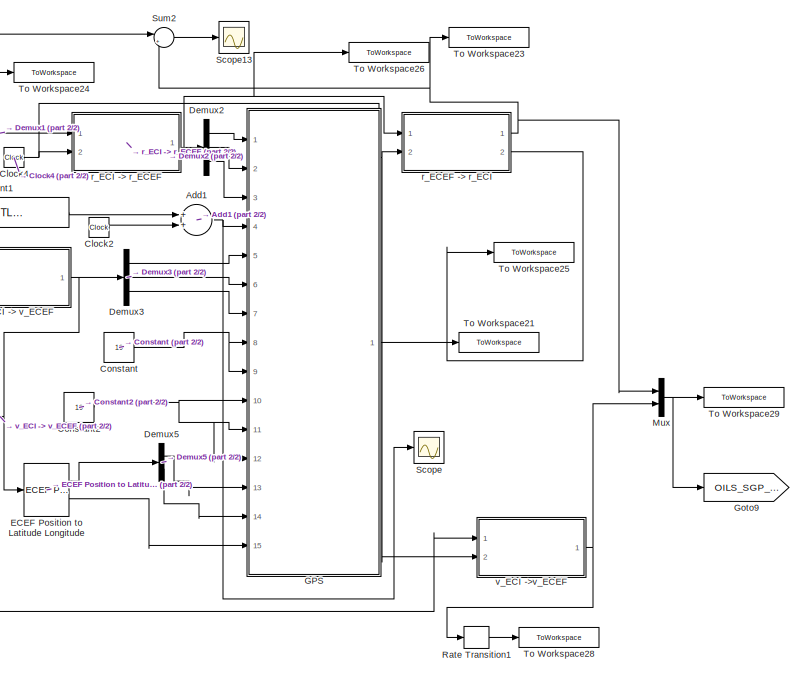
[diagram: root canvas - part 1/2, right side, full height]
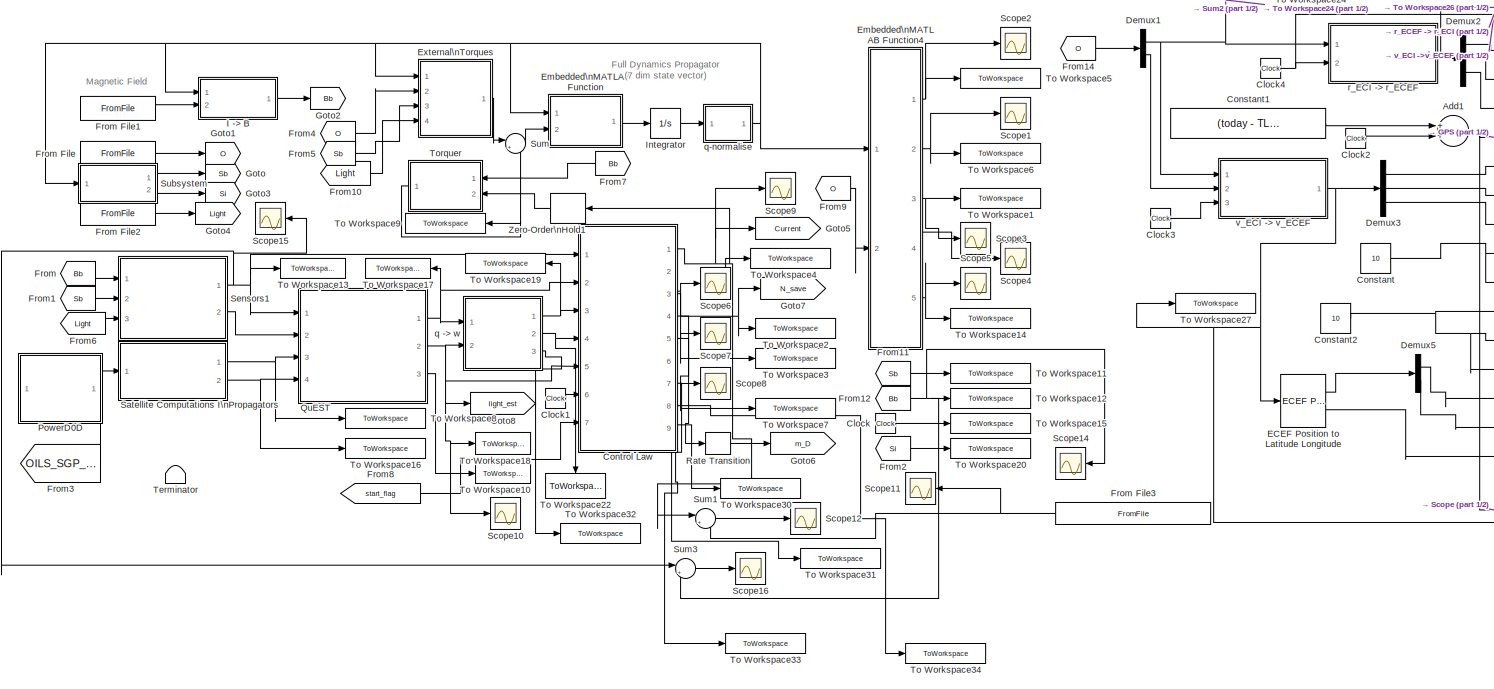
[diagram: root canvas - part 2/2, center side, full height]
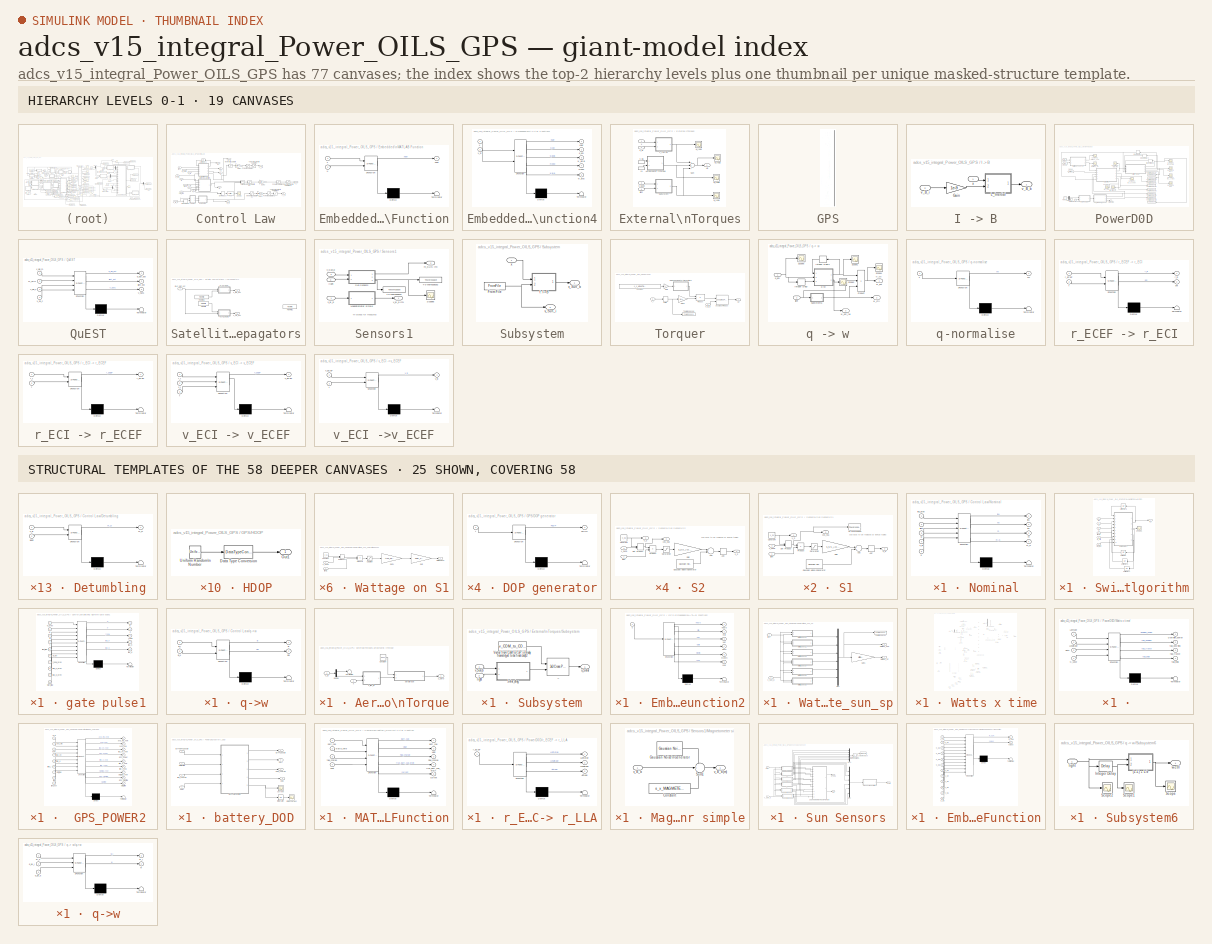
[diagram: thumbnail index - top-2 hierarchy levels (19 canvases) + 25 structural-template representatives of the remaining 58 canvases]
MODEL adcs_v15_integral_Power_OILS_GPS
KIND model
BLOCK [Sum] Add1
  InputSameDT = off
  OutDataTypeStr = Inherit: Inherit via internal rule
  Ports = [2, 1]
  SID = 1455
  SaturateOnIntegerOverflow = off
BLOCK [Clock] Clock
  SID = 814
BLOCK [Clock] Clock1
  SID = 927
BLOCK [Clock] Clock2
  SID = 1456
BLOCK [Clock] Clock3
  SID = 1457
BLOCK [Clock] Clock4
  SID = 1458
BLOCK [Constant] Constant
  OutDataTypeStr = uint8
  SID = 1459
  Value = 10
BLOCK [Constant] Constant1
  SID = 1460
  Value = (today - TLE_epoch) * 86400
  VectorParams1D = off
BLOCK [Constant] Constant2
  OutDataTypeStr = double
  SID = 1461
  Value = 10
BLOCK [SubSystem] Control Law
  Ports = [7, 9]
  RequestExecContextInheritance = off
  SID = 892
  SystemSampleTime = s_FRAME_SIZE
  TreatAsAtomicUnit = on
BLOCK [SubSystem] Control Law/Detumbling
  ErrorFcn = Stateflow.Translate.translate
  PermitHierarchicalResolution = ExplicitOnly
  Ports = [2, 1]
  RequestExecContextInheritance = off
  SFBlockType = MATLAB Function
  SID = 898
  TreatAsAtomicUnit = on
BLOCK [Demux] Control Law/Detumbling/ Demux 
  Outputs = 1
  Ports = [1, 1]
  SID = 898::22
BLOCK [S-Function] Control Law/Detumbling/ SFunction 
  EnableBusSupport = on
  FunctionName = sf_sfun
  Parameters = Kdetumb,s_MAG_B
  PortCounts = [2 2]
  Ports = [2, 2]
  SID = 898::21
  Tag = Stateflow S-Function adcs_v15_integral_Power_OILS_GPS 23
BLOCK [Terminator] Control Law/Detumbling/ Terminator 
  SID = 898::23
BLOCK [Inport] Control Law/Detumbling/Bdot
  IconDisplay = Port number
  Port = 2
  SID = 898::2
BLOCK [Outport] Control Law/Detumbling/m_D
  IconDisplay = Port number
  SID = 898::6
BLOCK [Inport] Control Law/Detumbling/v_B
  IconDisplay = Port number
  SID = 898::1
BLOCK [DotProduct] Control Law/Dot Product
  OutDataTypeStr = Inherit: Inherit via internal rule
  SID = 963
BLOCK [Fcn] Control Law/Fcn
  Expr = sqrt(u)
  SID = 965
BLOCK [Gain] Control Law/Gain1
  Gain = 1/(N*A)
  OutDataTypeStr = Inherit: Inherit via internal rule
  ParamDataTypeStr = Inherit: Inherit via internal rule
  SID = 899
  SaturateOnIntegerOverflow = off
BLOCK [Gain] Control Law/Gain2
  Gain = 1/(N*A)
  OutDataTypeStr = Inherit: Inherit via internal rule
  ParamDataTypeStr = Inherit: Inherit via internal rule
  SID = 1748
  SaturateOnIntegerOverflow = off
BLOCK [Gain] Control Law/Gain3
  Gain = 1/(N*A)
  OutDataTypeStr = Inherit: Inherit via internal rule
  ParamDataTypeStr = Inherit: Inherit via internal rule
  SID = 1753
  SaturateOnIntegerOverflow = off
BLOCK [Delay] Control Law/Integer Delay
  DelayLength = 1
  InputPortMap = u0
  InputProcessing = Inherited
  Ports = [1, 1]
  SID = 900
BLOCK [Saturate] Control Law/Moment\nSaturation
  InputPortMap = u0
  LowerLimit = -s_m_MAX
  Ports = [1, 1]
  SID = 901
  UpperLimit = s_m_MAX
BLOCK [Saturate] Control Law/Moment\nSaturation1
  InputPortMap = u0
  LowerLimit = -s_m_MAX
  Ports = [1, 1]
  SID = 1749
  UpperLimit = s_m_MAX
BLOCK [Saturate] Control Law/Moment\nSaturation2
  InputPortMap = u0
  LowerLimit = -s_m_MAX
  Ports = [1, 1]
  SID = 1754
  UpperLimit = s_m_MAX
BLOCK [Outport] Control Law/N
  IconDisplay = Port number
  Port = 2
  SID = 920
BLOCK [SubSystem] Control Law/Nominal
  ErrorFcn = Stateflow.Translate.translate
  PermitHierarchicalResolution = ExplicitOnly
  Ports = [5, 4]
  RequestExecContextInheritance = off
  SFBlockType = MATLAB Function
  SID = 902
  TreatAsAtomicUnit = on
BLOCK [Demux] Control Law/Nominal/ Demux 
  Outputs = 1
  Ports = [1, 1]
  SID = 902::32
BLOCK [S-Function] Control Law/Nominal/ SFunction 
  EnableBusSupport = on
  FunctionName = sf_sfun
  Parameters = Kd,Ki,Kp,s_FRAME_SIZE
  PortCounts = [5 5]
  Ports = [5, 5]
  SID = 902::31
  Tag = Stateflow S-Function adcs_v15_integral_Power_OILS_GPS 13
BLOCK [Terminator] Control Law/Nominal/ Terminator 
  SID = 902::33
BLOCK [Outport] Control Law/Nominal/eu
  IconDisplay = Port number
  Port = 2
  SID = 902::14
BLOCK [Outport] Control Law/Nominal/ieu
  IconDisplay = Port number
  SID = 902::19
BLOCK [Inport] Control Law/Nominal/ieu_prev
  IconDisplay = Port number
  SID = 902::17
BLOCK [Inport] Control Law/Nominal/light
  IconDisplay = Port number
  Port = 2
  SID = 902::12
BLOCK [Outport] Control Law/Nominal/m
  IconDisplay = Port number
  Port = 3
  SID = 902::13
BLOCK [Outport] Control Law/Nominal/m_N
  IconDisplay = Port number
  Port = 4
  SID = 902::7
BLOCK [Inport] Control Law/Nominal/q
  IconDisplay = Port number
  Port = 5
  SID = 902::15
BLOCK [Inport] Control Law/Nominal/v_B
  IconDisplay = Port number
  Port = 4
  SID = 902::2
BLOCK [Inport] Control Law/Nominal/w
  IconDisplay = Port number
  Port = 3
  SID = 902::1
BLOCK [Saturate] Control Law/Power\nSaturation
  InputPortMap = u0
  LowerLimit = -I_MAX
  Ports = [1, 1]
  SID = 903
  UpperLimit = I_MAX
BLOCK [Saturate] Control Law/Power\nSaturation1
  InputPortMap = u0
  LowerLimit = -I_MAX
  Ports = [1, 1]
  SID = 1750
  UpperLimit = I_MAX
BLOCK [Saturate] Control Law/Power\nSaturation2
  InputPortMap = u0
  LowerLimit = -I_MAX
  Ports = [1, 1]
  SID = 1755
  UpperLimit = I_MAX
BLOCK [Scope] Control Law/Scope
  DataFormat = StructureWithTime
  Floating = off
  LimitDataPoints = off
  NumInputPorts = 1
  Ports = [1]
  SID = 964
  SampleTime = 0
  SaveName = ScopeData4
  YMax = 0.08
  YMin = -0.01
  ZoomMode = yonly
BLOCK [Switch] Control Law/Switch
  InputSameDT = off
  SID = 904
  SaturateOnIntegerOverflow = off
  Threshold = .5
BLOCK [SubSystem] Control Law/Switching Algorithm
  Ports = [6, 1]
  RequestExecContextInheritance = off
  SID = 905
BLOCK [Outport] Control Law/Switching Algorithm/N1
  IconDisplay = Port number
  SID = 1745
BLOCK [Scope] Control Law/Switching Algorithm/Scope1
  DataFormat = StructureWithTime
  Floating = off
  LimitDataPoints = off
  NumInputPorts = 1
  Ports = [1]
  SID = 1739
  SampleTime = 0
  SaveName = ScopeData51
  TimeRange = 140000
  YMax = 1.3
  YMin = 0
  ZoomMode = xonly
BLOCK [UnitDelay] Control Law/Switching Algorithm/Unit Delay
  SID = 1740
  SampleTime = -1
BLOCK [UnitDelay] Control Law/Switching Algorithm/Unit Delay5
  SID = 1741
  SampleTime = -1
BLOCK [UnitDelay] Control Law/Switching Algorithm/Unit Delay6
  SID = 1742
  SampleTime = -1
BLOCK [UnitDelay] Control Law/Switching Algorithm/Unit Delay7
  SID = 1743
  SampleTime = -1
BLOCK [SubSystem] Control Law/Switching Algorithm/gate pulse1
  ErrorFcn = Stateflow.Translate.translate
  PermitHierarchicalResolution = ExplicitOnly
  Ports = [10, 5]
  RequestExecContextInheritance = off
  SFBlockType = MATLAB Function
  SID = 1744
  TreatAsAtomicUnit = on
BLOCK [Demux] Control Law/Switching Algorithm/gate pulse1/ Demux 
  Outputs = 1
  Ports = [1, 1]
  SID = 1744::25
BLOCK [S-Function] Control Law/Switching Algorithm/gate pulse1/ SFunction 
  EnableBusSupport = on
  FunctionName = sf_sfun
  Parameters = check_time,tol_q4,tol_time,tol_w,tolw_n2d
  PortCounts = [10 6]
  Ports = [10, 6]
  SID = 1744::24
  Tag = Stateflow S-Function adcs_v15_integral_Power_OILS_GPS 24
BLOCK [Terminator] Control Law/Switching Algorithm/gate pulse1/ Terminator 
  SID = 1744::26
BLOCK [Outport] Control Law/Switching Algorithm/gate pulse1/N
  IconDisplay = Port number
  SID = 1744::8
BLOCK [Inport] Control Law/Switching Algorithm/gate pulse1/N_prev
  IconDisplay = Port number
  SID = 1744::4
BLOCK [Outport] Control Law/Switching Algorithm/gate pulse1/P
  IconDisplay = Port number
  Port = 2
  SID = 1744::19
BLOCK [Outport] Control Law/Switching Algorithm/gate pulse1/flag_d
  IconDisplay = Port number
  Port = 5
  SID = 1744::30
BLOCK [Inport] Control Law/Switching Algorithm/gate pulse1/flag_d_prev
  IconDisplay = Port number
  Port = 9
  SID = 1744::28
BLOCK [Outport] Control Law/Switching Algorithm/gate pulse1/flag_n
  IconDisplay = Port number
  Port = 4
  SID = 1744::29
BLOCK [Inport] Control Law/Switching Algorithm/gate pulse1/flag_n_prev
  IconDisplay = Port number
  Port = 8
  SID = 1744::27
BLOCK [Inport] Control Law/Switching Algorithm/gate pulse1/light_flag
  IconDisplay = Port number
  Port = 5
  SID = 1744::14
BLOCK [Inport] Control Law/Switching Algorithm/gate pulse1/q
  IconDisplay = Port number
  Port = 3
  SID = 1744::2
BLOCK [Inport] Control Law/Switching Algorithm/gate pulse1/start_flag
  IconDisplay = Port number
  Port = 10
  SID = 1744::32
BLOCK [Inport] Control Law/Switching Algorithm/gate pulse1/t
  IconDisplay = Port number
  Port = 4
  SID = 1744::3
BLOCK [Outport] Control Law/Switching Algorithm/gate pulse1/t_now
  IconDisplay = Port number
  Port = 3
  SID = 1744::9
BLOCK [Inport] Control Law/Switching Algorithm/gate pulse1/t_now_prev
  IconDisplay = Port number
  Port = 7
  SID = 1744::16
BLOCK [Inport] Control Law/Switching Algorithm/gate pulse1/w
  IconDisplay = Port number
  Port = 2
  SID = 1744::1
BLOCK [Inport] Control Law/Switching Algorithm/gate pulse1/w_ctrl
  IconDisplay = Port number
  Port = 6
  SID = 1744::15
BLOCK [Inport] Control Law/Switching Algorithm/light1
  IconDisplay = Port number
  Port = 3
  SID = 1736
BLOCK [Inport] Control Law/Switching Algorithm/q
  IconDisplay = Port number
  SID = 1734
BLOCK [Inport] Control Law/Switching Algorithm/start_flag
  IconDisplay = Port number
  Port = 6
  SID = 1819
BLOCK [Inport] Control Law/Switching Algorithm/t1
  IconDisplay = Port number
  Port = 5
  SID = 1738
BLOCK [Inport] Control Law/Switching Algorithm/w1
  IconDisplay = Port number
  Port = 2
  SID = 1735
BLOCK [Inport] Control Law/Switching Algorithm/w_ctrl1
  IconDisplay = Port number
  Port = 4
  SID = 1737
BLOCK [Saturate] Control Law/Torquer\nCurrent\nSaturation
  InputPortMap = u0
  LowerLimit = -I_TORQUER
  Ports = [1, 1]
  SID = 914
  UpperLimit = I_TORQUER
BLOCK [Saturate] Control Law/Torquer\nCurrent\nSaturation1
  InputPortMap = u0
  LowerLimit = -I_TORQUER
  Ports = [1, 1]
  SID = 1751
  UpperLimit = I_TORQUER
BLOCK [Saturate] Control Law/Torquer\nCurrent\nSaturation2
  InputPortMap = u0
  LowerLimit = -I_TORQUER
  Ports = [1, 1]
  SID = 1756
  UpperLimit = I_TORQUER
BLOCK [UnitDelay] Control Law/Unit Delay1
  InitialCondition = [0;0;0]
  SID = 968
  SampleTime = -1
BLOCK [Outport] Control Law/eu
  IconDisplay = Port number
  Port = 3
  SID = 921
BLOCK [Outport] Control Law/ieu
  IconDisplay = Port number
  Port = 6
  SID = 1729
BLOCK [Inport] Control Law/light
  IconDisplay = Port number
  Port = 5
  SID = 897
BLOCK [InportShadow] Control Law/light1
  IconDisplay = Port number
  Port = 5
  SID = 915
BLOCK [Outport] Control Law/m
  IconDisplay = Port number
  Port = 4
  SID = 922
BLOCK [Outport] Control Law/m_D
  IconDisplay = Port number
  Port = 5
  SID = 1297
BLOCK [Outport] Control Law/m_N
  IconDisplay = Port number
  Port = 7
  SID = 1731
BLOCK [SubSystem] Control Law/q->w
  ErrorFcn = Stateflow.Translate.translate
  PermitHierarchicalResolution = ExplicitOnly
  Ports = [2, 2]
  RequestExecContextInheritance = off
  SFBlockType = MATLAB Function
  SID = 916
  TreatAsAtomicUnit = on
BLOCK [Demux] Control Law/q->w/ Demux 
  Outputs = 1
  Ports = [1, 1]
  SID = 916::24
BLOCK [S-Function] Control Law/q->w/ SFunction 
  EnableBusSupport = on
  FunctionName = sf_sfun
  Parameters = s_FRAME_SIZE
  PortCounts = [2 3]
  Ports = [2, 3]
  SID = 916::23
  Tag = Stateflow S-Function adcs_v15_integral_Power_OILS_GPS 10
BLOCK [Terminator] Control Law/q->w/ Terminator 
  SID = 916::25
BLOCK [Outport] Control Law/q->w/B
  IconDisplay = Port number
  SID = 916::12
BLOCK [Inport] Control Law/q->w/B_k
  IconDisplay = Port number
  Port = 2
  SID = 916::2
BLOCK [Inport] Control Law/q->w/B_l
  IconDisplay = Port number
  SID = 916::1
BLOCK [Outport] Control Law/q->w/dB
  IconDisplay = Port number
  Port = 2
  SID = 916::7
BLOCK [Inport] Control Law/q_BO
  IconDisplay = Port number
  Port = 2
  SID = 894
BLOCK [Inport] Control Law/start_flag
  IconDisplay = Port number
  Port = 7
  SID = 1820
BLOCK [Inport] Control Law/t
  IconDisplay = Port number
  Port = 6
  SID = 926
BLOCK [Inport] Control Law/v_B
  IconDisplay = Port number
  SID = 893
BLOCK [InportShadow] Control Law/v_B_1
  IconDisplay = Port number
  SID = 917
BLOCK [Outport] Control Law/v_i
  IconDisplay = Port number
  SID = 919
BLOCK [Outport] Control Law/v_i_D
  IconDisplay = Port number
  Port = 8
  SID = 1752
BLOCK [Outport] Control Law/v_i_N
  IconDisplay = Port number
  Port = 9
  SID = 1757
BLOCK [Inport] Control Law/w
  IconDisplay = Port number
  Port = 3
  SID = 895
BLOCK [InportShadow] Control Law/w_BOB
  IconDisplay = Port number
  Port = 3
  SID = 918
BLOCK [Inport] Control Law/w_ctrl
  IconDisplay = Port number
  Port = 4
  SID = 896
BLOCK [Demux] Demux1
  DisplayOption = bar
  Outputs = 2
  Ports = [1, 2]
  SID = 1462
BLOCK [Demux] Demux2
  DisplayOption = bar
  Outputs = 3
  Ports = [1, 3]
  SID = 1463
BLOCK [Demux] Demux3
  DisplayOption = bar
  Outputs = 3
  Ports = [1, 3]
  SID = 1464
BLOCK [Demux] Demux5
  DisplayOption = bar
  Outputs = 2
  Ports = [1, 2]
  SID = 1465
BLOCK [Reference] ECEF Position to Latitude Longitude  REF=aerolibtransform2/ECEF Position to LLA
  F = 1/298.257223563
  Ports = [1, 2]
  R = 6378137
  SID = 1466
  SourceBlock = aerolibtransform2/ECEF Position to LLA
  SourceType = ECEF to LLA
  ptype = Earth (WGS84)
  units = Metric (MKS)
BLOCK [SubSystem] Embedded\nMATLAB Function
  ErrorFcn = Stateflow.Translate.translate
  PermitHierarchicalResolution = ExplicitOnly
  Ports = [2, 1]
  RequestExecContextInheritance = off
  SFBlockType = MATLAB Function
  SID = 13
  TreatAsAtomicUnit = on
BLOCK [Demux] Embedded\nMATLAB Function/ Demux 
  Outputs = 1
  Ports = [1, 1]
  SID = 13::22
BLOCK [S-Function] Embedded\nMATLAB Function/ SFunction 
  EnableBusSupport = on
  FunctionName = sf_sfun
  Parameters = m_INERTIA
  PortCounts = [2 2]
  Ports = [2, 2]
  SID = 13::21
  Tag = Stateflow S-Function adcs_v15_integral_Power_OILS_GPS 2
BLOCK [Terminator] Embedded\nMATLAB Function/ Terminator 
  SID = 13::23
BLOCK [Inport] Embedded\nMATLAB Function/u
  IconDisplay = Port number
  Port = 2
  SID = 13::2
BLOCK [Inport] Embedded\nMATLAB Function/x
  IconDisplay = Port number
  SID = 13::1
BLOCK [Outport] Embedded\nMATLAB Function/xdot
  IconDisplay = Port number
  SID = 13::6
BLOCK [SubSystem] Embedded\nMATLAB Function4
  ErrorFcn = Stateflow.Translate.translate
  PermitHierarchicalResolution = ExplicitOnly
  Ports = [2, 5]
  RequestExecContextInheritance = off
  SFBlockType = MATLAB Function
  SID = 599
  TreatAsAtomicUnit = on
BLOCK [Demux] Embedded\nMATLAB Function4/ Demux 
  Outputs = 1
  Ports = [1, 1]
  SID = 599::27
BLOCK [S-Function] Embedded\nMATLAB Function4/ SFunction 
  EnableBusSupport = on
  FunctionName = sf_sfun
  Parameters = s_W_SAT
  PortCounts = [2 6]
  Ports = [2, 6]
  SID = 599::26
  Tag = Stateflow S-Function adcs_v15_integral_Power_OILS_GPS 29
BLOCK [Terminator] Embedded\nMATLAB Function4/ Terminator 
  SID = 599::28
BLOCK [Outport] Embedded\nMATLAB Function4/euler
  IconDisplay = Port number
  SID = 599::6
BLOCK [Outport] Embedded\nMATLAB Function4/modw
  IconDisplay = Port number
  Port = 4
  SID = 599::13
BLOCK [Outport] Embedded\nMATLAB Function4/q_BO
  IconDisplay = Port number
  Port = 2
  SID = 599::7
BLOCK [Inport] Embedded\nMATLAB Function4/v_Si
  IconDisplay = Port number
  Port = 2
  SID = 599::1
BLOCK [Outport] Embedded\nMATLAB Function4/w_BIB
  IconDisplay = Port number
  Port = 5
  SID = 599::15
BLOCK [Outport] Embedded\nMATLAB Function4/w_BOB
  IconDisplay = Port number
  Port = 3
  SID = 599::12
BLOCK [Inport] Embedded\nMATLAB Function4/x
  IconDisplay = Port number
  SID = 599::2
BLOCK [SubSystem] External\nTorques
  Ports = [4, 1]
  RequestExecContextInheritance = off
  SID = 14
BLOCK [SubSystem] External\nTorques/Aerodynamic \nTorque
  Ports = [2, 1]
  RequestExecContextInheritance = off
  SID = 18
BLOCK [Constant] External\nTorques/Aerodynamic \nTorque/Constant
  SID = 1261
  Value = 5e-14
BLOCK [Demux] External\nTorques/Aerodynamic \nTorque/Demux
  DisplayOption = bar
  Outputs = 2
  Ports = [1, 2]
  SID = 25
BLOCK [Terminator] External\nTorques/Aerodynamic \nTorque/Terminator
  SID = 1315
BLOCK [SubSystem] External\nTorques/Aerodynamic \nTorque/aero torque
  ErrorFcn = Stateflow.Translate.translate
  PermitHierarchicalResolution = ExplicitOnly
  Ports = [2, 1]
  RequestExecContextInheritance = off
  SFBlockType = MATLAB Function
  SID = 38
  TreatAsAtomicUnit = on
BLOCK [Demux] External\nTorques/Aerodynamic \nTorque/aero torque/ Demux 
  Outputs = 1
  Ports = [1, 1]
  SID = 38::24
BLOCK [S-Function] External\nTorques/Aerodynamic \nTorque/aero torque/ SFunction 
  EnableBusSupport = on
  FunctionName = sf_sfun
  Parameters = Cd,side,v_COM_to_COP_b
  PortCounts = [2 2]
  Ports = [2, 2]
  SID = 38::23
  Tag = Stateflow S-Function adcs_v15_integral_Power_OILS_GPS 16
BLOCK [Terminator] External\nTorques/Aerodynamic \nTorque/aero torque/ Terminator 
  SID = 38::25
BLOCK [Inport] External\nTorques/Aerodynamic \nTorque/aero torque/rho
  IconDisplay = Port number
  SID = 38::12
BLOCK [Outport] External\nTorques/Aerodynamic \nTorque/aero torque/u_aero
  IconDisplay = Port number
  SID = 38::5
BLOCK [Inport] External\nTorques/Aerodynamic \nTorque/aero torque/v_B
  IconDisplay = Port number
  Port = 2
  SID = 38::1
BLOCK [Outport] External\nTorques/Aerodynamic \nTorque/u_aero
  IconDisplay = Port number
  SID = 41
BLOCK [SubSystem] External\nTorques/Aerodynamic \nTorque/v_I to v_B
  ErrorFcn = Stateflow.Translate.translate
  PermitHierarchicalResolution = ExplicitOnly
  Ports = [2, 1]
  RequestExecContextInheritance = off
  SFBlockType = MATLAB Function
  SID = 40
  TreatAsAtomicUnit = on
BLOCK [Demux] External\nTorques/Aerodynamic \nTorque/v_I to v_B/ Demux 
  Outputs = 1
  Ports = [1, 1]
  SID = 40::22
BLOCK [S-Function] External\nTorques/Aerodynamic \nTorque/v_I to v_B/ SFunction 
  EnableBusSupport = on
  FunctionName = sf_sfun
  PortCounts = [2 2]
  Ports = [2, 2]
  SID = 40::21
  Tag = Stateflow S-Function adcs_v15_integral_Power_OILS_GPS 20
BLOCK [Terminator] External\nTorques/Aerodynamic \nTorque/v_I to v_B/ Terminator 
  SID = 40::23
BLOCK [Outport] External\nTorques/Aerodynamic \nTorque/v_I to v_B/v_B
  IconDisplay = Port number
  SID = 40::6
BLOCK [Inport] External\nTorques/Aerodynamic \nTorque/v_I to v_B/v_I
  IconDisplay = Port number
  SID = 40::1
BLOCK [Inport] External\nTorques/Aerodynamic \nTorque/v_I to v_B/x
  IconDisplay = Port number
  Port = 2
  SID = 40::2
BLOCK [Inport] External\nTorques/Aerodynamic \nTorque/v_Si
  IconDisplay = Port number
  SID = 19
BLOCK [Inport] External\nTorques/Aerodynamic \nTorque/x
  IconDisplay = Port number
  Port = 2
  SID = 20
BLOCK [SubSystem] External\nTorques/L_Inertial
  ErrorFcn = Stateflow.Translate.translate
  PermitHierarchicalResolution = ExplicitOnly
  Ports = [2, 1]
  RequestExecContextInheritance = off
  SFBlockType = MATLAB Function
  SID = 42
  TreatAsAtomicUnit = on
BLOCK [Demux] External\nTorques/L_Inertial/ Demux 
  Outputs = 1
  Ports = [1, 1]
  SID = 42::22
BLOCK [S-Function] External\nTorques/L_Inertial/ SFunction 
  EnableBusSupport = on
  FunctionName = sf_sfun
  Parameters = m_INERTIA,mu
  PortCounts = [2 2]
  Ports = [2, 2]
  SID = 42::21
  Tag = Stateflow S-Function adcs_v15_integral_Power_OILS_GPS 9
BLOCK [Terminator] External\nTorques/L_Inertial/ Terminator 
  SID = 42::23
BLOCK [Outport] External\nTorques/L_Inertial/tau
  IconDisplay = Port number
  SID = 42::6
BLOCK [Inport] External\nTorques/L_Inertial/v_Si
  IconDisplay = Port number
  Port = 2
  SID = 42::2
BLOCK [Inport] External\nTorques/L_Inertial/x
  IconDisplay = Port number
  SID = 42::1
BLOCK [SubSystem] External\nTorques/Subsystem
  Ports = [2, 1]
  RequestExecContextInheritance = off
  SID = 736
BLOCK [SubSystem] External\nTorques/Subsystem/Solar_drag
  ErrorFcn = Stateflow.Translate.translate
  PermitHierarchicalResolution = ExplicitOnly
  Ports = [2, 1]
  RequestExecContextInheritance = off
  SFBlockType = MATLAB Function
  SID = 728
  TreatAsAtomicUnit = on
BLOCK [Demux] External\nTorques/Subsystem/Solar_drag/ Demux 
  Outputs = 1
  Ports = [1, 1]
  SID = 728::26
BLOCK [S-Function] External\nTorques/Subsystem/Solar_drag/ SFunction 
  EnableBusSupport = on
  FunctionName = sf_sfun
  Parameters = Ca_Solar_Drag,P_momentum_flux_from_the_sun,side
  PortCounts = [2 2]
  Ports = [2, 2]
  SID = 728::25
  Tag = Stateflow S-Function adcs_v15_integral_Power_OILS_GPS 8
BLOCK [Terminator] External\nTorques/Subsystem/Solar_drag/ Terminator 
  SID = 728::27
BLOCK [Inport] External\nTorques/Subsystem/Solar_drag/light
  IconDisplay = Port number
  Port = 2
  SID = 728::13
BLOCK [Outport] External\nTorques/Subsystem/Solar_drag/solar_drag
  IconDisplay = Port number
  SID = 728::8
BLOCK [Inport] External\nTorques/Subsystem/Solar_drag/v_Sun_b
  IconDisplay = Port number
  SID = 728::1
BLOCK [Constant] External\nTorques/Subsystem/Vector from CoM to CoP_in Body frame\n(yet to be finalized)2
  SID = 729
  Value = v_COM_to_COP_b
  VectorParams1D = off
BLOCK [Reference] External\nTorques/Subsystem/_  REF=aerolibutil/3x3 Cross Product
  Ports = [2, 1]
  SID = 730
  SourceBlock = aerolibutil/3x3 Cross Product
  SourceType = CrossProduct
BLOCK [Inport] External\nTorques/Subsystem/light
  IconDisplay = Port number
  Port = 2
  SID = 739
BLOCK [Outport] External\nTorques/Subsystem/u_Solar
  IconDisplay = Port number
  SID = 738
BLOCK [Inport] External\nTorques/Subsystem/v_Sun_b
  IconDisplay = Port number
  SID = 737
BLOCK [Sum] External\nTorques/Sum
  InputSameDT = off
  Inputs = +++
  OutDataTypeStr = Inherit: Inherit via internal rule
  Ports = [3, 1]
  SID = 43
  SaturateOnIntegerOverflow = off
BLOCK [Outport] External\nTorques/Ud
  IconDisplay = Port number
  SID = 50
BLOCK [Inport] External\nTorques/light
  IconDisplay = Port number
  Port = 4
  SID = 744
BLOCK [Inport] External\nTorques/v_Si
  IconDisplay = Port number
  Port = 2
  SID = 16
BLOCK [InportShadow] External\nTorques/v_Si1
  IconDisplay = Port number
  Port = 2
  SID = 45
BLOCK [Inport] External\nTorques/v_Sunb
  IconDisplay = Port number
  Port = 3
  SID = 17
BLOCK [Scope] External\nTorques/w_real1
  DataFormat = StructureWithTime
  Floating = off
  LimitDataPoints = off
  NumInputPorts = 1
  Ports = [1]
  SID = 47
  SampleInput = on
  SampleTime = 5
  SaveName = ScopeData18
  TimeRange = 80000
  YMax = 1.1e-008
  YMin = -3e-009
  ZoomMode = xonly
BLOCK [Scope] External\nTorques/w_real2
  DataFormat = StructureWithTime
  Floating = off
  LimitDataPoints = off
  NumInputPorts = 1
  Ports = [1]
  SID = 741
  SampleInput = on
  SampleTime = 5
  SaveName = ScopeData17
  TimeRange = 80000
  YMax = 1e-008
  YMin = -7e-009
  ZoomMode = xonly
BLOCK [Scope] External\nTorques/w_real3
  DataFormat = StructureWithTime
  Floating = off
  LimitDataPoints = off
  NumInputPorts = 1
  Ports = [1]
  SID = 742
  SampleInput = on
  SampleTime = 5
  SaveName = ScopeData19
  YMax = 1.4e-009
  YMin = -8e-010
  ZoomMode = xonly
BLOCK [Scope] External\nTorques/w_real4
  DataFormat = StructureWithTime
  Floating = off
  LimitDataPoints = off
  NumInputPorts = 1
  Ports = [1]
  SID = 743
  SampleInput = on
  SampleTime = 5
  SaveName = ScopeData22
  YMax = 1e-008
  YMin = -6e-009
  ZoomMode = xonly
BLOCK [Inport] External\nTorques/x
  IconDisplay = Port number
  SID = 15
BLOCK [InportShadow] External\nTorques/x1
  IconDisplay = Port number
  SID = 49
BLOCK [From] From
  GotoTag = Bb
  SID = 51
BLOCK [FromFile] From File
  ExtrapolationBeforeFirstDataPoint = Ground value
  FileName = SGP_120k
  SID = 818
BLOCK [FromFile] From File1
  FileName = Bi_120k
  SID = 824
BLOCK [FromFile] From File2
  FileName = light_120k
  SID = 957
  SampleTime = 0
BLOCK [FromFile] From File3
  FileName = PWM_detumbling_sudin
  SID = 1701
BLOCK [From] From1
  GotoTag = Sb
  SID = 52
  TagVisibility = global
BLOCK [From] From10
  GotoTag = Light
  SID = 745
  TagVisibility = global
BLOCK [From] From11
  GotoTag = Sb
  SID = 804
  TagVisibility = global
BLOCK [From] From12
  GotoTag = Bb
  SID = 805
BLOCK [From] From14
  GotoTag = O
  SID = 1467
  TagVisibility = global
BLOCK [From] From2
  GotoTag = Si
  SID = 954
BLOCK [From] From3
  GotoTag = OILS_SGP_est
  SID = 1726
BLOCK [From] From4
  GotoTag = O
  SID = 55
  TagVisibility = global
BLOCK [From] From5
  GotoTag = Sb
  SID = 56
  TagVisibility = global
BLOCK [From] From6
  GotoTag = Light
  SID = 57
  TagVisibility = global
BLOCK [From] From7
  GotoTag = Bb
  SID = 58
BLOCK [From] From8
  GotoTag = start_flag
  SID = 1818
  TagVisibility = global
BLOCK [From] From9
  GotoTag = O
  SID = 600
  TagVisibility = global
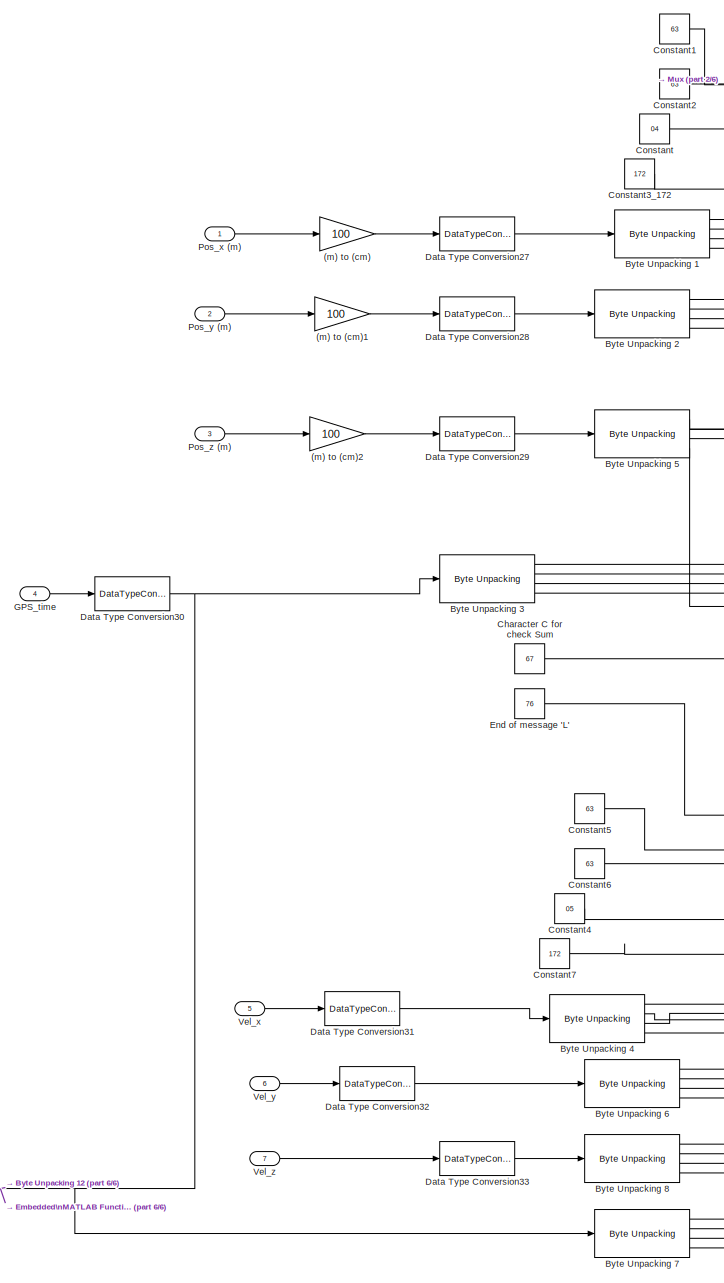
[diagram: GPS - part 1/6, top center region]
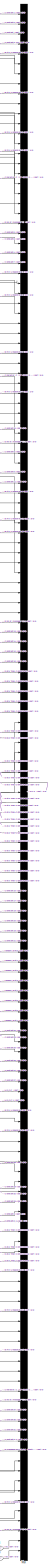
[diagram: GPS - part 2/6, right side, full height]
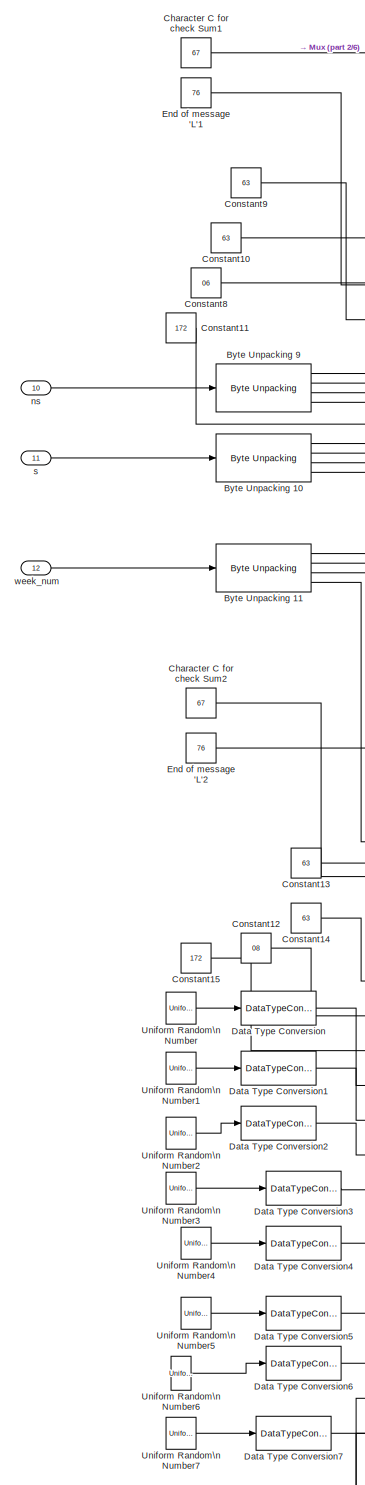
[diagram: GPS - part 3/6, central region]
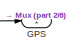
[diagram: GPS - part 4/6, middle right region]
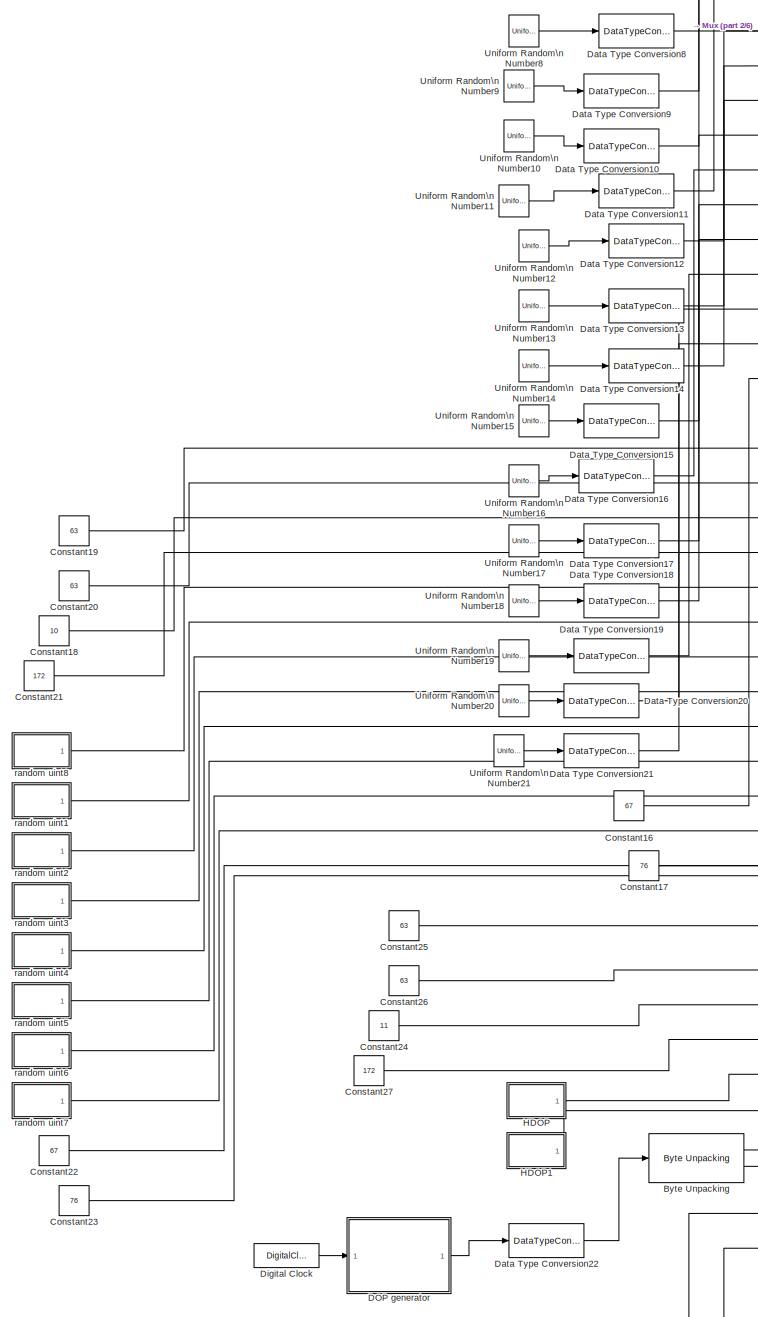
[diagram: GPS - part 5/6, central region]
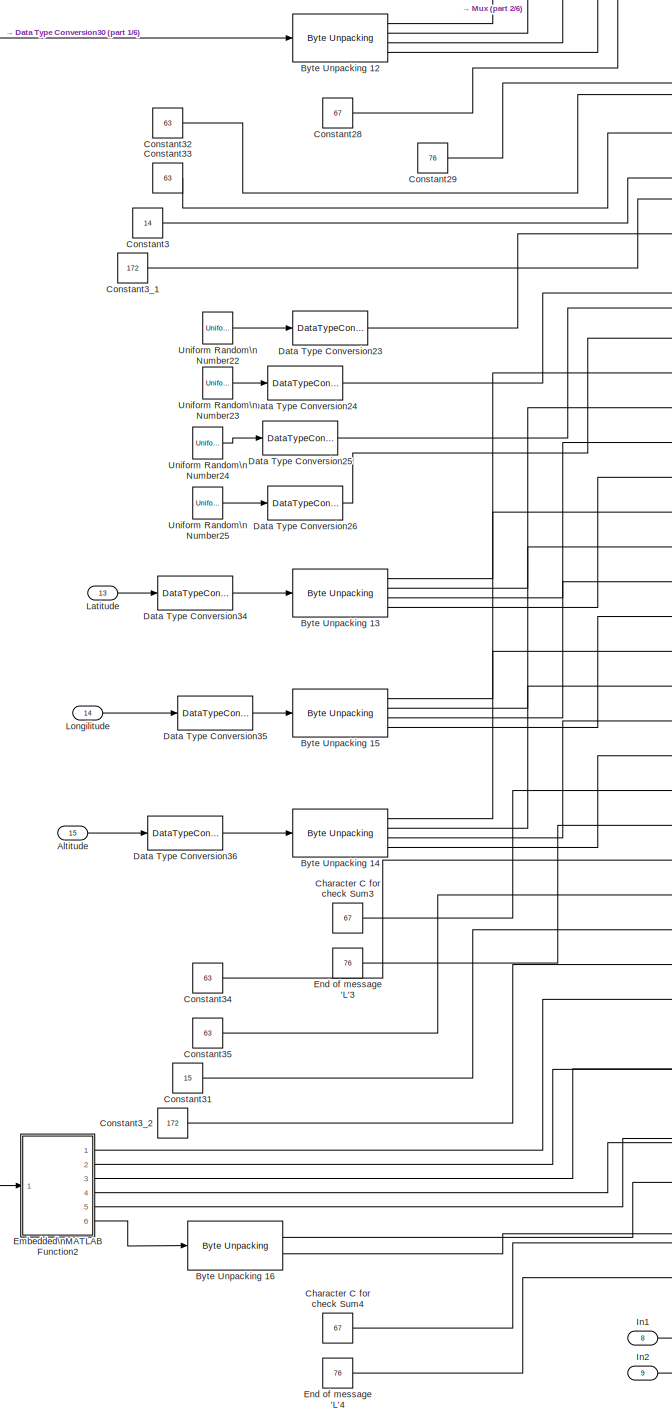
[diagram: GPS - part 6/6, bottom center region]
BLOCK [SubSystem] GPS
  Ports = [15, 1]
  RequestExecContextInheritance = off
  SID = 1468
BLOCK [Gain] GPS/(m) to (cm)
  Gain = 100
  OutDataTypeStr = double
  ParamDataTypeStr = Inherit: Inherit via internal rule
  SID = 1484
  SaturateOnIntegerOverflow = off
BLOCK [Gain] GPS/(m) to (cm)1
  Gain = 100
  OutDataTypeStr = Inherit: Inherit via internal rule
  ParamDataTypeStr = Inherit: Inherit via internal rule
  SID = 1485
  SaturateOnIntegerOverflow = off
BLOCK [Gain] GPS/(m) to (cm)2
  Gain = 100
  OutDataTypeStr = Inherit: Inherit via internal rule
  ParamDataTypeStr = Inherit: Inherit via internal rule
  SID = 1486
  SaturateOnIntegerOverflow = off
BLOCK [Inport] GPS/Altitude
  IconDisplay = Port number
  Port = 15
  SID = 1483
BLOCK [Reference] GPS/Byte Unpacking   REF=xpcutilitieslib/Byte Unpacking 
  MaskAlignment = 1
  MaskUnpackedDataSizes = {1 1}
  MaskUnpackedDataTypes = {'uint8' 'uint8'}
  Ports = [1, 2]
  SID = 1488
  SourceBlock = xpcutilitieslib/Byte Unpacking
  SourceType = xpcbytepacking
BLOCK [Reference] GPS/Byte Unpacking 1  REF=xpcutilitieslib/Byte Unpacking 
  MaskAlignment = 1
  MaskUnpackedDataSizes = {1 1 1 1}
  MaskUnpackedDataTypes = {'uint8' 'uint8' 'uint8' 'uint8'}
  Ports = [1, 4]
  SID = 1489
  SourceBlock = xpcutilitieslib/Byte Unpacking
  SourceType = xpcbytepacking
BLOCK [Reference] GPS/Byte Unpacking 10  REF=xpcutilitieslib/Byte Unpacking 
  MaskAlignment = 1
  MaskUnpackedDataSizes = {1 1 1 1}
  MaskUnpackedDataTypes = {'uint8' 'uint8' 'uint8' 'uint8'}
  Ports = [1, 4]
  SID = 1490
  SourceBlock = xpcutilitieslib/Byte Unpacking
  SourceType = xpcbytepacking
BLOCK [Reference] GPS/Byte Unpacking 11  REF=xpcutilitieslib/Byte Unpacking 
  MaskAlignment = 1
  MaskUnpackedDataSizes = {1 1 1 1}
  MaskUnpackedDataTypes = {'uint8' 'uint8' 'uint8' 'uint8'}
  Ports = [1, 4]
  SID = 1491
  SourceBlock = xpcutilitieslib/Byte Unpacking
  SourceType = xpcbytepacking
BLOCK [Reference] GPS/Byte Unpacking 12  REF=xpcutilitieslib/Byte Unpacking 
  MaskAlignment = 1
  MaskUnpackedDataSizes = {1 1 1 1}
  MaskUnpackedDataTypes = {'uint8' 'uint8' 'uint8' 'uint8'}
  Ports = [1, 4]
  SID = 1492
  SourceBlock = xpcutilitieslib/Byte Unpacking
  SourceType = xpcbytepacking
BLOCK [Reference] GPS/Byte Unpacking 13  REF=xpcutilitieslib/Byte Unpacking 
  MaskAlignment = 1
  MaskUnpackedDataSizes = {1 1 1 1}
  MaskUnpackedDataTypes = {'uint8' 'uint8' 'uint8' 'uint8'}
  Ports = [1, 4]
  SID = 1493
  SourceBlock = xpcutilitieslib/Byte Unpacking
  SourceType = xpcbytepacking
BLOCK [Reference] GPS/Byte Unpacking 14  REF=xpcutilitieslib/Byte Unpacking 
  MaskAlignment = 1
  MaskUnpackedDataSizes = {1 1 1 1}
  MaskUnpackedDataTypes = {'uint8' 'uint8' 'uint8' 'uint8'}
  Ports = [1, 4]
  SID = 1494
  SourceBlock = xpcutilitieslib/Byte Unpacking
  SourceType = xpcbytepacking
BLOCK [Reference] GPS/Byte Unpacking 15  REF=xpcutilitieslib/Byte Unpacking 
  MaskAlignment = 1
  MaskUnpackedDataSizes = {1 1 1 1}
  MaskUnpackedDataTypes = {'uint8' 'uint8' 'uint8' 'uint8'}
  Ports = [1, 4]
  SID = 1495
  SourceBlock = xpcutilitieslib/Byte Unpacking
  SourceType = xpcbytepacking
BLOCK [Reference] GPS/Byte Unpacking 16  REF=xpcutilitieslib/Byte Unpacking 
  MaskAlignment = 1
  MaskUnpackedDataSizes = {1 1}
  MaskUnpackedDataTypes = {'uint8' 'uint8'}
  Ports = [1, 2]
  SID = 1496
  SourceBlock = xpcutilitieslib/Byte Unpacking
  SourceType = xpcbytepacking
BLOCK [Reference] GPS/Byte Unpacking 2  REF=xpcutilitieslib/Byte Unpacking 
  MaskAlignment = 1
  MaskUnpackedDataSizes = {1 1 1 1}
  MaskUnpackedDataTypes = {'uint8' 'uint8' 'uint8' 'uint8'}
  Ports = [1, 4]
  SID = 1497
  SourceBlock = xpcutilitieslib/Byte Unpacking
  SourceType = xpcbytepacking
BLOCK [Reference] GPS/Byte Unpacking 3  REF=xpcutilitieslib/Byte Unpacking 
  MaskAlignment = 1
  MaskUnpackedDataSizes = {1 1 1 1}
  MaskUnpackedDataTypes = {'uint8' 'uint8' 'uint8' 'uint8'}
  Ports = [1, 4]
  SID = 1498
  SourceBlock = xpcutilitieslib/Byte Unpacking
  SourceType = xpcbytepacking
BLOCK [Reference] GPS/Byte Unpacking 4  REF=xpcutilitieslib/Byte Unpacking 
  MaskAlignment = 1
  MaskUnpackedDataSizes = {1 1 1 1}
  MaskUnpackedDataTypes = {'uint8' 'uint8' 'uint8' 'uint8'}
  Ports = [1, 4]
  SID = 1499
  SourceBlock = xpcutilitieslib/Byte Unpacking
  SourceType = xpcbytepacking
BLOCK [Reference] GPS/Byte Unpacking 5  REF=xpcutilitieslib/Byte Unpacking 
  MaskAlignment = 1
  MaskUnpackedDataSizes = {1 1 1 1}
  MaskUnpackedDataTypes = {'uint8' 'uint8' 'uint8' 'uint8'}
  Ports = [1, 4]
  SID = 1500
  SourceBlock = xpcutilitieslib/Byte Unpacking
  SourceType = xpcbytepacking
BLOCK [Reference] GPS/Byte Unpacking 6  REF=xpcutilitieslib/Byte Unpacking 
  MaskAlignment = 1
  MaskUnpackedDataSizes = {1 1 1 1}
  MaskUnpackedDataTypes = {'uint8' 'uint8' 'uint8' 'uint8'}
  Ports = [1, 4]
  SID = 1501
  SourceBlock = xpcutilitieslib/Byte Unpacking
  SourceType = xpcbytepacking
BLOCK [Reference] GPS/Byte Unpacking 7  REF=xpcutilitieslib/Byte Unpacking 
  MaskAlignment = 1
  MaskUnpackedDataSizes = {1 1 1 1}
  MaskUnpackedDataTypes = {'uint8' 'uint8' 'uint8' 'uint8'}
  Ports = [1, 4]
  SID = 1502
  SourceBlock = xpcutilitieslib/Byte Unpacking
  SourceType = xpcbytepacking
BLOCK [Reference] GPS/Byte Unpacking 8  REF=xpcutilitieslib/Byte Unpacking 
  MaskAlignment = 1
  MaskUnpackedDataSizes = {1 1 1 1}
  MaskUnpackedDataTypes = {'uint8' 'uint8' 'uint8' 'uint8'}
  Ports = [1, 4]
  SID = 1503
  SourceBlock = xpcutilitieslib/Byte Unpacking
  SourceType = xpcbytepacking
BLOCK [Reference] GPS/Byte Unpacking 9  REF=xpcutilitieslib/Byte Unpacking 
  MaskAlignment = 1
  MaskUnpackedDataSizes = {1 1 1 1}
  MaskUnpackedDataTypes = {'uint8' 'uint8' 'uint8' 'uint8'}
  Ports = [1, 4]
  SID = 1504
  SourceBlock = xpcutilitieslib/Byte Unpacking
  SourceType = xpcbytepacking
BLOCK [Constant] GPS/Character C for check Sum
  OutDataTypeStr = uint8
  SID = 1505
  Value = 67
BLOCK [Constant] GPS/Character C for check Sum1
  OutDataTypeStr = uint8
  SID = 1506
  Value = 67
BLOCK [Constant] GPS/Character C for check Sum2
  OutDataTypeStr = uint8
  SID = 1507
  Value = 67
BLOCK [Constant] GPS/Character C for check Sum3
  OutDataTypeStr = uint8
  SID = 1508
  Value = 67
BLOCK [Constant] GPS/Character C for check Sum4
  OutDataTypeStr = uint8
  SID = 1509
  Value = 67
BLOCK [Constant] GPS/Constant
  OutDataTypeStr = uint8
  SID = 1510
  Value = 04
BLOCK [Constant] GPS/Constant1
  OutDataTypeStr = uint8
  SID = 1511
  Value = 63
BLOCK [Constant] GPS/Constant10
  OutDataTypeStr = uint8
  SID = 1512
  Value = 63
BLOCK [Constant] GPS/Constant11
  OutDataTypeStr = uint8
  SID = 1513
  Value = 172
BLOCK [Constant] GPS/Constant12
  OutDataTypeStr = uint8
  SID = 1514
  Value = 08
BLOCK [Constant] GPS/Constant13
  OutDataTypeStr = uint8
  SID = 1515
  Value = 63
BLOCK [Constant] GPS/Constant14
  OutDataTypeStr = uint8
  SID = 1516
  Value = 63
BLOCK [Constant] GPS/Constant15
  OutDataTypeStr = uint8
  SID = 1517
  Value = 172
BLOCK [Constant] GPS/Constant16
  OutDataTypeStr = uint8
  SID = 1518
  Value = 67
BLOCK [Constant] GPS/Constant17
  OutDataTypeStr = uint8
  SID = 1519
  Value = 76
BLOCK [Constant] GPS/Constant18
  OutDataTypeStr = uint8
  SID = 1520
  Value = 10
BLOCK [Constant] GPS/Constant19
  OutDataTypeStr = uint8
  SID = 1521
  Value = 63
BLOCK [Constant] GPS/Constant2
  OutDataTypeStr = uint8
  SID = 1522
  Value = 63
BLOCK [Constant] GPS/Constant20
  OutDataTypeStr = uint8
  SID = 1523
  Value = 63
BLOCK [Constant] GPS/Constant21
  OutDataTypeStr = uint8
  SID = 1524
  Value = 172
BLOCK [Constant] GPS/Constant22
  OutDataTypeStr = uint8
  SID = 1525
  Value = 67
BLOCK [Constant] GPS/Constant23
  OutDataTypeStr = uint8
  SID = 1526
  Value = 76
BLOCK [Constant] GPS/Constant24
  OutDataTypeStr = uint8
  SID = 1527
  Value = 11
BLOCK [Constant] GPS/Constant25
  OutDataTypeStr = uint8
  SID = 1528
  Value = 63
BLOCK [Constant] GPS/Constant26
  OutDataTypeStr = uint8
  SID = 1529
  Value = 63
BLOCK [Constant] GPS/Constant27
  OutDataTypeStr = uint8
  SID = 1530
  Value = 172
BLOCK [Constant] GPS/Constant28
  OutDataTypeStr = uint8
  SID = 1531
  Value = 67
BLOCK [Constant] GPS/Constant29
  OutDataTypeStr = uint8
  SID = 1532
  Value = 76
BLOCK [Constant] GPS/Constant3
  OutDataTypeStr = uint8
  SID = 1533
  Value = 14
BLOCK [Constant] GPS/Constant31
  OutDataTypeStr = uint8
  SID = 1535
  Value = 15
BLOCK [Constant] GPS/Constant32
  OutDataTypeStr = uint8
  SID = 1536
  Value = 63
BLOCK [Constant] GPS/Constant33
  OutDataTypeStr = uint8
  SID = 1537
  Value = 63
BLOCK [Constant] GPS/Constant34
  OutDataTypeStr = uint8
  SID = 1538
  Value = 63
BLOCK [Constant] GPS/Constant35
  OutDataTypeStr = uint8
  SID = 1539
  Value = 63
BLOCK [Constant] GPS/Constant3_1
  OutDataTypeStr = uint8
  SID = 1540
  Value = 172
BLOCK [Constant] GPS/Constant3_172
  OutDataTypeStr = uint8
  SID = 1541
  Value = 172
BLOCK [Constant] GPS/Constant3_2
  OutDataTypeStr = uint8
  SID = 1542
  Value = 172
BLOCK [Constant] GPS/Constant4
  OutDataTypeStr = uint8
  SID = 1543
  Value = 05
BLOCK [Constant] GPS/Constant5
  OutDataTypeStr = uint8
  SID = 1544
  Value = 63
BLOCK [Constant] GPS/Constant6
  OutDataTypeStr = uint8
  SID = 1545
  Value = 63
BLOCK [Constant] GPS/Constant7
  OutDataTypeStr = uint8
  SID = 1546
  Value = 172
BLOCK [Constant] GPS/Constant8
  OutDataTypeStr = uint8
  SID = 1547
  Value = 06
BLOCK [Constant] GPS/Constant9
  OutDataTypeStr = uint8
  SID = 1548
  Value = 63
BLOCK [SubSystem] GPS/DOP generator
  ErrorFcn = Stateflow.Translate.translate
  PermitHierarchicalResolution = ExplicitOnly
  Ports = [1, 1]
  RequestExecContextInheritance = off
  SFBlockType = MATLAB Function
  SID = 1549
  TreatAsAtomicUnit = on
BLOCK [Demux] GPS/DOP generator/ Demux 
  Outputs = 1
  Ports = [1, 1]
  SID = 1549::21
BLOCK [S-Function] GPS/DOP generator/ SFunction 
  EnableBusSupport = on
  FunctionName = sf_sfun
  PortCounts = [1 2]
  Ports = [1, 2]
  SID = 1549::20
  Tag = Stateflow S-Function adcs_v15_integral_Power_OILS_GPS 17
BLOCK [Terminator] GPS/DOP generator/ Terminator 
  SID = 1549::22
BLOCK [Outport] GPS/DOP generator/PDOP
  IconDisplay = Port number
  SID = 1549::5
BLOCK [Inport] GPS/DOP generator/t
  IconDisplay = Port number
  SID = 1549::1
BLOCK [DataTypeConversion] GPS/Data Type Conversion
  OutDataTypeStr = uint8
  RndMeth = Floor
  SID = 1550
  SaturateOnIntegerOverflow = off
BLOCK [DataTypeConversion] GPS/Data Type Conversion1
  OutDataTypeStr = uint8
  RndMeth = Floor
  SID = 1551
  SaturateOnIntegerOverflow = off
BLOCK [DataTypeConversion] GPS/Data Type Conversion10
  OutDataTypeStr = uint8
  RndMeth = Floor
  SID = 1552
  SaturateOnIntegerOverflow = off
BLOCK [DataTypeConversion] GPS/Data Type Conversion11
  OutDataTypeStr = uint8
  RndMeth = Floor
  SID = 1553
  SaturateOnIntegerOverflow = off
BLOCK [DataTypeConversion] GPS/Data Type Conversion12
  OutDataTypeStr = uint8
  RndMeth = Floor
  SID = 1554
  SaturateOnIntegerOverflow = off
BLOCK [DataTypeConversion] GPS/Data Type Conversion13
  OutDataTypeStr = uint8
  RndMeth = Floor
  SID = 1555
  SaturateOnIntegerOverflow = off
BLOCK [DataTypeConversion] GPS/Data Type Conversion14
  OutDataTypeStr = uint8
  RndMeth = Floor
  SID = 1556
  SaturateOnIntegerOverflow = off
BLOCK [DataTypeConversion] GPS/Data Type Conversion15
  OutDataTypeStr = uint8
  RndMeth = Floor
  SID = 1557
  SaturateOnIntegerOverflow = off
BLOCK [DataTypeConversion] GPS/Data Type Conversion16
  OutDataTypeStr = uint8
  RndMeth = Floor
  SID = 1558
  SaturateOnIntegerOverflow = off
BLOCK [DataTypeConversion] GPS/Data Type Conversion17
  OutDataTypeStr = uint8
  RndMeth = Floor
  SID = 1559
  SaturateOnIntegerOverflow = off
BLOCK [DataTypeConversion] GPS/Data Type Conversion18
  OutDataTypeStr = uint8
  RndMeth = Floor
  SID = 1560
  SaturateOnIntegerOverflow = off
BLOCK [DataTypeConversion] GPS/Data Type Conversion19
  OutDataTypeStr = uint8
  RndMeth = Floor
  SID = 1561
  SaturateOnIntegerOverflow = off
BLOCK [DataTypeConversion] GPS/Data Type Conversion2
  OutDataTypeStr = uint8
  RndMeth = Floor
  SID = 1562
  SaturateOnIntegerOverflow = off
BLOCK [DataTypeConversion] GPS/Data Type Conversion20
  OutDataTypeStr = uint8
  RndMeth = Floor
  SID = 1563
  SaturateOnIntegerOverflow = off
BLOCK [DataTypeConversion] GPS/Data Type Conversion21
  OutDataTypeStr = uint8
  RndMeth = Floor
  SID = 1564
  SaturateOnIntegerOverflow = off
BLOCK [DataTypeConversion] GPS/Data Type Conversion22
  OutDataTypeStr = uint32
  RndMeth = Floor
  SID = 1565
  SaturateOnIntegerOverflow = off
BLOCK [DataTypeConversion] GPS/Data Type Conversion23
  OutDataTypeStr = uint8
  RndMeth = Floor
  SID = 1566
  SaturateOnIntegerOverflow = off
BLOCK [DataTypeConversion] GPS/Data Type Conversion24
  OutDataTypeStr = uint8
  RndMeth = Floor
  SID = 1567
  SaturateOnIntegerOverflow = off
BLOCK [DataTypeConversion] GPS/Data Type Conversion25
  OutDataTypeStr = uint8
  RndMeth = Floor
  SID = 1568
  SaturateOnIntegerOverflow = off
BLOCK [DataTypeConversion] GPS/Data Type Conversion26
  OutDataTypeStr = uint8
  RndMeth = Floor
  SID = 1569
  SaturateOnIntegerOverflow = off
BLOCK [DataTypeConversion] GPS/Data Type Conversion27
  OutDataTypeStr = uint32
  RndMeth = Floor
  SID = 1570
  SaturateOnIntegerOverflow = off
BLOCK [DataTypeConversion] GPS/Data Type Conversion28
  OutDataTypeStr = uint32
  RndMeth = Floor
  SID = 1571
  SaturateOnIntegerOverflow = off
BLOCK [DataTypeConversion] GPS/Data Type Conversion29
  OutDataTypeStr = uint32
  RndMeth = Floor
  SID = 1572
  SaturateOnIntegerOverflow = off
BLOCK [DataTypeConversion] GPS/Data Type Conversion3
  OutDataTypeStr = uint8
  RndMeth = Floor
  SID = 1573
  SaturateOnIntegerOverflow = off
BLOCK [DataTypeConversion] GPS/Data Type Conversion30
  OutDataTypeStr = uint32
  RndMeth = Floor
  SID = 1574
  SaturateOnIntegerOverflow = off
BLOCK [DataTypeConversion] GPS/Data Type Conversion31
  OutDataTypeStr = uint32
  RndMeth = Floor
  SID = 1674
  SaturateOnIntegerOverflow = off
BLOCK [DataTypeConversion] GPS/Data Type Conversion32
  OutDataTypeStr = uint32
  RndMeth = Floor
  SID = 1675
  SaturateOnIntegerOverflow = off
BLOCK [DataTypeConversion] GPS/Data Type Conversion33
  OutDataTypeStr = uint32
  RndMeth = Floor
  SID = 1676
  SaturateOnIntegerOverflow = off
BLOCK [DataTypeConversion] GPS/Data Type Conversion34
  OutDataTypeStr = uint32
  RndMeth = Floor
  SID = 1677
  SaturateOnIntegerOverflow = off
BLOCK [DataTypeConversion] GPS/Data Type Conversion35
  OutDataTypeStr = uint32
  RndMeth = Floor
  SID = 1678
  SaturateOnIntegerOverflow = off
BLOCK [DataTypeConversion] GPS/Data Type Conversion36
  OutDataTypeStr = uint32
  RndMeth = Floor
  SID = 1679
  SaturateOnIntegerOverflow = off
BLOCK [DataTypeConversion] GPS/Data Type Conversion4
  OutDataTypeStr = uint8
  RndMeth = Floor
  SID = 1575
  SaturateOnIntegerOverflow = off
BLOCK [DataTypeConversion] GPS/Data Type Conversion5
  OutDataTypeStr = uint8
  RndMeth = Floor
  SID = 1576
  SaturateOnIntegerOverflow = off
BLOCK [DataTypeConversion] GPS/Data Type Conversion6
  OutDataTypeStr = uint8
  RndMeth = Floor
  SID = 1577
  SaturateOnIntegerOverflow = off
BLOCK [DataTypeConversion] GPS/Data Type Conversion7
  OutDataTypeStr = uint8
  RndMeth = Floor
  SID = 1578
  SaturateOnIntegerOverflow = off
BLOCK [DataTypeConversion] GPS/Data Type Conversion8
  OutDataTypeStr = uint8
  RndMeth = Floor
  SID = 1579
  SaturateOnIntegerOverflow = off
BLOCK [DataTypeConversion] GPS/Data Type Conversion9
  OutDataTypeStr = uint8
  RndMeth = Floor
  SID = 1580
  SaturateOnIntegerOverflow = off
BLOCK [DigitalClock] GPS/Digital Clock
  SID = 1581
  SampleTime = 0.1
BLOCK [SubSystem] GPS/Embedded\nMATLAB Function2
  ErrorFcn = Stateflow.Translate.translate
  PermitHierarchicalResolution = ExplicitOnly
  Ports = [1, 6]
  RequestExecContextInheritance = off
  SFBlockType = MATLAB Function
  SID = 1583
  TreatAsAtomicUnit = on
BLOCK [Demux] GPS/Embedded\nMATLAB Function2/ Demux 
  Outputs = 1
  Ports = [1, 1]
  SID = 1583::40
BLOCK [S-Function] GPS/Embedded\nMATLAB Function2/ SFunction 
  EnableBusSupport = on
  FunctionName = sf_sfun
  PortCounts = [1 7]
  Ports = [1, 7]
  SID = 1583::39
  Tag = Stateflow S-Function adcs_v15_integral_Power_OILS_GPS 21
BLOCK [Terminator] GPS/Embedded\nMATLAB Function2/ Terminator 
  SID = 1583::41
BLOCK [Outport] GPS/Embedded\nMATLAB Function2/date
  IconDisplay = Port number
  Port = 4
  SID = 1583::24
BLOCK [Outport] GPS/Embedded\nMATLAB Function2/hours
  IconDisplay = Port number
  SID = 1583::21
BLOCK [Outport] GPS/Embedded\nMATLAB Function2/min
  IconDisplay = Port number
  Port = 2
  SID = 1583::22
BLOCK [Outport] GPS/Embedded\nMATLAB Function2/month
  IconDisplay = Port number
  Port = 5
  SID = 1583::26
BLOCK [Inport] GPS/Embedded\nMATLAB Function2/s
  IconDisplay = Port number
  SID = 1583::27
BLOCK [Outport] GPS/Embedded\nMATLAB Function2/sec
  IconDisplay = Port number
  Port = 3
  SID = 1583::23
BLOCK [Outport] GPS/Embedded\nMATLAB Function2/year
  IconDisplay = Port number
  Port = 6
  SID = 1583::28
BLOCK [Constant] GPS/End of message 'L'
  OutDataTypeStr = uint8
  SID = 1584
  Value = 76
BLOCK [Constant] GPS/End of message 'L'1
  OutDataTypeStr = uint8
  SID = 1585
  Value = 76
BLOCK [Constant] GPS/End of message 'L'2
  OutDataTypeStr = uint8
  SID = 1586
  Value = 76
BLOCK [Constant] GPS/End of message 'L'3
  OutDataTypeStr = uint8
  SID = 1587
  Value = 76
BLOCK [Constant] GPS/End of message 'L'4
  OutDataTypeStr = uint8
  SID = 1588
  Value = 76
BLOCK [Outport] GPS/GPS
  IconDisplay = Port number
  SID = 1666
BLOCK [Inport] GPS/GPS_time
  IconDisplay = Port number
  Port = 4
  SID = 1472
BLOCK [SubSystem] GPS/HDOP
  Ports = [0, 1]
  RequestExecContextInheritance = off
  SID = 1590
BLOCK [DataTypeConversion] GPS/HDOP/Data Type Conversion
  OutDataTypeStr = uint8
  RndMeth = Floor
  SID = 1591
  SaturateOnIntegerOverflow = off
BLOCK [Outport] GPS/HDOP/Out1
  IconDisplay = Port number
  SID = 1593
BLOCK [UniformRandomNumber] GPS/HDOP/Uniform Random\nNumber
  Maximum = 256
  Minimum = 0
  SID = 1592
  SampleTime = 0.1
BLOCK [SubSystem] GPS/HDOP1
  Ports = [0, 1]
  RequestExecContextInheritance = off
  SID = 1594
BLOCK [DataTypeConversion] GPS/HDOP1/Data Type Conversion
  OutDataTypeStr = uint8
  RndMeth = Floor
  SID = 1595
  SaturateOnIntegerOverflow = off
BLOCK [Outport] GPS/HDOP1/Out1
  IconDisplay = Port number
  SID = 1597
BLOCK [UniformRandomNumber] GPS/HDOP1/Uniform Random\nNumber
  Maximum = 256
  Minimum = 0
  SID = 1596
  SampleTime = 0.1
BLOCK [Inport] GPS/In1
  IconDisplay = Port number
  OutDataTypeStr = uint8
  Port = 8
  SID = 1476
BLOCK [Inport] GPS/In2
  IconDisplay = Port number
  OutDataTypeStr = uint8
  Port = 9
  SID = 1477
BLOCK [Inport] GPS/Latitude
  IconDisplay = Port number
  Port = 13
  SID = 1481
BLOCK [Inport] GPS/Longilitude 
  IconDisplay = Port number
  Port = 14
  SID = 1482
BLOCK [Mux] GPS/Mux
  DisplayOption = bar
  Inputs = 155
  Ports = [155, 1]
  SID = 1598
BLOCK [Inport] GPS/Pos_x (m)
  IconDisplay = Port number
  SID = 1469
BLOCK [Inport] GPS/Pos_y (m)
  IconDisplay = Port number
  Port = 2
  SID = 1470
BLOCK [Inport] GPS/Pos_z (m)
  IconDisplay = Port number
  Port = 3
  SID = 1471
BLOCK [UniformRandomNumber] GPS/Uniform Random\nNumber
  Maximum = 256
  Minimum = 0
  SID = 1604
  SampleTime = 0.1
  Seed = 1
BLOCK [UniformRandomNumber] GPS/Uniform Random\nNumber1
  Maximum = 256
  Minimum = 0
  SID = 1605
  SampleTime = 0.1
  Seed = 1
BLOCK [UniformRandomNumber] GPS/Uniform Random\nNumber10
  Maximum = 256
  Minimum = 0
  SID = 1606
  SampleTime = 0.1
  Seed = 1
BLOCK [UniformRandomNumber] GPS/Uniform Random\nNumber11
  Maximum = 256
  Minimum = 0
  SID = 1607
  SampleTime = 0.1
  Seed = 1
BLOCK [UniformRandomNumber] GPS/Uniform Random\nNumber12
  Maximum = 256
  Minimum = 0
  SID = 1608
  SampleTime = 0.1
  Seed = 1
BLOCK [UniformRandomNumber] GPS/Uniform Random\nNumber13
  Maximum = 256
  Minimum = 0
  SID = 1609
  SampleTime = 0.1
  Seed = 1
BLOCK [UniformRandomNumber] GPS/Uniform Random\nNumber14
  Maximum = 256
  Minimum = 0
  SID = 1610
  SampleTime = 0.1
  Seed = 1
BLOCK [UniformRandomNumber] GPS/Uniform Random\nNumber15
  Maximum = 256
  Minimum = 0
  SID = 1611
  SampleTime = 0.1
  Seed = 1
BLOCK [UniformRandomNumber] GPS/Uniform Random\nNumber16
  Maximum = 256
  Minimum = 0
  SID = 1612
  SampleTime = 0.1
  Seed = 1
BLOCK [UniformRandomNumber] GPS/Uniform Random\nNumber17
  Maximum = 256
  Minimum = 0
  SID = 1613
  SampleTime = 0.1
  Seed = 1
BLOCK [UniformRandomNumber] GPS/Uniform Random\nNumber18
  Maximum = 256
  Minimum = 0
  SID = 1614
  SampleTime = 0.1
  Seed = 1
BLOCK [UniformRandomNumber] GPS/Uniform Random\nNumber19
  Maximum = 256
  Minimum = 0
  SID = 1615
  SampleTime = 0.1
  Seed = 1
BLOCK [UniformRandomNumber] GPS/Uniform Random\nNumber2
  Maximum = 256
  Minimum = 0
  SID = 1616
  SampleTime = 0.1
  Seed = 1
BLOCK [UniformRandomNumber] GPS/Uniform Random\nNumber20
  Maximum = 256
  Minimum = 0
  SID = 1617
  SampleTime = 0.1
  Seed = 1
BLOCK [UniformRandomNumber] GPS/Uniform Random\nNumber21
  Maximum = 256
  Minimum = 0
  SID = 1618
  SampleTime = 0.1
  Seed = 1
BLOCK [UniformRandomNumber] GPS/Uniform Random\nNumber22
  Maximum = 256
  Minimum = 0
  SID = 1619
  SampleTime = 0.1
  Seed = 1
BLOCK [UniformRandomNumber] GPS/Uniform Random\nNumber23
  Maximum = 256
  Minimum = 0
  SID = 1620
  SampleTime = 0.1
  Seed = 1
BLOCK [UniformRandomNumber] GPS/Uniform Random\nNumber24
  Maximum = 256
  Minimum = 0
  SID = 1621
  SampleTime = 0.1
  Seed = 1
BLOCK [UniformRandomNumber] GPS/Uniform Random\nNumber25
  Maximum = 256
  Minimum = 0
  SID = 1622
  SampleTime = 0.1
  Seed = 1
BLOCK [UniformRandomNumber] GPS/Uniform Random\nNumber3
  Maximum = 256
  Minimum = 0
  SID = 1623
  SampleTime = 0.1
  Seed = 1
BLOCK [UniformRandomNumber] GPS/Uniform Random\nNumber4
  Maximum = 256
  Minimum = 0
  SID = 1624
  SampleTime = 0.1
  Seed = 1
BLOCK [UniformRandomNumber] GPS/Uniform Random\nNumber5
  Maximum = 256
  Minimum = 0
  SID = 1625
  SampleTime = 0.1
  Seed = 1
BLOCK [UniformRandomNumber] GPS/Uniform Random\nNumber6
  Maximum = 256
  Minimum = 0
  SID = 1626
  SampleTime = 0.1
  Seed = 1
BLOCK [UniformRandomNumber] GPS/Uniform Random\nNumber7
  Maximum = 256
  Minimum = 0
  SID = 1627
  SampleTime = 0.1
  Seed = 1
BLOCK [UniformRandomNumber] GPS/Uniform Random\nNumber8
  Maximum = 256
  Minimum = 0
  SID = 1628
  SampleTime = 0.1
  Seed = 1
BLOCK [UniformRandomNumber] GPS/Uniform Random\nNumber9
  Maximum = 256
  Minimum = 0
  SID = 1629
  SampleTime = 0.1
  Seed = 1
BLOCK [Inport] GPS/Vel_x
  IconDisplay = Port number
  Port = 5
  SID = 1473
BLOCK [Inport] GPS/Vel_y
  IconDisplay = Port number
  Port = 6
  SID = 1474
BLOCK [Inport] GPS/Vel_z
  IconDisplay = Port number
  Port = 7
  SID = 1475
BLOCK [Inport] GPS/ns
  IconDisplay = Port number
  Port = 10
  SID = 1478
BLOCK [SubSystem] GPS/random uint1
  Ports = [0, 1]
  RequestExecContextInheritance = off
  SID = 1630
BLOCK [DataTypeConversion] GPS/random uint1/Data Type Conversion
  OutDataTypeStr = uint8
  RndMeth = Floor
  SID = 1631
  SaturateOnIntegerOverflow = off
BLOCK [Outport] GPS/random uint1/Out1
  IconDisplay = Port number
  SID = 1633
BLOCK [UniformRandomNumber] GPS/random uint1/Uniform Random\nNumber
  Maximum = 256
  Minimum = 0
  SID = 1632
  SampleTime = 0.1
BLOCK [SubSystem] GPS/random uint2
  Ports = [0, 1]
  RequestExecContextInheritance = off
  SID = 1634
BLOCK [DataTypeConversion] GPS/random uint2/Data Type Conversion
  OutDataTypeStr = uint8
  RndMeth = Floor
  SID = 1635
  SaturateOnIntegerOverflow = off
BLOCK [Outport] GPS/random uint2/Out1
  IconDisplay = Port number
  SID = 1637
BLOCK [UniformRandomNumber] GPS/random uint2/Uniform Random\nNumber
  Maximum = 256
  Minimum = 0
  SID = 1636
  SampleTime = 0.1
BLOCK [SubSystem] GPS/random uint3
  Ports = [0, 1]
  RequestExecContextInheritance = off
  SID = 1638
BLOCK [DataTypeConversion] GPS/random uint3/Data Type Conversion
  OutDataTypeStr = uint8
  RndMeth = Floor
  SID = 1639
  SaturateOnIntegerOverflow = off
BLOCK [Outport] GPS/random uint3/Out1
  IconDisplay = Port number
  SID = 1641
BLOCK [UniformRandomNumber] GPS/random uint3/Uniform Random\nNumber
  Maximum = 256
  Minimum = 0
  SID = 1640
  SampleTime = 0.1
BLOCK [SubSystem] GPS/random uint4
  Ports = [0, 1]
  RequestExecContextInheritance = off
  SID = 1642
BLOCK [DataTypeConversion] GPS/random uint4/Data Type Conversion
  OutDataTypeStr = uint8
  RndMeth = Floor
  SID = 1643
  SaturateOnIntegerOverflow = off
BLOCK [Outport] GPS/random uint4/Out1
  IconDisplay = Port number
  SID = 1645
BLOCK [UniformRandomNumber] GPS/random uint4/Uniform Random\nNumber
  Maximum = 256
  Minimum = 0
  SID = 1644
  SampleTime = 0.1
BLOCK [SubSystem] GPS/random uint5
  Ports = [0, 1]
  RequestExecContextInheritance = off
  SID = 1646
BLOCK [DataTypeConversion] GPS/random uint5/Data Type Conversion
  OutDataTypeStr = uint8
  RndMeth = Floor
  SID = 1647
  SaturateOnIntegerOverflow = off
BLOCK [Outport] GPS/random uint5/Out1
  IconDisplay = Port number
  SID = 1649
BLOCK [UniformRandomNumber] GPS/random uint5/Uniform Random\nNumber
  Maximum = 256
  Minimum = 0
  SID = 1648
  SampleTime = 0.1
BLOCK [SubSystem] GPS/random uint6
  Ports = [0, 1]
  RequestExecContextInheritance = off
  SID = 1650
BLOCK [DataTypeConversion] GPS/random uint6/Data Type Conversion
  OutDataTypeStr = uint8
  RndMeth = Floor
  SID = 1651
  SaturateOnIntegerOverflow = off
BLOCK [Outport] GPS/random uint6/Out1
  IconDisplay = Port number
  SID = 1653
BLOCK [UniformRandomNumber] GPS/random uint6/Uniform Random\nNumber
  Maximum = 256
  Minimum = 0
  SID = 1652
  SampleTime = 0.1
BLOCK [SubSystem] GPS/random uint7
  Ports = [0, 1]
  RequestExecContextInheritance = off
  SID = 1654
BLOCK [DataTypeConversion] GPS/random uint7/Data Type Conversion
  OutDataTypeStr = uint8
  RndMeth = Floor
  SID = 1655
  SaturateOnIntegerOverflow = off
BLOCK [Outport] GPS/random uint7/Out1
  IconDisplay = Port number
  SID = 1657
BLOCK [UniformRandomNumber] GPS/random uint7/Uniform Random\nNumber
  Maximum = 256
  Minimum = 0
  SID = 1656
  SampleTime = 0.1
BLOCK [SubSystem] GPS/random uint8
  Ports = [0, 1]
  RequestExecContextInheritance = off
  SID = 1658
BLOCK [DataTypeConversion] GPS/random uint8/Data Type Conversion
  OutDataTypeStr = uint8
  RndMeth = Floor
  SID = 1659
  SaturateOnIntegerOverflow = off
BLOCK [Outport] GPS/random uint8/Out1
  IconDisplay = Port number
  SID = 1661
BLOCK [UniformRandomNumber] GPS/random uint8/Uniform Random\nNumber
  Maximum = 256
  Minimum = 0
  SID = 1660
  SampleTime = 0.1
BLOCK [Inport] GPS/s
  IconDisplay = Port number
  Port = 11
  SID = 1479
BLOCK [Inport] GPS/week_num
  IconDisplay = Port number
  Port = 12
  SID = 1480
BLOCK [Goto] Goto
  GotoTag = Sb
  SID = 60
  TagVisibility = global
BLOCK [Goto] Goto1
  GotoTag = O
  SID = 61
  TagVisibility = global
BLOCK [Goto] Goto2
  GotoTag = Bb
  SID = 62
BLOCK [Goto] Goto3
  GotoTag = Si
  SID = 63
BLOCK [Goto] Goto4
  GotoTag = Light
  SID = 645
  TagVisibility = global
BLOCK [Goto] Goto5
  GotoTag = Current
  SID = 1258
  TagVisibility = global
BLOCK [Goto] Goto6
  GotoTag = m_D
  SID = 1298
  TagVisibility = global
BLOCK [Goto] Goto7
  GotoTag = N_save
  SID = 1343
  TagVisibility = global
BLOCK [Goto] Goto8
  GotoTag = light_est
  SID = 1350
  TagVisibility = global
BLOCK [Goto] Goto9
  GotoTag = OILS_SGP_est
  SID = 1724
BLOCK [SubSystem] I -> B
  Ports = [2, 1]
  RequestExecContextInheritance = off
  SID = 323
BLOCK [Gain] I -> B/Gain
  Gain = 1e-9
  OutDataTypeStr = Inherit: Inherit via internal rule
  ParamDataTypeStr = Inherit: Inherit via internal rule
  SID = 820
  SaturateOnIntegerOverflow = off
BLOCK [SubSystem] I -> B/L_Inertial
  ErrorFcn = Stateflow.Translate.translate
  PermitHierarchicalResolution = ExplicitOnly
  Ports = [2, 1]
  RequestExecContextInheritance = off
  SFBlockType = MATLAB Function
  SID = 326
  TreatAsAtomicUnit = on
BLOCK [Demux] I -> B/L_Inertial/ Demux 
  Outputs = 1
  Ports = [1, 1]
  SID = 326::22
BLOCK [S-Function] I -> B/L_Inertial/ SFunction 
  EnableBusSupport = on
  FunctionName = sf_sfun
  PortCounts = [2 2]
  Ports = [2, 2]
  SID = 326::21
  Tag = Stateflow S-Function adcs_v15_integral_Power_OILS_GPS 5
BLOCK [Terminator] I -> B/L_Inertial/ Terminator 
  SID = 326::23
BLOCK [Outport] I -> B/L_Inertial/v_B
  IconDisplay = Port number
  SID = 326::6
BLOCK [Inport] I -> B/L_Inertial/v_I
  IconDisplay = Port number
  Port = 2
  SID = 326::2
BLOCK [Inport] I -> B/L_Inertial/x
  IconDisplay = Port number
  SID = 326::1
BLOCK [Outport] I -> B/v_B_b
  IconDisplay = Port number
  SID = 357
BLOCK [Inport] I -> B/v_B_i
  IconDisplay = Port number
  Port = 2
  SID = 823
BLOCK [Inport] I -> B/x
  IconDisplay = Port number
  SID = 324
BLOCK [Integrator] Integrator
  InitialCondition = [q_BI0; wx0; wy0; wz0]
  Ports = [1, 1]
  SID = 65
BLOCK [Mux] Mux
  DisplayOption = bar
  Inputs = 2
  Ports = [2, 1]
  SID = 1722
BLOCK [SubSystem] PowerD0D
  Ports = []
  RequestExecContextInheritance = off
  SID = 1114
BLOCK [Clock] PowerD0D/Clock2
  SID = 1115
BLOCK [Demux] PowerD0D/Demux
  DisplayOption = bar
  Outputs = 2
  Ports = [1, 2]
  SID = 1116
BLOCK [From] PowerD0D/From13
  GotoTag = Current
  SID = 1117
  TagVisibility = global
BLOCK [From] PowerD0D/From14
  GotoTag = O
  SID = 1118
  TagVisibility = global
BLOCK [From] PowerD0D/From15
  GotoTag = Sb
  SID = 1119
  TagVisibility = global
BLOCK [From] PowerD0D/From16
  GotoTag = Light
  SID = 1120
  TagVisibility = global
BLOCK [Delay] PowerD0D/Integer Delay1
  DelayLength = 1
  InitialCondition = 4.1207
  InputPortMap = u0
  InputProcessing = Inherited
  Ports = [1, 1]
  SID = 1125
BLOCK [Delay] PowerD0D/Integer Delay2
  DelayLength = 1
  InputPortMap = u0
  InputProcessing = Inherited
  Ports = [1, 1]
  SID = 1123
BLOCK [Delay] PowerD0D/Integer Delay3
  DelayLength = 1
  InitialCondition = 2180
  InputPortMap = u0
  InputProcessing = Inherited
  Ports = [1, 1]
  SID = 1124
BLOCK [Scope] PowerD0D/Scope11
  DataFormat = StructureWithTime
  Floating = off
  LimitDataPoints = off
  NumInputPorts = 1
  Ports = [1]
  SID = 1126
  SampleInput = on
  SampleTime = Ts_display
  SaveName = ScopeData29
  YMax = 47.5
  YMin = 0
BLOCK [Scope] PowerD0D/Scope12
  DataFormat = StructureWithTime
  Floating = off
  LimitDataPoints = off
  NumInputPorts = 1
  Ports = [1]
  SID = 1127
  SampleInput = on
  SampleTime = Ts_display
  SaveName = ScopeData30
  YMax = 8
  YMin = 0
BLOCK [Scope] PowerD0D/Scope13
  DataFormat = StructureWithTime
  Floating = off
  LimitDataPoints = off
  NumInputPorts = 1
  Ports = [1]
  SID = 1128
  SampleInput = on
  SampleTime = Ts_display
  SaveName = ScopeData31
  YMax = 1.1
  YMin = -0.5
  ZoomMode = xonly
BLOCK [Scope] PowerD0D/Scope14
  DataFormat = StructureWithTime
  Floating = off
  LimitDataPoints = off
  NumInputPorts = 1
  Ports = [1]
  SID = 1129
  SampleInput = on
  SampleTime = Ts_display
  SaveName = ScopeData25
  YMax = 1
  YMin = 0
  ZoomMode = xonly
BLOCK [Scope] PowerD0D/Scope15
  DataFormat = StructureWithTime
  Floating = off
  LimitDataPoints = off
  NumInputPorts = 1
  Ports = [1]
  SID = 1130
  SampleInput = on
  SampleTime = Ts_display
  SaveName = ScopeData26
  YMax = 4.3
  YMin = 2.9
  ZoomMode = yonly
BLOCK [Scope] PowerD0D/Scope16
  DataFormat = StructureWithTime
  Floating = off
  LimitDataPoints = off
  NumInputPorts = 1
  Ports = [1]
  SID = 1131
  SampleInput = on
  SampleTime = Ts_display
  SaveName = ScopeData27
  YMax = 0.615
  YMin = 0.58
BLOCK [Scope] PowerD0D/Scope17
  DataFormat = StructureWithTime
  Floating = off
  LimitDataPoints = off
  NumInputPorts = 1
  Ports = [1]
  SID = 1132
  SampleInput = on
  SampleTime = Ts_display
  SaveName = ScopeData28
  YMax = -2
  YMin = -2
  ZoomMode = yonly
BLOCK [Scope] PowerD0D/Scope18
  DataFormat = StructureWithTime
  Floating = off
  LimitDataPoints = off
  NumInputPorts = 1
  Ports = [1]
  SID = 1133
  SampleInput = on
  SampleTime = Ts_display
  SaveName = ScopeData32
  YMax = 1
  YMin = -1
  ZoomMode = xonly
BLOCK [Scope] PowerD0D/Scope19
  DataFormat = StructureWithTime
  Floating = off
  LimitDataPoints = off
  NumInputPorts = 1
  Ports = [1]
  SID = 1134
  SampleInput = on
  SampleTime = Ts_display
  SaveName = ScopeData33
  YMax = 1
  YMin = -1
  ZoomMode = xonly
BLOCK [Scope] PowerD0D/Scope20
  DataFormat = StructureWithTime
  Floating = off
  LimitDataPoints = off
  NumInputPorts = 1
  Ports = [1]
  SID = 1135
  SampleInput = on
  SampleTime = Ts_display
  SaveName = ScopeData37
  YMax = 2100
  YMin = 1000
  ZoomMode = yonly
BLOCK [Terminator] PowerD0D/Terminator
  SID = 1136
BLOCK [Terminator] PowerD0D/Terminator1
  SID = 1137
BLOCK [ToWorkspace] PowerD0D/To Workspace1
  MaxDataPoints = inf
  Ports = [1]
  SID = 1366
  SampleTime = s_FRAME_SIZE
  VariableName = flag_downlink
BLOCK [ToWorkspace] PowerD0D/To Workspace2
  MaxDataPoints = inf
  Ports = [1]
  SID = 1367
  SampleTime = s_FRAME_SIZE
  VariableName = flag_france
BLOCK [ToWorkspace] PowerD0D/To Workspace3
  MaxDataPoints = inf
  Ports = [1]
  SID = 1368
  SampleTime = s_FRAME_SIZE
  VariableName = flag_india
BLOCK [ToWorkspace] PowerD0D/To Workspace4
  MaxDataPoints = inf
  Ports = [1]
  SID = 1369
  SampleTime = s_FRAME_SIZE
  VariableName = DOD
BLOCK [ToWorkspace] PowerD0D/To Workspace5
  MaxDataPoints = inf
  Ports = [1]
  SID = 1388
  SampleTime = s_FRAME_SIZE
  VariableName = Lattitude
BLOCK [ToWorkspace] PowerD0D/To Workspace6
  MaxDataPoints = inf
  Ports = [1]
  SID = 1389
  SampleTime = s_FRAME_SIZE
  VariableName = Longitude
BLOCK [ToWorkspace] PowerD0D/To Workspace7
  MaxDataPoints = inf
  Ports = [1]
  SID = 1408
  SampleTime = s_FRAME_SIZE
  VariableName = VBAT
BLOCK [ToWorkspace] PowerD0D/To Workspace8
  MaxDataPoints = inf
  Ports = [1]
  SID = 1451
  SampleTime = s_FRAME_SIZE
  VariableName = BATT_cap
BLOCK [SubSystem] PowerD0D/Wattage_sun_sp
  Ports = [2, 2]
  RequestExecContextInheritance = off
  SID = 1143
BLOCK [Gain] PowerD0D/Wattage_sun_sp/Gain1
  Gain = efficiany_solar_cell
  OutDataTypeStr = Inherit: Inherit via internal rule
  ParamDataTypeStr = Inherit: Inherit via internal rule
  SID = 1146
  SaturateOnIntegerOverflow = off
BLOCK [Mux] PowerD0D/Wattage_sun_sp/Mux
  DisplayOption = bar
  Inputs = 6
  Ports = [6, 1]
  SID = 1147
BLOCK [ToWorkspace] PowerD0D/Wattage_sun_sp/To Workspace4
  MaxDataPoints = inf
  Ports = [1]
  SID = 1834
  SampleTime = s_FRAME_SIZE
  VariableName = sun_power
BLOCK [SubSystem] PowerD0D/Wattage_sun_sp/Wattage on S1
  Ports = [2, 1]
  RequestExecContextInheritance = off
  SID = 1148
BLOCK [Constant] PowerD0D/Wattage_sun_sp/Wattage on S1/Constant
  SID = 1151
  Value = v_S1
BLOCK [DotProduct] PowerD0D/Wattage_sun_sp/Wattage on S1/Dot Product
  OutDataTypeStr = Inherit: Inherit via internal rule
  SID = 1152
BLOCK [Gain] PowerD0D/Wattage_sun_sp/Wattage on S1/Gain
  Gain = Solar_Constant
  OutDataTypeStr = Inherit: Inherit via internal rule
  ParamDataTypeStr = Inherit: Inherit via internal rule
  SID = 1153
  SaturateOnIntegerOverflow = off
BLOCK [Gain] PowerD0D/Wattage_sun_sp/Wattage on S1/Gain1
  Gain = Area_SP_S1
  OutDataTypeStr = Inherit: Inherit via internal rule
  ParamDataTypeStr = Inherit: Inherit via internal rule
  SID = 1154
  SaturateOnIntegerOverflow = off
BLOCK [Product] PowerD0D/Wattage_sun_sp/Wattage on S1/Product1
  InputSameDT = off
  OutDataTypeStr = Inherit: Inherit via internal rule
  Ports = [2, 1]
  SID = 1155
  SaturateOnIntegerOverflow = off
BLOCK [Saturate] PowerD0D/Wattage_sun_sp/Wattage on S1/Saturation
  InputPortMap = u0
  LowerLimit = 0
  Ports = [1, 1]
  SID = 1156
  UpperLimit = 1000
BLOCK [Outport] PowerD0D/Wattage_sun_sp/Wattage on S1/Wattage in S1
  IconDisplay = Port number
  SID = 1157
BLOCK [Inport] PowerD0D/Wattage_sun_sp/Wattage on S1/light1
  IconDisplay = Port number
  Port = 2
  SID = 1150
BLOCK [Inport] PowerD0D/Wattage_sun_sp/Wattage on S1/v_Sunb
  IconDisplay = Port number
  SID = 1149
BLOCK [SubSystem] PowerD0D/Wattage_sun_sp/Wattage on S2
  Ports = [2, 1]
  RequestExecContextInheritance = off
  SID = 1158
BLOCK [Constant] PowerD0D/Wattage_sun_sp/Wattage on S2/Constant
  SID = 1161
  Value = v_S2
BLOCK [DotProduct] PowerD0D/Wattage_sun_sp/Wattage on S2/Dot Product
  OutDataTypeStr = Inherit: Inherit via internal rule
  SID = 1162
BLOCK [Gain] PowerD0D/Wattage_sun_sp/Wattage on S2/Gain
  Gain = Solar_Constant
  OutDataTypeStr = Inherit: Inherit via internal rule
  ParamDataTypeStr = Inherit: Inherit via internal rule
  SID = 1163
  SaturateOnIntegerOverflow = off
BLOCK [Gain] PowerD0D/Wattage_sun_sp/Wattage on S2/Gain1
  Gain = Area_SP_S2
  OutDataTypeStr = Inherit: Inherit via internal rule
  ParamDataTypeStr = Inherit: Inherit via internal rule
  SID = 1164
  SaturateOnIntegerOverflow = off
BLOCK [Product] PowerD0D/Wattage_sun_sp/Wattage on S2/Product1
  InputSameDT = off
  OutDataTypeStr = Inherit: Inherit via internal rule
  Ports = [2, 1]
  SID = 1165
  SaturateOnIntegerOverflow = off
BLOCK [Saturate] PowerD0D/Wattage_sun_sp/Wattage on S2/Saturation
  InputPortMap = u0
  LowerLimit = 0
  Ports = [1, 1]
  SID = 1166
  UpperLimit = 1000
BLOCK [Outport] PowerD0D/Wattage_sun_sp/Wattage on S2/Wattage in S2
  IconDisplay = Port number
  SID = 1167
BLOCK [Inport] PowerD0D/Wattage_sun_sp/Wattage on S2/light1
  IconDisplay = Port number
  Port = 2
  SID = 1160
BLOCK [Inport] PowerD0D/Wattage_sun_sp/Wattage on S2/v_Sunb
  IconDisplay = Port number
  SID = 1159
BLOCK [SubSystem] PowerD0D/Wattage_sun_sp/Wattage on S3
  Ports = [2, 1]
  RequestExecContextInheritance = off
  SID = 1168
BLOCK [Constant] PowerD0D/Wattage_sun_sp/Wattage on S3/Constant
  SID = 1171
  Value = v_S3
BLOCK [DotProduct] PowerD0D/Wattage_sun_sp/Wattage on S3/Dot Product
  OutDataTypeStr = Inherit: Inherit via internal rule
  SID = 1172
BLOCK [Gain] PowerD0D/Wattage_sun_sp/Wattage on S3/Gain
  Gain = Solar_Constant
  OutDataTypeStr = Inherit: Inherit via internal rule
  ParamDataTypeStr = Inherit: Inherit via internal rule
  SID = 1173
  SaturateOnIntegerOverflow = off
BLOCK [Gain] PowerD0D/Wattage_sun_sp/Wattage on S3/Gain1
  Gain = Area_SP_S3
  OutDataTypeStr = Inherit: Inherit via internal rule
  ParamDataTypeStr = Inherit: Inherit via internal rule
  SID = 1174
  SaturateOnIntegerOverflow = off
BLOCK [Product] PowerD0D/Wattage_sun_sp/Wattage on S3/Product1
  InputSameDT = off
  OutDataTypeStr = Inherit: Inherit via internal rule
  Ports = [2, 1]
  SID = 1175
  SaturateOnIntegerOverflow = off
BLOCK [Saturate] PowerD0D/Wattage_sun_sp/Wattage on S3/Saturation
  InputPortMap = u0
  LowerLimit = 0
  Ports = [1, 1]
  SID = 1176
  UpperLimit = 1000
BLOCK [Outport] PowerD0D/Wattage_sun_sp/Wattage on S3/Wattage in S3
  IconDisplay = Port number
  SID = 1177
BLOCK [Inport] PowerD0D/Wattage_sun_sp/Wattage on S3/light1
  IconDisplay = Port number
  Port = 2
  SID = 1170
BLOCK [Inport] PowerD0D/Wattage_sun_sp/Wattage on S3/v_Sunb
  IconDisplay = Port number
  SID = 1169
BLOCK [SubSystem] PowerD0D/Wattage_sun_sp/Wattage on S4
  Ports = [2, 1]
  RequestExecContextInheritance = off
  SID = 1178
BLOCK [Constant] PowerD0D/Wattage_sun_sp/Wattage on S4/Constant
  SID = 1181
  Value = v_S4
BLOCK [DotProduct] PowerD0D/Wattage_sun_sp/Wattage on S4/Dot Product
  OutDataTypeStr = Inherit: Inherit via internal rule
  SID = 1182
BLOCK [Gain] PowerD0D/Wattage_sun_sp/Wattage on S4/Gain
  Gain = Solar_Constant
  OutDataTypeStr = Inherit: Inherit via internal rule
  ParamDataTypeStr = Inherit: Inherit via internal rule
  SID = 1183
  SaturateOnIntegerOverflow = off
BLOCK [Gain] PowerD0D/Wattage_sun_sp/Wattage on S4/Gain1
  Gain = Area_SP_S4
  OutDataTypeStr = Inherit: Inherit via internal rule
  ParamDataTypeStr = Inherit: Inherit via internal rule
  SID = 1184
  SaturateOnIntegerOverflow = off
BLOCK [Product] PowerD0D/Wattage_sun_sp/Wattage on S4/Product1
  InputSameDT = off
  OutDataTypeStr = Inherit: Inherit via internal rule
  Ports = [2, 1]
  SID = 1185
  SaturateOnIntegerOverflow = off
BLOCK [Saturate] PowerD0D/Wattage_sun_sp/Wattage on S4/Saturation
  InputPortMap = u0
  LowerLimit = 0
  Ports = [1, 1]
  SID = 1186
  UpperLimit = 1000
BLOCK [Outport] PowerD0D/Wattage_sun_sp/Wattage on S4/Wattage in S4
  IconDisplay = Port number
  SID = 1187
BLOCK [Inport] PowerD0D/Wattage_sun_sp/Wattage on S4/light1
  IconDisplay = Port number
  Port = 2
  SID = 1180
BLOCK [Inport] PowerD0D/Wattage_sun_sp/Wattage on S4/v_Sunb
  IconDisplay = Port number
  SID = 1179
BLOCK [SubSystem] PowerD0D/Wattage_sun_sp/Wattage on S5
  Ports = [2, 1]
  RequestExecContextInheritance = off
  SID = 1188
BLOCK [Constant] PowerD0D/Wattage_sun_sp/Wattage on S5/Constant
  SID = 1191
  Value = v_S5
BLOCK [DotProduct] PowerD0D/Wattage_sun_sp/Wattage on S5/Dot Product
  OutDataTypeStr = Inherit: Inherit via internal rule
  SID = 1192
BLOCK [Gain] PowerD0D/Wattage_sun_sp/Wattage on S5/Gain
  Gain = Solar_Constant
  OutDataTypeStr = Inherit: Inherit via internal rule
  ParamDataTypeStr = Inherit: Inherit via internal rule
  SID = 1193
  SaturateOnIntegerOverflow = off
BLOCK [Gain] PowerD0D/Wattage_sun_sp/Wattage on S5/Gain1
  Gain = Area_SP_S5
  OutDataTypeStr = Inherit: Inherit via internal rule
  ParamDataTypeStr = Inherit: Inherit via internal rule
  SID = 1194
  SaturateOnIntegerOverflow = off
BLOCK [Product] PowerD0D/Wattage_sun_sp/Wattage on S5/Product1
  InputSameDT = off
  OutDataTypeStr = Inherit: Inherit via internal rule
  Ports = [2, 1]
  SID = 1195
  SaturateOnIntegerOverflow = off
BLOCK [Saturate] PowerD0D/Wattage_sun_sp/Wattage on S5/Saturation
  InputPortMap = u0
  LowerLimit = 0
  Ports = [1, 1]
  SID = 1196
  UpperLimit = 1000
BLOCK [Outport] PowerD0D/Wattage_sun_sp/Wattage on S5/Wattage in S5
  IconDisplay = Port number
  SID = 1197
BLOCK [Inport] PowerD0D/Wattage_sun_sp/Wattage on S5/light1
  IconDisplay = Port number
  Port = 2
  SID = 1190
BLOCK [Inport] PowerD0D/Wattage_sun_sp/Wattage on S5/v_Sunb
  IconDisplay = Port number
  SID = 1189
BLOCK [SubSystem] PowerD0D/Wattage_sun_sp/Wattage on S6
  Ports = [2, 1]
  RequestExecContextInheritance = off
  SID = 1198
BLOCK [Constant] PowerD0D/Wattage_sun_sp/Wattage on S6/Constant
  SID = 1201
  Value = v_S6
BLOCK [DotProduct] PowerD0D/Wattage_sun_sp/Wattage on S6/Dot Product
  OutDataTypeStr = Inherit: Inherit via internal rule
  SID = 1202
BLOCK [Gain] PowerD0D/Wattage_sun_sp/Wattage on S6/Gain
  Gain = Solar_Constant
  OutDataTypeStr = Inherit: Inherit via internal rule
  ParamDataTypeStr = Inherit: Inherit via internal rule
  SID = 1203
  SaturateOnIntegerOverflow = off
BLOCK [Gain] PowerD0D/Wattage_sun_sp/Wattage on S6/Gain1
  Gain = Area_SP_S6
  OutDataTypeStr = Inherit: Inherit via internal rule
  ParamDataTypeStr = Inherit: Inherit via internal rule
  SID = 1204
  SaturateOnIntegerOverflow = off
BLOCK [Product] PowerD0D/Wattage_sun_sp/Wattage on S6/Product1
  InputSameDT = off
  OutDataTypeStr = Inherit: Inherit via internal rule
  Ports = [2, 1]
  SID = 1205
  SaturateOnIntegerOverflow = off
BLOCK [Saturate] PowerD0D/Wattage_sun_sp/Wattage on S6/Saturation
  InputPortMap = u0
  LowerLimit = 0
  Ports = [1, 1]
  SID = 1206
  UpperLimit = 1000
BLOCK [Outport] PowerD0D/Wattage_sun_sp/Wattage on S6/Wattage in S6
  IconDisplay = Port number
  SID = 1207
BLOCK [Inport] PowerD0D/Wattage_sun_sp/Wattage on S6/light1
  IconDisplay = Port number
  Port = 2
  SID = 1200
BLOCK [Inport] PowerD0D/Wattage_sun_sp/Wattage on S6/v_Sunb
  IconDisplay = Port number
  SID = 1199
BLOCK [Outport] PowerD0D/Wattage_sun_sp/Wattage_SP
  IconDisplay = Port number
  Port = 2
  SID = 1209
BLOCK [Outport] PowerD0D/Wattage_sun_sp/Wattage_SUN
  IconDisplay = Port number
  SID = 1208
BLOCK [Inport] PowerD0D/Wattage_sun_sp/light
  IconDisplay = Port number
  Port = 2
  SID = 1145
BLOCK [Inport] PowerD0D/Wattage_sun_sp/v_Sun_b
  IconDisplay = Port number
  SID = 1144
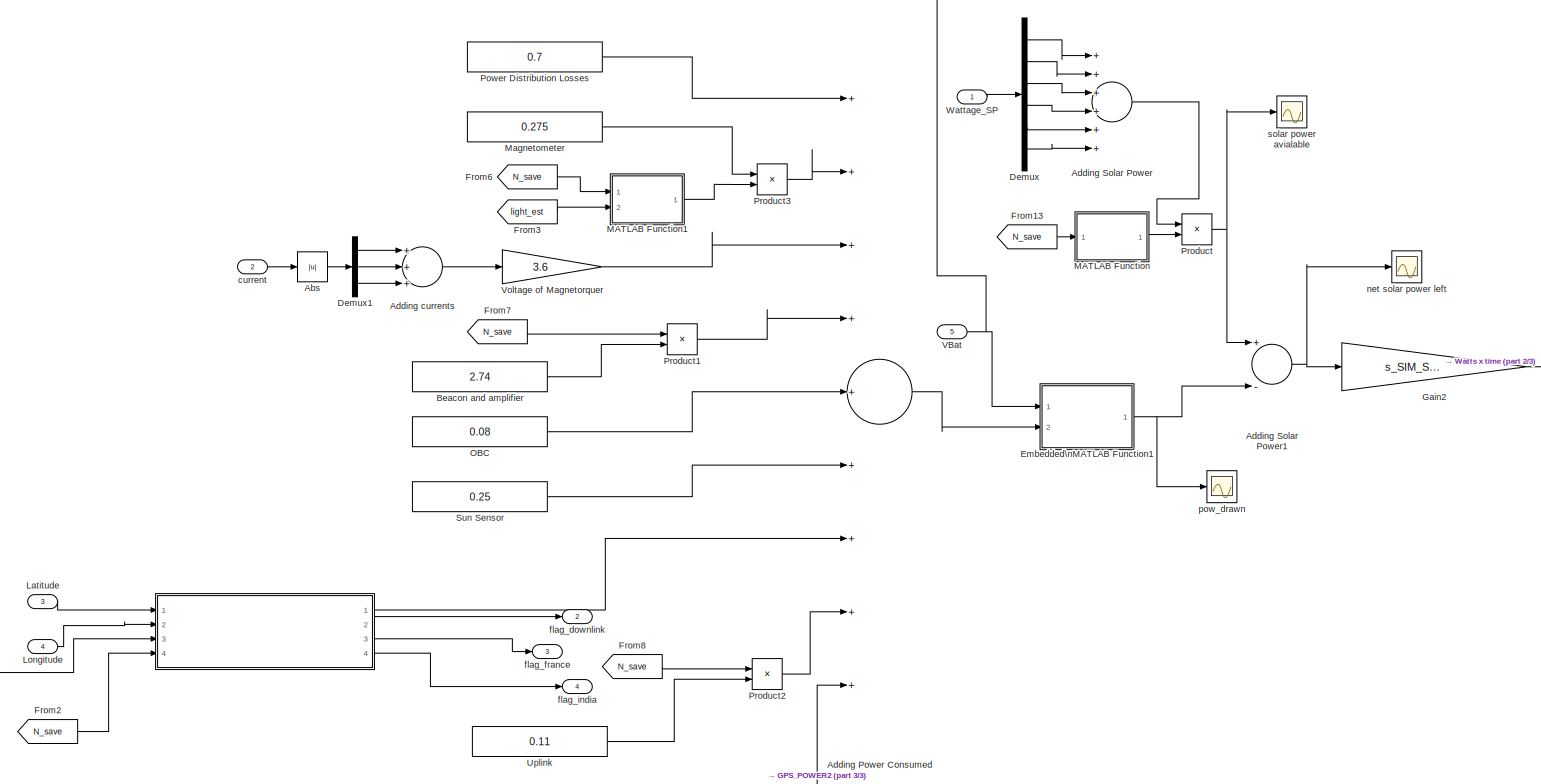
[diagram: PowerD0D/Watts x time - part 1/3, full width, top band]
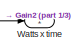
[diagram: PowerD0D/Watts x time - part 2/3, top right region]
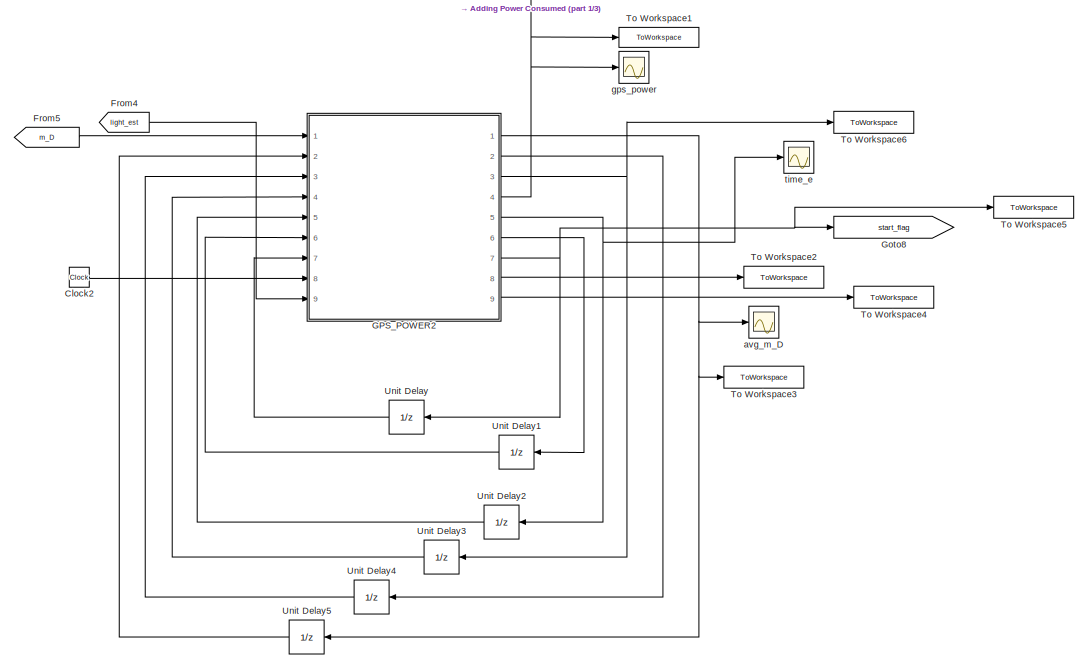
[diagram: PowerD0D/Watts x time - part 3/3, bottom left region]
BLOCK [SubSystem] PowerD0D/Watts x time
  Ports = [5, 4]
  RequestExecContextInheritance = off
  SID = 1210
BLOCK [SubSystem] PowerD0D/Watts x time/ 
  ErrorFcn = Stateflow.Translate.translate
  PermitHierarchicalResolution = ExplicitOnly
  Ports = [4, 4]
  RequestExecContextInheritance = off
  SFBlockType = MATLAB Function
  SID = 1224
  TreatAsAtomicUnit = on
BLOCK [Demux] PowerD0D/Watts x time/ / Demux 
  Outputs = 1
  Ports = [1, 1]
  SID = 1224::32
BLOCK [S-Function] PowerD0D/Watts x time/ / SFunction 
  EnableBusSupport = on
  FunctionName = sf_sfun
  PortCounts = [4 5]
  Ports = [4, 5]
  SID = 1224::31
  Tag = Stateflow S-Function adcs_v15_integral_Power_OILS_GPS 19
BLOCK [Terminator] PowerD0D/Watts x time/ / Terminator 
  SID = 1224::33
BLOCK [Outport] PowerD0D/Watts x time/ /Downlink_power
  IconDisplay = Port number
  SID = 1224::14
BLOCK [Inport] PowerD0D/Watts x time/ /Latitude
  IconDisplay = Port number
  SID = 1224::12
BLOCK [Inport] PowerD0D/Watts x time/ /Longitude
  IconDisplay = Port number
  Port = 2
  SID = 1224::13
BLOCK [Inport] PowerD0D/Watts x time/ /N_save
  IconDisplay = Port number
  Port = 4
  SID = 1224::27
BLOCK [Inport] PowerD0D/Watts x time/ /VBAT
  IconDisplay = Port number
  Port = 3
  SID = 1224::25
BLOCK [Outport] PowerD0D/Watts x time/ /flag_downlink
  IconDisplay = Port number
  Port = 2
  SID = 1224::15
BLOCK [Outport] PowerD0D/Watts x time/ /flag_france
  IconDisplay = Port number
  Port = 3
  SID = 1224::16
BLOCK [Outport] PowerD0D/Watts x time/ /flag_india
  IconDisplay = Port number
  Port = 4
  SID = 1224::17
BLOCK [SubSystem] PowerD0D/Watts x time/ GPS_POWER2
  ErrorFcn = Stateflow.Translate.translate
  PermitHierarchicalResolution = ExplicitOnly
  Ports = [9, 9]
  RequestExecContextInheritance = off
  SFBlockType = MATLAB Function
  SID = 1778
  TreatAsAtomicUnit = on
BLOCK [Demux] PowerD0D/Watts x time/ GPS_POWER2/ Demux 
  Outputs = 1
  Ports = [1, 1]
  SID = 1778::67
BLOCK [S-Function] PowerD0D/Watts x time/ GPS_POWER2/ SFunction 
  EnableBusSupport = on
  FunctionName = sf_sfun
  Parameters = GPS_max,GPS_start,eclipse_time
  PortCounts = [9 10]
  Ports = [9, 10]
  SID = 1778::66
  Tag = Stateflow S-Function adcs_v15_integral_Power_OILS_GPS 3
BLOCK [Terminator] PowerD0D/Watts x time/ GPS_POWER2/ Terminator 
  SID = 1778::68
BLOCK [Outport] PowerD0D/Watts x time/ GPS_POWER2/GPS_power
  IconDisplay = Port number
  Port = 4
  SID = 1778::85
BLOCK [Outport] PowerD0D/Watts x time/ GPS_POWER2/GPS_start_time
  IconDisplay = Port number
  Port = 8
  SID = 1778::89
BLOCK [Inport] PowerD0D/Watts x time/ GPS_POWER2/avg_md
  IconDisplay = Port number
  Port = 2
  SID = 1778::73
BLOCK [Outport] PowerD0D/Watts x time/ GPS_POWER2/avg_md_new
  IconDisplay = Port number
  SID = 1778::59
BLOCK [Inport] PowerD0D/Watts x time/ GPS_POWER2/flag_on
  IconDisplay = Port number
  Port = 4
  SID = 1778::75
BLOCK [Outport] PowerD0D/Watts x time/ GPS_POWER2/flag_on_new
  IconDisplay = Port number
  Port = 3
  SID = 1778::84
BLOCK [Inport] PowerD0D/Watts x time/ GPS_POWER2/light_est
  IconDisplay = Port number
  Port = 9
  SID = 1778::82
BLOCK [Inport] PowerD0D/Watts x time/ GPS_POWER2/m_D
  IconDisplay = Port number
  SID = 1778::25
BLOCK [Inport] PowerD0D/Watts x time/ GPS_POWER2/num
  IconDisplay = Port number
  Port = 3
  SID = 1778::74
BLOCK [Outport] PowerD0D/Watts x time/ GPS_POWER2/num_new
  IconDisplay = Port number
  Port = 2
  SID = 1778::83
BLOCK [Inport] PowerD0D/Watts x time/ GPS_POWER2/start_flag
  IconDisplay = Port number
  Port = 7
  SID = 1778::80
BLOCK [Outport] PowerD0D/Watts x time/ GPS_POWER2/start_flag_new
  IconDisplay = Port number
  Port = 7
  SID = 1778::88
BLOCK [Outport] PowerD0D/Watts x time/ GPS_POWER2/start_time
  IconDisplay = Port number
  Port = 9
  SID = 1778::90
BLOCK [Inport] PowerD0D/Watts x time/ GPS_POWER2/time
  IconDisplay = Port number
  Port = 8
  SID = 1778::81
BLOCK [Inport] PowerD0D/Watts x time/ GPS_POWER2/time_e
  IconDisplay = Port number
  Port = 5
  SID = 1778::77
BLOCK [Outport] PowerD0D/Watts x time/ GPS_POWER2/time_e_new
  IconDisplay = Port number
  Port = 5
  SID = 1778::86
BLOCK [Inport] PowerD0D/Watts x time/ GPS_POWER2/time_l
  IconDisplay = Port number
  Port = 6
  SID = 1778::78
BLOCK [Outport] PowerD0D/Watts x time/ GPS_POWER2/time_l_new
  IconDisplay = Port number
  Port = 6
  SID = 1778::87
BLOCK [Scope] PowerD0D/Watts x time/ solar power avialable
  DataFormat = StructureWithTime
  Floating = off
  LimitDataPoints = off
  NumInputPorts = 1
  Ports = [1]
  SID = 1230
  SampleTime = 0
  SaveName = ScopeData34
  YMax = 10.5
  YMin = 0
BLOCK [Abs] PowerD0D/Watts x time/Abs
  SID = 1216
  SaturateOnIntegerOverflow = off
BLOCK [Sum] PowerD0D/Watts x time/Adding Power Consumed
  InputSameDT = off
  Inputs = +++++++++
  OutDataTypeStr = Inherit: Inherit via internal rule
  Ports = [9, 1]
  SID = 1217
  SaturateOnIntegerOverflow = off
BLOCK [Sum] PowerD0D/Watts x time/Adding Solar Power
  InputSameDT = off
  Inputs = ++++++
  OutDataTypeStr = Inherit: Inherit via internal rule
  Ports = [6, 1]
  SID = 1218
  SaturateOnIntegerOverflow = off
BLOCK [Sum] PowerD0D/Watts x time/Adding Solar Power1
  InputSameDT = off
  Inputs = +-
  OutDataTypeStr = Inherit: Inherit via internal rule
  Ports = [2, 1]
  SID = 1219
  SaturateOnIntegerOverflow = off
BLOCK [Sum] PowerD0D/Watts x time/Adding currents
  InputSameDT = off
  Inputs = +++
  OutDataTypeStr = Inherit: Inherit via internal rule
  Ports = [3, 1]
  SID = 1220
  SaturateOnIntegerOverflow = off
BLOCK [Constant] PowerD0D/Watts x time/Beacon and amplifier
  SID = 1221
  Value = 2.74
BLOCK [Clock] PowerD0D/Watts x time/Clock2
  SID = 1779
BLOCK [Demux] PowerD0D/Watts x time/Demux
  DisplayOption = bar
  Outputs = 6
  Ports = [1, 6]
  SID = 1222
BLOCK [Demux] PowerD0D/Watts x time/Demux1
  DisplayOption = bar
  Outputs = 3
  Ports = [1, 3]
  SID = 1223
BLOCK [SubSystem] PowerD0D/Watts x time/Embedded\nMATLAB Function1
  ErrorFcn = Stateflow.Translate.translate
  PermitHierarchicalResolution = ExplicitOnly
  Ports = [2, 1]
  RequestExecContextInheritance = off
  SFBlockType = MATLAB Function
  SID = 1225
  TreatAsAtomicUnit = on
BLOCK [Demux] PowerD0D/Watts x time/Embedded\nMATLAB Function1/ Demux 
  Outputs = 1
  Ports = [1, 1]
  SID = 1225::22
BLOCK [S-Function] PowerD0D/Watts x time/Embedded\nMATLAB Function1/ SFunction 
  EnableBusSupport = on
  FunctionName = sf_sfun
  PortCounts = [2 2]
  Ports = [2, 2]
  SID = 1225::21
  Tag = Stateflow S-Function adcs_v15_integral_Power_OILS_GPS 31
BLOCK [Terminator] PowerD0D/Watts x time/Embedded\nMATLAB Function1/ Terminator 
  SID = 1225::23
BLOCK [Inport] PowerD0D/Watts x time/Embedded\nMATLAB Function1/Vbat
  IconDisplay = Port number
  SID = 1225::2
BLOCK [Inport] PowerD0D/Watts x time/Embedded\nMATLAB Function1/pow
  IconDisplay = Port number
  Port = 2
  SID = 1225::1
BLOCK [Outport] PowerD0D/Watts x time/Embedded\nMATLAB Function1/pow_drawn
  IconDisplay = Port number
  SID = 1225::6
BLOCK [From] PowerD0D/Watts x time/From13
  GotoTag = N_save
  SID = 1344
  TagVisibility = global
BLOCK [From] PowerD0D/Watts x time/From2
  GotoTag = N_save
  SID = 1409
  TagVisibility = global
BLOCK [From] PowerD0D/Watts x time/From3
  GotoTag = light_est
  SID = 1393
  TagVisibility = global
BLOCK [From] PowerD0D/Watts x time/From4
  GotoTag = light_est
  SID = 1780
  TagVisibility = global
BLOCK [From] PowerD0D/Watts x time/From5
  GotoTag = m_D
  SID = 1781
  TagVisibility = global
BLOCK [From] PowerD0D/Watts x time/From6
  GotoTag = N_save
  SID = 1826
  TagVisibility = global
BLOCK [From] PowerD0D/Watts x time/From7
  GotoTag = N_save
  SID = 1829
  TagVisibility = global
BLOCK [From] PowerD0D/Watts x time/From8
  GotoTag = N_save
  SID = 1833
  TagVisibility = global
BLOCK [Gain] PowerD0D/Watts x time/Gain2
  Gain = s_SIM_STEP_SIZE
  OutDataTypeStr = Inherit: Inherit via internal rule
  ParamDataTypeStr = Inherit: Inherit via internal rule
  SID = 1226
  SaturateOnIntegerOverflow = off
BLOCK [Goto] PowerD0D/Watts x time/Goto8
  GotoTag = start_flag
  SID = 1782
  TagVisibility = global
BLOCK [Inport] PowerD0D/Watts x time/Latitude
  IconDisplay = Port number
  Port = 3
  SID = 1213
BLOCK [Inport] PowerD0D/Watts x time/Longitude
  IconDisplay = Port number
  Port = 4
  SID = 1214
BLOCK [SubSystem] PowerD0D/Watts x time/MATLAB Function
  ErrorFcn = Stateflow.Translate.translate
  PermitHierarchicalResolution = ExplicitOnly
  Ports = [1, 1]
  RequestExecContextInheritance = off
  SFBlockType = MATLAB Function
  SID = 1454
  TreatAsAtomicUnit = on
BLOCK [Demux] PowerD0D/Watts x time/MATLAB Function/ Demux 
  Outputs = 1
  Ports = [1, 1]
  SID = 1454::25
BLOCK [S-Function] PowerD0D/Watts x time/MATLAB Function/ SFunction 
  EnableBusSupport = on
  FunctionName = sf_sfun
  PortCounts = [1 2]
  Ports = [1, 2]
  SID = 1454::24
  Tag = Stateflow S-Function adcs_v15_integral_Power_OILS_GPS 15
BLOCK [Terminator] PowerD0D/Watts x time/MATLAB Function/ Terminator 
  SID = 1454::26
BLOCK [Inport] PowerD0D/Watts x time/MATLAB Function/N_save
  IconDisplay = Port number
  SID = 1454::1
BLOCK [Outport] PowerD0D/Watts x time/MATLAB Function/factor
  IconDisplay = Port number
  SID = 1454::5
BLOCK [SubSystem] PowerD0D/Watts x time/MATLAB Function1
  ErrorFcn = Stateflow.Translate.translate
  PermitHierarchicalResolution = ExplicitOnly
  Ports = [2, 1]
  RequestExecContextInheritance = off
  SFBlockType = MATLAB Function
  SID = 1825
  TreatAsAtomicUnit = on
BLOCK [Demux] PowerD0D/Watts x time/MATLAB Function1/ Demux 
  Outputs = 1
  Ports = [1, 1]
  SID = 1825::25
BLOCK [S-Function] PowerD0D/Watts x time/MATLAB Function1/ SFunction 
  EnableBusSupport = on
  FunctionName = sf_sfun
  PortCounts = [2 2]
  Ports = [2, 2]
  SID = 1825::24
  Tag = Stateflow S-Function adcs_v15_integral_Power_OILS_GPS 35
BLOCK [Terminator] PowerD0D/Watts x time/MATLAB Function1/ Terminator 
  SID = 1825::26
BLOCK [Inport] PowerD0D/Watts x time/MATLAB Function1/N_save
  IconDisplay = Port number
  SID = 1825::1
BLOCK [Outport] PowerD0D/Watts x time/MATLAB Function1/factor
  IconDisplay = Port number
  SID = 1825::5
BLOCK [Inport] PowerD0D/Watts x time/MATLAB Function1/light
  IconDisplay = Port number
  Port = 2
  SID = 1825::27
BLOCK [Constant] PowerD0D/Watts x time/Magnetometer
  SID = 1227
  Value = 0.275
BLOCK [Constant] PowerD0D/Watts x time/OBC
  SID = 1228
  Value = 0.08
BLOCK [Constant] PowerD0D/Watts x time/Power Distribution Losses
  SID = 1229
  Value = 0.7
BLOCK [Product] PowerD0D/Watts x time/Product
  InputSameDT = off
  OutDataTypeStr = Inherit: Inherit via internal rule
  Ports = [2, 1]
  RndMeth = Floor
  SID = 1345
  SaturateOnIntegerOverflow = off
BLOCK [Product] PowerD0D/Watts x time/Product1
  InputSameDT = off
  OutDataTypeStr = Inherit: Inherit via internal rule
  Ports = [2, 1]
  RndMeth = Floor
  SID = 1828
  SaturateOnIntegerOverflow = off
BLOCK [Product] PowerD0D/Watts x time/Product2
  InputSameDT = off
  OutDataTypeStr = Inherit: Inherit via internal rule
  Ports = [2, 1]
  RndMeth = Floor
  SID = 1832
  SaturateOnIntegerOverflow = off
BLOCK [Product] PowerD0D/Watts x time/Product3
  InputSameDT = off
  OutDataTypeStr = Inherit: Inherit via internal rule
  Ports = [2, 1]
  RndMeth = Floor
  SID = 1394
  SaturateOnIntegerOverflow = off
BLOCK [Constant] PowerD0D/Watts x time/Sun Sensor
  SID = 1233
  Value = 0.25
BLOCK [ToWorkspace] PowerD0D/Watts x time/To Workspace1
  MaxDataPoints = inf
  Ports = [1]
  SID = 1783
  SampleTime = s_FRAME_SIZE
  VariableName = gps_power
BLOCK [ToWorkspace] PowerD0D/Watts x time/To Workspace2
  MaxDataPoints = inf
  Ports = [1]
  SID = 1784
  SampleTime = s_FRAME_SIZE
  VariableName = GPS_start_time
BLOCK [ToWorkspace] PowerD0D/Watts x time/To Workspace3
  MaxDataPoints = inf
  Ports = [1]
  SID = 1785
  SampleTime = s_FRAME_SIZE
  VariableName = avg_m_D
BLOCK [ToWorkspace] PowerD0D/Watts x time/To Workspace4
  MaxDataPoints = inf
  Ports = [1]
  SID = 1786
  SampleTime = s_FRAME_SIZE
  VariableName = start_time
BLOCK [ToWorkspace] PowerD0D/Watts x time/To Workspace5
  MaxDataPoints = inf
  Ports = [1]
  SID = 1787
  SampleTime = s_FRAME_SIZE
  VariableName = start_flag
BLOCK [ToWorkspace] PowerD0D/Watts x time/To Workspace6
  MaxDataPoints = inf
  Ports = [1]
  SID = 1788
  SampleTime = s_FRAME_SIZE
  VariableName = flag_on
BLOCK [UnitDelay] PowerD0D/Watts x time/Unit Delay
  SID = 1789
BLOCK [UnitDelay] PowerD0D/Watts x time/Unit Delay1
  SID = 1790
BLOCK [UnitDelay] PowerD0D/Watts x time/Unit Delay2
  SID = 1791
BLOCK [UnitDelay] PowerD0D/Watts x time/Unit Delay3
  SID = 1792
BLOCK [UnitDelay] PowerD0D/Watts x time/Unit Delay4
  InitialCondition = 2
  SID = 1793
BLOCK [UnitDelay] PowerD0D/Watts x time/Unit Delay5
  SID = 1794
BLOCK [Constant] PowerD0D/Watts x time/Uplink
  SID = 1830
  Value = 0.11
BLOCK [Inport] PowerD0D/Watts x time/VBat
  IconDisplay = Port number
  Port = 5
  SID = 1215
BLOCK [Gain] PowerD0D/Watts x time/Voltage of Magnetorquer
  Gain = 3.6
  OutDataTypeStr = Inherit: Inherit via internal rule
  ParamDataTypeStr = Inherit: Inherit via internal rule
  SID = 1235
  SaturateOnIntegerOverflow = off
BLOCK [Inport] PowerD0D/Watts x time/Wattage_SP
  IconDisplay = Port number
  SID = 1211
BLOCK [Outport] PowerD0D/Watts x time/Watts x time
  IconDisplay = Port number
  SID = 1236
BLOCK [Scope] PowerD0D/Watts x time/avg_m_D
  DataFormat = StructureWithTime
  Floating = off
  LimitDataPoints = off
  NumInputPorts = 1
  Ports = [1]
  SID = 1795
  SampleTime = 0
  SaveName = ScopeData43
  YMax = 0.07
  YMin = 0.035
BLOCK [Inport] PowerD0D/Watts x time/current
  IconDisplay = Port number
  Port = 2
  SID = 1212
BLOCK [Outport] PowerD0D/Watts x time/flag_downlink
  IconDisplay = Port number
  Port = 2
  SID = 1237
BLOCK [Outport] PowerD0D/Watts x time/flag_france
  IconDisplay = Port number
  Port = 3
  SID = 1238
BLOCK [Outport] PowerD0D/Watts x time/flag_india
  IconDisplay = Port number
  Port = 4
  SID = 1239
BLOCK [Scope] PowerD0D/Watts x time/gps_power
  DataFormat = StructureWithTime
  Floating = off
  LimitDataPoints = off
  NumInputPorts = 1
  Ports = [1]
  SID = 1796
  SampleTime = 0
  SaveName = ScopeData6
  TimeRange = 240000
  YMin = -2
  ZoomMode = xonly
BLOCK [Scope] PowerD0D/Watts x time/net solar power left
  DataFormat = StructureWithTime
  Floating = off
  LimitDataPoints = off
  NumInputPorts = 1
  Ports = [1]
  SID = 1232
  SampleTime = 0
  SaveName = ScopeData36
  YMax = 6.8
  YMin = 6.275
BLOCK [Scope] PowerD0D/Watts x time/pow_drawn
  DataFormat = StructureWithTime
  Floating = off
  LimitDataPoints = off
  NumInputPorts = 1
  Ports = [1]
  SID = 1231
  SampleTime = 0
  SaveName = ScopeData35
  YMin = 2.25
BLOCK [Scope] PowerD0D/Watts x time/time_e
  DataFormat = StructureWithTime
  Floating = off
  LimitDataPoints = off
  NumInputPorts = 1
  Ports = [1]
  SID = 1797
  SampleTime = 0
  SaveName = ScopeData41
  TimeRange = 240000
  YMax = 45000
  YMin = 0
  ZoomMode = xonly
BLOCK [SubSystem] PowerD0D/battery_DOD
  Ports = [4, 4]
  RequestExecContextInheritance = off
  SID = 1240
BLOCK [Outport] PowerD0D/battery_DOD/BATT Capacity
  IconDisplay = Port number
  SID = 1251
BLOCK [Inport] PowerD0D/battery_DOD/BATTERY Capacity
  IconDisplay = Port number
  SID = 1241
BLOCK [Outport] PowerD0D/battery_DOD/DOD
  IconDisplay = Port number
  Port = 4
  SID = 1254
BLOCK [Outport] PowerD0D/battery_DOD/Flag_charge
  IconDisplay = Port number
  Port = 3
  SID = 1253
BLOCK [Integrator] PowerD0D/battery_DOD/Integrator
  Ports = [1, 1]
  SID = 1248
BLOCK [SubSystem] PowerD0D/battery_DOD/MATLAB Function
  ErrorFcn = Stateflow.Translate.translate
  PermitHierarchicalResolution = ExplicitOnly
  Ports = [4, 5]
  RequestExecContextInheritance = off
  SFBlockType = MATLAB Function
  SID = 1247
  TreatAsAtomicUnit = on
BLOCK [Demux] PowerD0D/battery_DOD/MATLAB Function/ Demux 
  Outputs = 1
  Ports = [1, 1]
  SID = 1247::34
BLOCK [S-Function] PowerD0D/battery_DOD/MATLAB Function/ SFunction 
  EnableBusSupport = on
  FunctionName = sf_sfun
  Parameters = internal_resistance,s_SIM_STEP_SIZE
  PortCounts = [4 6]
  Ports = [4, 6]
  SID = 1247::33
  Tag = Stateflow S-Function adcs_v15_integral_Power_OILS_GPS 26
BLOCK [Terminator] PowerD0D/battery_DOD/MATLAB Function/ Terminator 
  SID = 1247::35
BLOCK [Outport] PowerD0D/battery_DOD/MATLAB Function/Batt_cap
  IconDisplay = Port number
  SID = 1247::5
BLOCK [Outport] PowerD0D/battery_DOD/MATLAB Function/Flag_charge
  IconDisplay = Port number
  Port = 3
  SID = 1247::14
BLOCK [Outport] PowerD0D/battery_DOD/MATLAB Function/VBat
  IconDisplay = Port number
  Port = 2
  SID = 1247::12
BLOCK [Inport] PowerD0D/battery_DOD/MATLAB Function/batt_cap
  IconDisplay = Port number
  SID = 1247::10
BLOCK [Outport] PowerD0D/battery_DOD/MATLAB Function/current
  IconDisplay = Port number
  Port = 5
  SID = 1247::20
BLOCK [Inport] PowerD0D/battery_DOD/MATLAB Function/flag_charge
  IconDisplay = Port number
  Port = 3
  SID = 1247::13
BLOCK [Outport] PowerD0D/battery_DOD/MATLAB Function/frac_Batt_cap_drwn
  IconDisplay = Port number
  Port = 4
  SID = 1247::15
BLOCK [Inport] PowerD0D/battery_DOD/MATLAB Function/vbat
  IconDisplay = Port number
  Port = 4
  SID = 1247::19
BLOCK [Inport] PowerD0D/battery_DOD/MATLAB Function/watts_time
  IconDisplay = Port number
  Port = 2
  SID = 1247::11
BLOCK [Outport] PowerD0D/battery_DOD/VBAT
  IconDisplay = Port number
  Port = 2
  SID = 1252
BLOCK [Inport] PowerD0D/battery_DOD/Watts x time
  IconDisplay = Port number
  Port = 2
  SID = 1242
BLOCK [Scope] PowerD0D/battery_DOD/current
  DataFormat = StructureWithTime
  Floating = off
  LimitDataPoints = off
  NumInputPorts = 1
  Ports = [1]
  SID = 1249
  SampleTime = 0
  SaveName = ScopeData38
  YMax = -0.275
  YMin = -0.625
  ZoomMode = xonly
BLOCK [Inport] PowerD0D/battery_DOD/flag_charge
  IconDisplay = Port number
  Port = 3
  SID = 1243
BLOCK [Scope] PowerD0D/battery_DOD/is this charge?
  DataFormat = StructureWithTime
  Floating = off
  LimitDataPoints = off
  NumInputPorts = 1
  Ports = [1]
  SID = 1250
  SampleTime = 0
  SaveName = ScopeData39
  YMax = -0.275
  YMin = -0.625
  ZoomMode = xonly
BLOCK [Inport] PowerD0D/battery_DOD/vbat
  IconDisplay = Port number
  Port = 4
  SID = 1245
BLOCK [SubSystem] PowerD0D/r_ECEF -> r_LLA
  ErrorFcn = Stateflow.Translate.translate
  PermitHierarchicalResolution = ExplicitOnly
  Ports = [1, 3]
  RequestExecContextInheritance = off
  SFBlockType = MATLAB Function
  SID = 1256
  TreatAsAtomicUnit = on
BLOCK [Demux] PowerD0D/r_ECEF -> r_LLA/ Demux 
  Outputs = 1
  Ports = [1, 1]
  SID = 1256::23
BLOCK [S-Function] PowerD0D/r_ECEF -> r_LLA/ SFunction 
  EnableBusSupport = on
  FunctionName = sf_sfun
  PortCounts = [1 4]
  Ports = [1, 4]
  SID = 1256::22
  Tag = Stateflow S-Function adcs_v15_integral_Power_OILS_GPS 28
BLOCK [Terminator] PowerD0D/r_ECEF -> r_LLA/ Terminator 
  SID = 1256::24
BLOCK [Outport] PowerD0D/r_ECEF -> r_LLA/Altitude
  IconDisplay = Port number
  Port = 3
  SID = 1256::11
BLOCK [Outport] PowerD0D/r_ECEF -> r_LLA/Latitutde
  IconDisplay = Port number
  SID = 1256::5
BLOCK [Outport] PowerD0D/r_ECEF -> r_LLA/Longitude
  IconDisplay = Port number
  Port = 2
  SID = 1256::10
BLOCK [Inport] PowerD0D/r_ECEF -> r_LLA/r_ECEF
  IconDisplay = Port number
  SID = 1256::1
BLOCK [SubSystem] PowerD0D/r_ECI -> r_ECEF
  ErrorFcn = Stateflow.Translate.translate
  PermitHierarchicalResolution = ExplicitOnly
  Ports = [2, 1]
  RequestExecContextInheritance = off
  SFBlockType = MATLAB Function
  SID = 1257
  TreatAsAtomicUnit = on
BLOCK [Demux] PowerD0D/r_ECI -> r_ECEF/ Demux 
  Outputs = 1
  Ports = [1, 1]
  SID = 1257::26
BLOCK [S-Function] PowerD0D/r_ECI -> r_ECEF/ SFunction 
  EnableBusSupport = on
  FunctionName = sf_sfun
  Parameters = equinox,today
  PortCounts = [2 2]
  Ports = [2, 2]
  SID = 1257::25
  Tag = Stateflow S-Function adcs_v15_integral_Power_OILS_GPS 30
BLOCK [Terminator] PowerD0D/r_ECI -> r_ECEF/ Terminator 
  SID = 1257::27
BLOCK [Outport] PowerD0D/r_ECI -> r_ECEF/r_ECEF
  IconDisplay = Port number
  SID = 1257::5
BLOCK [Inport] PowerD0D/r_ECI -> r_ECEF/r_I
  IconDisplay = Port number
  SID = 1257::14
BLOCK [Inport] PowerD0D/r_ECI -> r_ECEF/t
  IconDisplay = Port number
  Port = 2
  SID = 1257::11
BLOCK [SubSystem] QuEST
  ErrorFcn = Stateflow.Translate.translate
  PermitHierarchicalResolution = ExplicitOnly
  Ports = [4, 3]
  RequestExecContextInheritance = off
  SFBlockType = MATLAB Function
  SID = 863
  SystemSampleTime = s_FRAME_SIZE
  TreatAsAtomicUnit = on
BLOCK [Demux] QuEST/ Demux 
  Outputs = 1
  Ports = [1, 1]
  SID = 863::32
BLOCK [S-Function] QuEST/ SFunction 
  EnableBusSupport = on
  FunctionName = sf_sfun
  Parameters = Snum,cos_fov,s_MAGMETER_WEIGHT,s_SS_ADC_gain
  PortCounts = [4 4]
  Ports = [4, 4]
  SID = 863::31
  Tag = Stateflow S-Function adcs_v15_integral_Power_OILS_GPS 11
BLOCK [Terminator] QuEST/ Terminator 
  SID = 863::33
BLOCK [Outport] QuEST/light_est
  IconDisplay = Port number
  Port = 2
  SID = 863::17
BLOCK [Inport] QuEST/m_SUN
  IconDisplay = Port number
  Port = 2
  SID = 863::10
BLOCK [Outport] QuEST/q_BO_est
  IconDisplay = Port number
  SID = 863::5
BLOCK [Inport] QuEST/v_Bb_m
  IconDisplay = Port number
  SID = 863::1
BLOCK [Inport] QuEST/v_Bo_c
  IconDisplay = Port number
  Port = 3
  SID = 863::11
BLOCK [Inport] QuEST/v_So_c
  IconDisplay = Port number
  Port = 4
  SID = 863::12
BLOCK [Outport] QuEST/v_Sun1
  IconDisplay = Port number
  Port = 3
  SID = 863::20
BLOCK [RateTransition] Rate Transition
  OutPortSampleTime = s_FRAME_SIZE
  SID = 1364
BLOCK [RateTransition] Rate Transition1
  OutPortSampleTime = s_FRAME_SIZE
  SID = 1728
BLOCK [SubSystem] Satellite Computations I\nPropagators
  Ports = [1, 2]
  RequestExecContextInheritance = off
  SID = 848
  SystemSampleTime = s_FRAME_SIZE
  TreatAsAtomicUnit = on
BLOCK [FromFile] Satellite Computations I\nPropagators/From File
  FileName = Si_120k
  SID = 956
BLOCK [FromFile] Satellite Computations I\nPropagators/From File2
  FileName = SGP_est_120k
  SID = 850
BLOCK [FromFile] Satellite Computations I\nPropagators/From File3
  FileName = Bi8_est_120k
  SID = 851
BLOCK [Inport] Satellite Computations I\nPropagators/OILS_SGP_est
  IconDisplay = Port number
  SID = 1727
BLOCK [SubSystem] Satellite Computations I\nPropagators/m_TOI_NEW
  ErrorFcn = Stateflow.Translate.translate
  PermitHierarchicalResolution = ExplicitOnly
  Ports = [2, 1]
  RequestExecContextInheritance = off
  SFBlockType = MATLAB Function
  SID = 859
  TreatAsAtomicUnit = on
BLOCK [Demux] Satellite Computations I\nPropagators/m_TOI_NEW/ Demux 
  Outputs = 1
  Ports = [1, 1]
  SID = 859::22
BLOCK [S-Function] Satellite Computations I\nPropagators/m_TOI_NEW/ SFunction 
  EnableBusSupport = on
  FunctionName = sf_sfun
  PortCounts = [2 2]
  Ports = [2, 2]
  SID = 859::21
  Tag = Stateflow S-Function adcs_v15_integral_Power_OILS_GPS 25
BLOCK [Terminator] Satellite Computations I\nPropagators/m_TOI_NEW/ Terminator 
  SID = 859::23
BLOCK [Inport] Satellite Computations I\nPropagators/m_TOI_NEW/ECI
  IconDisplay = Port number
  SID = 859::1
BLOCK [Inport] Satellite Computations I\nPropagators/m_TOI_NEW/v_I
  IconDisplay = Port number
  Port = 2
  SID = 859::10
BLOCK [Outport] Satellite Computations I\nPropagators/m_TOI_NEW/v_O
  IconDisplay = Port number
  SID = 859::5
BLOCK [SubSystem] Satellite Computations I\nPropagators/m_TOI_NEW1
  ErrorFcn = Stateflow.Translate.translate
  PermitHierarchicalResolution = ExplicitOnly
  Ports = [2, 1]
  RequestExecContextInheritance = off
  SFBlockType = MATLAB Function
  SID = 860
  TreatAsAtomicUnit = on
BLOCK [Demux] Satellite Computations I\nPropagators/m_TOI_NEW1/ Demux 
  Outputs = 1
  Ports = [1, 1]
  SID = 860::22
BLOCK [S-Function] Satellite Computations I\nPropagators/m_TOI_NEW1/ SFunction 
  EnableBusSupport = on
  FunctionName = sf_sfun
  PortCounts = [2 2]
  Ports = [2, 2]
  SID = 860::21
  Tag = Stateflow S-Function adcs_v15_integral_Power_OILS_GPS 12
BLOCK [Terminator] Satellite Computations I\nPropagators/m_TOI_NEW1/ Terminator 
  SID = 860::23
BLOCK [Inport] Satellite Computations I\nPropagators/m_TOI_NEW1/ECI
  IconDisplay = Port number
  Port = 2
  SID = 860::1
BLOCK [Inport] Satellite Computations I\nPropagators/m_TOI_NEW1/v_I
  IconDisplay = Port number
  SID = 860::10
BLOCK [Outport] Satellite Computations I\nPropagators/m_TOI_NEW1/v_O
  IconDisplay = Port number
  SID = 860::5
BLOCK [Outport] Satellite Computations I\nPropagators/v_Bo_est
  IconDisplay = Port number
  SID = 861
BLOCK [Outport] Satellite Computations I\nPropagators/v_So_est
  IconDisplay = Port number
  Port = 2
  SID = 862
BLOCK [Scope] Scope
  Floating = off
  NumInputPorts = 1
  Ports = [1]
  SID = 1700
  SaveName = ScopeData5
BLOCK [Scope] Scope1
  DataFormat = StructureWithTime
  Floating = off
  LimitDataPoints = off
  NumInputPorts = 1
  Ports = [1]
  SID = 936
  SampleInput = on
  SampleTime = Ts_display
  SaveName = ScopeData11
  YMax = 1
  YMin = -0.1
  ZoomMode = xonly
BLOCK [Scope] Scope10
  DataFormat = StructureWithTime
  Floating = off
  LimitDataPoints = off
  NumInputPorts = 1
  Ports = [1]
  SID = 1259
  SampleInput = on
  SampleTime = Ts_display
  SaveName = ScopeData3
  YMax = 10
  YMin = -10
BLOCK [Scope] Scope11
  Floating = off
  LimitDataPoints = off
  NumInputPorts = 1
  Ports = [1]
  SID = 1702
  SampleInput = on
  SampleTime = Ts_display
  SaveName = ScopeData12
  SaveToWorkspace = on
  YMax = 10
  YMin = -10
  ZoomMode = xonly
BLOCK [Scope] Scope12
  Floating = off
  LimitDataPoints = off
  NumInputPorts = 1
  Ports = [1]
  SID = 1704
  SampleInput = on
  SampleTime = Ts_display
  SaveName = ScopeData46
  SaveToWorkspace = on
  YMax = 10
  YMin = -10
  ZoomMode = xonly
BLOCK [Scope] Scope13
  DataFormat = StructureWithTime
  Floating = off
  LimitDataPoints = off
  NumInputPorts = 1
  Ports = [1]
  SID = 1709
  SampleInput = on
  SampleTime = Ts_display
  SaveName = ScopeData47
  YMax = 1
  YMin = -0.1
  ZoomMode = xonly
BLOCK [Scope] Scope14
  Floating = off
  LimitDataPoints = off
  NumInputPorts = 1
  Ports = [1]
  SID = 1710
  SampleInput = on
  SampleTime = Ts_display
  SaveName = ScopeData48
  SaveToWorkspace = on
  YMax = 10
  YMin = -10
  ZoomMode = xonly
BLOCK [Scope] Scope15
  Floating = off
  LimitDataPoints = off
  NumInputPorts = 1
  Ports = [1]
  SID = 1711
  SampleInput = on
  SampleTime = Ts_display
  SaveName = ScopeData49
  SaveToWorkspace = on
  YMax = 10
  YMin = -10
  ZoomMode = xonly
BLOCK [Scope] Scope16
  Floating = off
  LimitDataPoints = off
  NumInputPorts = 1
  Ports = [1]
  SID = 1713
  SampleInput = on
  SampleTime = Ts_display
  SaveName = ScopeData50
  SaveToWorkspace = on
  YMax = 10
  YMin = -10
  ZoomMode = xonly
BLOCK [Scope] Scope2
  DataFormat = StructureWithTime
  Floating = off
  LimitDataPoints = off
  NumInputPorts = 1
  Ports = [1]
  SID = 706
  SampleInput = on
  SampleTime = Ts_display
  SaveName = ScopeData7
  TimeRange = 4.628195763325493
  YMax = 123.2853486115136
  YMin = 123.2676342903707
BLOCK [Scope] Scope3
  DataFormat = StructureWithTime
  Floating = off
  LimitDataPoints = off
  NumInputPorts = 1
  Ports = [1]
  SID = 937
  SampleInput = on
  SampleTime = Ts_display
  SaveName = ScopeData13
  YMax = 10
  YMin = -10
  ZoomMode = yonly
BLOCK [Scope] Scope4
  DataFormat = StructureWithTime
  Floating = off
  LimitDataPoints = off
  NumInputPorts = 1
  Ports = [1]
  SID = 938
  SampleInput = on
  SampleTime = Ts_display
  SaveName = ScopeData14
  YMax = 0.0006
  YMin = 7.5e-005
  ZoomMode = yonly
BLOCK [Scope] Scope5
  DataFormat = StructureWithTime
  Floating = off
  LimitDataPoints = off
  NumInputPorts = 1
  Ports = [1]
  SID = 939
  SampleInput = on
  SampleTime = Ts_display
  SaveName = ScopeData15
  YMax = 10
  YMin = -10
  ZoomMode = yonly
BLOCK [Scope] Scope6
  DataFormat = StructureWithTime
  Floating = off
  LimitDataPoints = off
  NumInputPorts = 1
  Ports = [1]
  SID = 940
  SampleInput = on
  SampleTime = Ts_display
  SaveName = ScopeData16
  YMax = 4
  YMin = -1
  ZoomMode = xonly
BLOCK [Scope] Scope7
  DataFormat = StructureWithTime
  Floating = off
  LimitDataPoints = off
  NumInputPorts = 1
  Ports = [1]
  SID = 941
  SampleInput = on
  SampleTime = Ts_display
  SaveName = ScopeData20
  YMax = 0.55
  YMin = -0.3
  ZoomMode = xonly
BLOCK [Scope] Scope8
  DataFormat = StructureWithTime
  Floating = off
  LimitDataPoints = off
  NumInputPorts = 1
  Ports = [1]
  SID = 942
  SampleInput = on
  SampleTime = Ts_display
  SaveName = ScopeData21
  YMax = 10
  YMin = -10
  ZoomMode = xonly
BLOCK [Scope] Scope9
  Floating = off
  LimitDataPoints = off
  NumInputPorts = 1
  Ports = [1]
  SID = 950
  SampleInput = on
  SampleTime = Ts_display
  SaveName = ScopeData23
  SaveToWorkspace = on
  YMax = 10
  YMin = -10
  ZoomMode = xonly
BLOCK [SubSystem] Sensors1
  Ports = [3, 2]
  RequestExecContextInheritance = off
  SID = 85
BLOCK [SubSystem] Sensors1/Magnetometer simple
  Ports = [1, 1]
  RequestExecContextInheritance = off
  SID = 116
BLOCK [Constant] Sensors1/Magnetometer simple/Constant
  SID = 118
  Value = s_x_MAGMETER_BIAS
BLOCK [Reference] Sensors1/Magnetometer simple/Gaussian Noise\nGenerator  REF=commnoisgen2/Gaussian Noise\nGenerator
  Ports = [0, 1]
  SID = 119
  SourceBlock = commnoisgen2/Gaussian Noise\nGenerator
  SourceType = Gaussian Noise Generator
  Ts = s_SIM_STEP_SIZE
  d = s_x_MAGMETER
  frameBased = off
  m = 0
  orient = off
  outDataType = double
  s = 41
  sampPerFrame = 1
BLOCK [Sum] Sensors1/Magnetometer simple/Sum1
  IconShape = round
  InputSameDT = off
  Inputs = +++
  OutDataTypeStr = Inherit: Inherit via internal rule
  Ports = [3, 1]
  SID = 120
  SaturateOnIntegerOverflow = off
BLOCK [Inport] Sensors1/Magnetometer simple/v_B_b
  IconDisplay = Port number
  SID = 117
BLOCK [Outport] Sensors1/Magnetometer simple/v_B_b(m)
  IconDisplay = Port number
  SID = 121
BLOCK [Scope] Sensors1/Scope6
  DataFormat = StructureWithTime
  Floating = off
  LimitDataPoints = off
  NumInputPorts = 1
  Ports = [1]
  SID = 1313
  SampleInput = on
  SampleTime = Ts_display
  SaveName = ScopeData24
  YMax = 2
  YMin = 0
  ZoomMode = xonly
BLOCK [SubSystem] Sensors1/Sun Sensors
  Ports = [2, 3]
  RequestExecContextInheritance = off
  SID = 122
BLOCK [SubSystem] Sensors1/Sun Sensors/Embedded\nMATLAB Function
  ErrorFcn = Stateflow.Translate.translate
  PermitHierarchicalResolution = ExplicitOnly
  Ports = [12, 2]
  RequestExecContextInheritance = off
  SFBlockType = MATLAB Function
  SID = 125
  TreatAsAtomicUnit = on
BLOCK [Demux] Sensors1/Sun Sensors/Embedded\nMATLAB Function/ Demux 
  Outputs = 1
  Ports = [1, 1]
  SID = 125::47
BLOCK [S-Function] Sensors1/Sun Sensors/Embedded\nMATLAB Function/ SFunction 
  EnableBusSupport = on
  FunctionName = sf_sfun
  Parameters = Snum,cos_fov
  PortCounts = [12 3]
  Ports = [12, 3]
  SID = 125::46
  Tag = Stateflow S-Function adcs_v15_integral_Power_OILS_GPS 22
BLOCK [Terminator] Sensors1/Sun Sensors/Embedded\nMATLAB Function/ Terminator 
  SID = 125::48
BLOCK [Outport] Sensors1/Sun Sensors/Embedded\nMATLAB Function/m_SUN
  IconDisplay = Port number
  SID = 125::28
BLOCK [Inport] Sensors1/Sun Sensors/Embedded\nMATLAB Function/s_S1
  IconDisplay = Port number
  Port = 2
  SID = 125::2
BLOCK [Inport] Sensors1/Sun Sensors/Embedded\nMATLAB Function/s_S2
  IconDisplay = Port number
  Port = 4
  SID = 125::4
BLOCK [Inport] Sensors1/Sun Sensors/Embedded\nMATLAB Function/s_S3
  IconDisplay = Port number
  Port = 6
  SID = 125::6
BLOCK [Inport] Sensors1/Sun Sensors/Embedded\nMATLAB Function/s_S4
  IconDisplay = Port number
  Port = 8
  SID = 125::8
BLOCK [Inport] Sensors1/Sun Sensors/Embedded\nMATLAB Function/s_S5
  IconDisplay = Port number
  Port = 10
  SID = 125::10
BLOCK [Inport] Sensors1/Sun Sensors/Embedded\nMATLAB Function/s_S6
  IconDisplay = Port number
  Port = 12
  SID = 125::35
BLOCK [Inport] Sensors1/Sun Sensors/Embedded\nMATLAB Function/v_S1
  IconDisplay = Port number
  SID = 125::1
BLOCK [Inport] Sensors1/Sun Sensors/Embedded\nMATLAB Function/v_S2
  IconDisplay = Port number
  Port = 3
  SID = 125::3
BLOCK [Inport] Sensors1/Sun Sensors/Embedded\nMATLAB Function/v_S3
  IconDisplay = Port number
  Port = 5
  SID = 125::5
BLOCK [Inport] Sensors1/Sun Sensors/Embedded\nMATLAB Function/v_S4
  IconDisplay = Port number
  Port = 7
  SID = 125::7
BLOCK [Inport] Sensors1/Sun Sensors/Embedded\nMATLAB Function/v_S5
  IconDisplay = Port number
  Port = 9
  SID = 125::9
BLOCK [Inport] Sensors1/Sun Sensors/Embedded\nMATLAB Function/v_S6
  IconDisplay = Port number
  Port = 11
  SID = 125::11
BLOCK [Outport] Sensors1/Sun Sensors/Embedded\nMATLAB Function/values
  IconDisplay = Port number
  Port = 2
  SID = 125::29
BLOCK [Abs] Sensors1/Sun Sensors/Inserted only for OILS- Shantanu
  SID = 1670
  SaturateOnIntegerOverflow = off
BLOCK [Inport] Sensors1/Sun Sensors/Light
  IconDisplay = Port number
  Port = 2
  SID = 124
BLOCK [SubSystem] Sensors1/Sun Sensors/MATLAB Function
  ErrorFcn = Stateflow.Translate.translate
  PermitHierarchicalResolution = ExplicitOnly
  Ports = [1, 1]
  RequestExecContextInheritance = off
  SFBlockType = MATLAB Function
  SID = 1310
  TreatAsAtomicUnit = on
BLOCK [Demux] Sensors1/Sun Sensors/MATLAB Function/ Demux 
  Outputs = 1
  Ports = [1, 1]
  SID = 1310::25
BLOCK [S-Function] Sensors1/Sun Sensors/MATLAB Function/ SFunction 
  EnableBusSupport = on
  FunctionName = sf_sfun
  PortCounts = [1 2]
  Ports = [1, 2]
  SID = 1310::24
  Tag = Stateflow S-Function adcs_v15_integral_Power_OILS_GPS 14
BLOCK [Terminator] Sensors1/Sun Sensors/MATLAB Function/ Terminator 
  SID = 1310::26
BLOCK [Inport] Sensors1/Sun Sensors/MATLAB Function/cos_SS
  IconDisplay = Port number
  SID = 1310::1
BLOCK [Outport] Sensors1/Sun Sensors/MATLAB Function/theta
  IconDisplay = Port number
  SID = 1310::5
BLOCK [Mux] Sensors1/Sun Sensors/Mux
  DisplayOption = bar
  Inputs = 6
  Ports = [6, 1]
  SID = 1308
BLOCK [Mux] Sensors1/Sun Sensors/Mux1
  DisplayOption = bar
  Inputs = 6
  Ports = [6, 1]
  SID = 1669
BLOCK [SubSystem] Sensors1/Sun Sensors/S1
  Ports = [2, 3]
  RequestExecContextInheritance = off
  SID = 126
BLOCK [Quantizer] Sensors1/Sun Sensors/S1/ADC
  QuantizationInterval = 1/s_SS_ADC_res
  SID = 129
BLOCK [Sum] Sensors1/Sun Sensors/S1/Add
  InputSameDT = off
  OutDataTypeStr = Inherit: Inherit via internal rule
  Ports = [2, 1]
  SID = 130
  SaturateOnIntegerOverflow = off
BLOCK [Constant] Sensors1/Sun Sensors/S1/Constant
  SID = 131
  Value = v_S1
BLOCK [DotProduct] Sensors1/Sun Sensors/S1/Dot Product
  OutDataTypeStr = Inherit: Inherit via internal rule
  SID = 132
BLOCK [Gain] Sensors1/Sun Sensors/S1/Gain
  Gain = s_SS_ADC_gain
  OutDataTypeStr = Inherit: Inherit via internal rule
  ParamDataTypeStr = Inherit: Inherit via internal rule
  SID = 133
  SaturateOnIntegerOverflow = off
BLOCK [Reference] Sensors1/Sun Sensors/S1/Gaussian Noise\nGenerator  REF=commnoisgen2/Gaussian Noise\nGenerator
  Ports = [0, 1]
  SID = 134
  SourceBlock = commnoisgen2/Gaussian Noise\nGenerator
  SourceType = Gaussian Noise Generator
  Ts = s_SIM_STEP_SIZE
  d = s_x_SUNSENSOR
  frameBased = off
  m = 0
  orient = off
  outDataType = double
  s = 41
  sampPerFrame = 1
BLOCK [Product] Sensors1/Sun Sensors/S1/Product
  InputSameDT = off
  OutDataTypeStr = Inherit: Inherit via internal rule
  Ports = [2, 1]
  SID = 135
  SaturateOnIntegerOverflow = off
BLOCK [Saturate] Sensors1/Sun Sensors/S1/Saturation
  InputPortMap = u0
  LowerLimit = 0
  Ports = [1, 1]
  SID = 136
  UpperLimit = inf
BLOCK [ToWorkspace] Sensors1/Sun Sensors/S1/To Workspace
  FixptAsFi = on
  MaxDataPoints = inf
  Ports = [1]
  SID = 1671
  SampleTime = -1
  Save2DSignal = 3-D array (concatenate along third dimension)
  SaveFormat = Timeseries
  VariableName = cos_ss1
BLOCK [Outport] Sensors1/Sun Sensors/S1/cos_SS1
  IconDisplay = Port number
  Port = 3
  SID = 1302
BLOCK [Inport] Sensors1/Sun Sensors/S1/light
  IconDisplay = Port number
  SID = 127
BLOCK [Outport] Sensors1/Sun Sensors/S1/s_S
  IconDisplay = Port number
  Port = 2
  SID = 138
BLOCK [Outport] Sensors1/Sun Sensors/S1/v_S
  IconDisplay = Port number
  SID = 137
BLOCK [Inport] Sensors1/Sun Sensors/S1/v_Sunb
  IconDisplay = Port number
  Port = 2
  SID = 128
BLOCK [SubSystem] Sensors1/Sun Sensors/S2
  Ports = [2, 3]
  RequestExecContextInheritance = off
  SID = 178
BLOCK [Quantizer] Sensors1/Sun Sensors/S2/ADC
  QuantizationInterval = 1/s_SS_ADC_res
  SID = 181
BLOCK [Sum] Sensors1/Sun Sensors/S2/Add
  InputSameDT = off
  OutDataTypeStr = Inherit: Inherit via internal rule
  Ports = [2, 1]
  SID = 182
  SaturateOnIntegerOverflow = off
BLOCK [Constant] Sensors1/Sun Sensors/S2/Constant
  SID = 183
  Value = v_S2
BLOCK [DotProduct] Sensors1/Sun Sensors/S2/Dot Product
  OutDataTypeStr = Inherit: Inherit via internal rule
  SID = 184
BLOCK [Gain] Sensors1/Sun Sensors/S2/Gain
  Gain = s_SS_ADC_gain
  OutDataTypeStr = Inherit: Inherit via internal rule
  ParamDataTypeStr = Inherit: Inherit via internal rule
  SID = 185
  SaturateOnIntegerOverflow = off
BLOCK [Reference] Sensors1/Sun Sensors/S2/Gaussian Noise\nGenerator  REF=commnoisgen2/Gaussian Noise\nGenerator
  Ports = [0, 1]
  SID = 186
  SourceBlock = commnoisgen2/Gaussian Noise\nGenerator
  SourceType = Gaussian Noise Generator
  Ts = s_SIM_STEP_SIZE
  d = s_x_SUNSENSOR
  frameBased = off
  m = 0
  orient = off
  outDataType = double
  s = 41
  sampPerFrame = 1
BLOCK [Product] Sensors1/Sun Sensors/S2/Product
  InputSameDT = off
  OutDataTypeStr = Inherit: Inherit via internal rule
  Ports = [2, 1]
  SID = 187
  SaturateOnIntegerOverflow = off
BLOCK [Saturate] Sensors1/Sun Sensors/S2/Saturation
  InputPortMap = u0
  LowerLimit = 0
  Ports = [1, 1]
  SID = 188
  UpperLimit = inf
BLOCK [Outport] Sensors1/Sun Sensors/S2/cos_SS2
  IconDisplay = Port number
  Port = 3
  SID = 1303
BLOCK [Inport] Sensors1/Sun Sensors/S2/light
  IconDisplay = Port number
  SID = 179
BLOCK [Outport] Sensors1/Sun Sensors/S2/s_S
  IconDisplay = Port number
  Port = 2
  SID = 190
BLOCK [Outport] Sensors1/Sun Sensors/S2/v_S
  IconDisplay = Port number
  SID = 189
BLOCK [Inport] Sensors1/Sun Sensors/S2/v_Sunb
  IconDisplay = Port number
  Port = 2
  SID = 180
BLOCK [SubSystem] Sensors1/Sun Sensors/S3
  Ports = [2, 3]
  RequestExecContextInheritance = off
  SID = 191
BLOCK [Quantizer] Sensors1/Sun Sensors/S3/ADC
  QuantizationInterval = 1/s_SS_ADC_res
  SID = 194
BLOCK [Sum] Sensors1/Sun Sensors/S3/Add
  InputSameDT = off
  OutDataTypeStr = Inherit: Inherit via internal rule
  Ports = [2, 1]
  SID = 195
  SaturateOnIntegerOverflow = off
BLOCK [Constant] Sensors1/Sun Sensors/S3/Constant
  SID = 196
  Value = v_S3
BLOCK [DotProduct] Sensors1/Sun Sensors/S3/Dot Product
  OutDataTypeStr = Inherit: Inherit via internal rule
  SID = 197
BLOCK [Gain] Sensors1/Sun Sensors/S3/Gain
  Gain = s_SS_ADC_gain
  OutDataTypeStr = Inherit: Inherit via internal rule
  ParamDataTypeStr = Inherit: Inherit via internal rule
  SID = 198
  SaturateOnIntegerOverflow = off
BLOCK [Reference] Sensors1/Sun Sensors/S3/Gaussian Noise\nGenerator  REF=commnoisgen2/Gaussian Noise\nGenerator
  Ports = [0, 1]
  SID = 199
  SourceBlock = commnoisgen2/Gaussian Noise\nGenerator
  SourceType = Gaussian Noise Generator
  Ts = s_SIM_STEP_SIZE
  d = s_x_SUNSENSOR
  frameBased = off
  m = 0
  orient = off
  outDataType = double
  s = 41
  sampPerFrame = 1
BLOCK [Product] Sensors1/Sun Sensors/S3/Product
  InputSameDT = off
  OutDataTypeStr = Inherit: Inherit via internal rule
  Ports = [2, 1]
  SID = 200
  SaturateOnIntegerOverflow = off
BLOCK [Saturate] Sensors1/Sun Sensors/S3/Saturation
  InputPortMap = u0
  LowerLimit = 0
  Ports = [1, 1]
  SID = 201
  UpperLimit = inf
BLOCK [Outport] Sensors1/Sun Sensors/S3/cos_SS3
  IconDisplay = Port number
  Port = 3
  SID = 1304
BLOCK [Inport] Sensors1/Sun Sensors/S3/light
  IconDisplay = Port number
  SID = 192
BLOCK [Outport] Sensors1/Sun Sensors/S3/s_S
  IconDisplay = Port number
  Port = 2
  SID = 203
BLOCK [Outport] Sensors1/Sun Sensors/S3/v_S
  IconDisplay = Port number
  SID = 202
BLOCK [Inport] Sensors1/Sun Sensors/S3/v_Sunb
  IconDisplay = Port number
  Port = 2
  SID = 193
BLOCK [SubSystem] Sensors1/Sun Sensors/S4
  Ports = [2, 3]
  RequestExecContextInheritance = off
  SID = 204
BLOCK [Quantizer] Sensors1/Sun Sensors/S4/ADC
  QuantizationInterval = 1/s_SS_ADC_res
  SID = 207
BLOCK [Sum] Sensors1/Sun Sensors/S4/Add
  InputSameDT = off
  OutDataTypeStr = Inherit: Inherit via internal rule
  Ports = [2, 1]
  SID = 208
  SaturateOnIntegerOverflow = off
BLOCK [Constant] Sensors1/Sun Sensors/S4/Constant
  SID = 209
  Value = v_S4
BLOCK [DotProduct] Sensors1/Sun Sensors/S4/Dot Product
  OutDataTypeStr = Inherit: Inherit via internal rule
  SID = 210
BLOCK [Gain] Sensors1/Sun Sensors/S4/Gain
  Gain = s_SS_ADC_gain
  OutDataTypeStr = Inherit: Inherit via internal rule
  ParamDataTypeStr = Inherit: Inherit via internal rule
  SID = 211
  SaturateOnIntegerOverflow = off
BLOCK [Reference] Sensors1/Sun Sensors/S4/Gaussian Noise\nGenerator  REF=commnoisgen2/Gaussian Noise\nGenerator
  Ports = [0, 1]
  SID = 212
  SourceBlock = commnoisgen2/Gaussian Noise\nGenerator
  SourceType = Gaussian Noise Generator
  Ts = s_SIM_STEP_SIZE
  d = s_x_SUNSENSOR
  frameBased = off
  m = 0
  orient = off
  outDataType = double
  s = 41
  sampPerFrame = 1
BLOCK [Product] Sensors1/Sun Sensors/S4/Product
  InputSameDT = off
  OutDataTypeStr = Inherit: Inherit via internal rule
  Ports = [2, 1]
  SID = 213
  SaturateOnIntegerOverflow = off
BLOCK [Saturate] Sensors1/Sun Sensors/S4/Saturation
  InputPortMap = u0
  LowerLimit = 0
  Ports = [1, 1]
  SID = 214
  UpperLimit = inf
BLOCK [Outport] Sensors1/Sun Sensors/S4/cos_SS4
  IconDisplay = Port number
  Port = 3
  SID = 1305
BLOCK [Inport] Sensors1/Sun Sensors/S4/light
  IconDisplay = Port number
  SID = 205
BLOCK [Outport] Sensors1/Sun Sensors/S4/s_S
  IconDisplay = Port number
  Port = 2
  SID = 216
BLOCK [Outport] Sensors1/Sun Sensors/S4/v_S
  IconDisplay = Port number
  SID = 215
BLOCK [Inport] Sensors1/Sun Sensors/S4/v_Sunb
  IconDisplay = Port number
  Port = 2
  SID = 206
BLOCK [SubSystem] Sensors1/Sun Sensors/S5
  Ports = [2, 3]
  RequestExecContextInheritance = off
  SID = 217
BLOCK [Quantizer] Sensors1/Sun Sensors/S5/ADC
  QuantizationInterval = 1/s_SS_ADC_res
  SID = 220
BLOCK [Sum] Sensors1/Sun Sensors/S5/Add
  InputSameDT = off
  OutDataTypeStr = Inherit: Inherit via internal rule
  Ports = [2, 1]
  SID = 221
  SaturateOnIntegerOverflow = off
BLOCK [Constant] Sensors1/Sun Sensors/S5/Constant
  SID = 222
  Value = v_S5
BLOCK [DotProduct] Sensors1/Sun Sensors/S5/Dot Product
  OutDataTypeStr = Inherit: Inherit via internal rule
  SID = 223
BLOCK [Gain] Sensors1/Sun Sensors/S5/Gain
  Gain = s_SS_ADC_gain
  OutDataTypeStr = Inherit: Inherit via internal rule
  ParamDataTypeStr = Inherit: Inherit via internal rule
  SID = 224
  SaturateOnIntegerOverflow = off
BLOCK [Reference] Sensors1/Sun Sensors/S5/Gaussian Noise\nGenerator  REF=commnoisgen2/Gaussian Noise\nGenerator
  Ports = [0, 1]
  SID = 225
  SourceBlock = commnoisgen2/Gaussian Noise\nGenerator
  SourceType = Gaussian Noise Generator
  Ts = s_SIM_STEP_SIZE
  d = s_x_SUNSENSOR
  frameBased = off
  m = 0
  orient = off
  outDataType = double
  s = 41
  sampPerFrame = 1
BLOCK [Product] Sensors1/Sun Sensors/S5/Product
  InputSameDT = off
  OutDataTypeStr = Inherit: Inherit via internal rule
  Ports = [2, 1]
  SID = 226
  SaturateOnIntegerOverflow = off
BLOCK [Saturate] Sensors1/Sun Sensors/S5/Saturation
  InputPortMap = u0
  LowerLimit = 0
  Ports = [1, 1]
  SID = 227
  UpperLimit = inf
BLOCK [Outport] Sensors1/Sun Sensors/S5/cos_SS5
  IconDisplay = Port number
  Port = 3
  SID = 1306
BLOCK [Inport] Sensors1/Sun Sensors/S5/light
  IconDisplay = Port number
  SID = 218
BLOCK [Outport] Sensors1/Sun Sensors/S5/s_S
  IconDisplay = Port number
  Port = 2
  SID = 229
BLOCK [Outport] Sensors1/Sun Sensors/S5/v_S
  IconDisplay = Port number
  SID = 228
BLOCK [Inport] Sensors1/Sun Sensors/S5/v_Sunb
  IconDisplay = Port number
  Port = 2
  SID = 219
BLOCK [SubSystem] Sensors1/Sun Sensors/S6
  Ports = [2, 3]
  RequestExecContextInheritance = off
  SID = 230
BLOCK [Quantizer] Sensors1/Sun Sensors/S6/ADC
  QuantizationInterval = 1/s_SS_ADC_res
  SID = 233
BLOCK [Sum] Sensors1/Sun Sensors/S6/Add
  InputSameDT = off
  OutDataTypeStr = Inherit: Inherit via internal rule
  Ports = [2, 1]
  SID = 234
  SaturateOnIntegerOverflow = off
BLOCK [Constant] Sensors1/Sun Sensors/S6/Constant
  SID = 235
  Value = v_S6
BLOCK [DotProduct] Sensors1/Sun Sensors/S6/Dot Product
  OutDataTypeStr = Inherit: Inherit via internal rule
  SID = 236
BLOCK [Gain] Sensors1/Sun Sensors/S6/Gain
  Gain = s_SS_ADC_gain
  OutDataTypeStr = Inherit: Inherit via internal rule
  ParamDataTypeStr = Inherit: Inherit via internal rule
  SID = 237
  SaturateOnIntegerOverflow = off
BLOCK [Reference] Sensors1/Sun Sensors/S6/Gaussian Noise\nGenerator  REF=commnoisgen2/Gaussian Noise\nGenerator
  Ports = [0, 1]
  SID = 238
  SourceBlock = commnoisgen2/Gaussian Noise\nGenerator
  SourceType = Gaussian Noise Generator
  Ts = s_SIM_STEP_SIZE
  d = s_x_SUNSENSOR
  frameBased = off
  m = 0
  orient = off
  outDataType = double
  s = 41
  sampPerFrame = 1
BLOCK [Product] Sensors1/Sun Sensors/S6/Product
  InputSameDT = off
  OutDataTypeStr = Inherit: Inherit via internal rule
  Ports = [2, 1]
  SID = 239
  SaturateOnIntegerOverflow = off
BLOCK [Saturate] Sensors1/Sun Sensors/S6/Saturation
  InputPortMap = u0
  LowerLimit = 0
  Ports = [1, 1]
  SID = 240
  UpperLimit = inf
BLOCK [ToWorkspace] Sensors1/Sun Sensors/S6/To Workspace1
  MaxDataPoints = inf
  Ports = [1]
  SID = 1673
  SampleTime = Ts_display
  Save2DSignal = 3-D array (concatenate along third dimension)
  VariableName = cos_ss6
BLOCK [Outport] Sensors1/Sun Sensors/S6/cos_SS6
  IconDisplay = Port number
  Port = 3
  SID = 1307
BLOCK [Inport] Sensors1/Sun Sensors/S6/light
  IconDisplay = Port number
  SID = 231
BLOCK [Outport] Sensors1/Sun Sensors/S6/s_S
  IconDisplay = Port number
  Port = 2
  SID = 242
BLOCK [Outport] Sensors1/Sun Sensors/S6/v_S
  IconDisplay = Port number
  SID = 241
BLOCK [Inport] Sensors1/Sun Sensors/S6/v_Sunb
  IconDisplay = Port number
  Port = 2
  SID = 232
BLOCK [Outport] Sensors1/Sun Sensors/SS
  IconDisplay = Port number
  Port = 3
  SID = 1717
BLOCK [Outport] Sensors1/Sun Sensors/Theta
  IconDisplay = Port number
  Port = 2
  SID = 1311
BLOCK [ToWorkspace] Sensors1/Sun Sensors/To Workspace
  MaxDataPoints = inf
  Ports = [1]
  SID = 1668
  SampleTime = Ts_display
  Save2DSignal = 3-D array (concatenate along third dimension)
  VariableName = ss_b_digi
BLOCK [Outport] Sensors1/Sun Sensors/m_SUN
  IconDisplay = Port number
  SID = 284
BLOCK [Inport] Sensors1/Sun Sensors/v_Sun_b
  IconDisplay = Port number
  SID = 123
BLOCK [ToWorkspace] Sensors1/To Workspace1
  MaxDataPoints = inf
  Ports = [1]
  SID = 1718
  SampleTime = 2
  VariableName = sun_sensor
BLOCK [ToWorkspace] Sensors1/To Workspace2
  MaxDataPoints = inf
  Ports = [1]
  SID = 1314
  SampleTime = 2
  VariableName = Theta_SS
BLOCK [Inport] Sensors1/light
  IconDisplay = Port number
  Port = 3
  SID = 89
BLOCK [Outport] Sensors1/m_SUN (m)
  IconDisplay = Port number
  Port = 2
  SID = 286
BLOCK [Inport] Sensors1/v_B_b
  IconDisplay = Port number
  SID = 86
BLOCK [Outport] Sensors1/v_B_b (m)
  IconDisplay = Port number
  SID = 287
BLOCK [Inport] Sensors1/v_Sun_b
  IconDisplay = Port number
  Port = 2
  SID = 87
BLOCK [SubSystem] Subsystem
  Ports = [1, 2]
  RequestExecContextInheritance = off
  SID = 288
BLOCK [FromFile] Subsystem/From File
  FileName = Si_120k
  SID = 955
  SampleTime = 0
BLOCK [SubSystem] Subsystem/f: I->B
  ErrorFcn = Stateflow.Translate.translate
  PermitHierarchicalResolution = ExplicitOnly
  Ports = [2, 1]
  RequestExecContextInheritance = off
  SFBlockType = MATLAB Function
  SID = 293
  TreatAsAtomicUnit = on
BLOCK [Demux] Subsystem/f: I->B/ Demux 
  Outputs = 1
  Ports = [1, 1]
  SID = 293::22
BLOCK [S-Function] Subsystem/f: I->B/ SFunction 
  EnableBusSupport = on
  FunctionName = sf_sfun
  PortCounts = [2 2]
  Ports = [2, 2]
  SID = 293::21
  Tag = Stateflow S-Function adcs_v15_integral_Power_OILS_GPS 4
BLOCK [Terminator] Subsystem/f: I->B/ Terminator 
  SID = 293::23
BLOCK [Outport] Subsystem/f: I->B/v_B
  IconDisplay = Port number
  SID = 293::6
BLOCK [Inport] Subsystem/f: I->B/v_I
  IconDisplay = Port number
  Port = 2
  SID = 293::2
BLOCK [Inport] Subsystem/f: I->B/x
  IconDisplay = Port number
  SID = 293::1
BLOCK [Outport] Subsystem/v_Sun_b
  IconDisplay = Port number
  SID = 294
BLOCK [Outport] Subsystem/v_Sun_i
  IconDisplay = Port number
  Port = 2
  SID = 295
BLOCK [Inport] Subsystem/x
  IconDisplay = Port number
  SID = 289
BLOCK [Sum] Sum
  IconShape = round
  InputSameDT = off
  Inputs = |++
  OutDataTypeStr = Inherit: Inherit via internal rule
  Ports = [2, 1]
  SID = 311
  SaturateOnIntegerOverflow = off
BLOCK [Sum] Sum1
  IconShape = round
  InputSameDT = off
  Inputs = |+-
  OutDataTypeStr = Inherit: Inherit via internal rule
  Ports = [2, 1]
  SID = 1703
  SaturateOnIntegerOverflow = off
BLOCK [Sum] Sum2
  IconShape = round
  InputSameDT = off
  Inputs = |+-
  OutDataTypeStr = Inherit: Inherit via internal rule
  Ports = [2, 1]
  SID = 1708
  SaturateOnIntegerOverflow = off
BLOCK [Sum] Sum3
  IconShape = round
  InputSameDT = off
  Inputs = |+-
  OutDataTypeStr = Inherit: Inherit via internal rule
  Ports = [2, 1]
  SID = 1712
  SaturateOnIntegerOverflow = off
BLOCK [Terminator] Terminator
  SID = 1762
BLOCK [ToWorkspace] To Workspace1
  MaxDataPoints = inf
  Ports = [1]
  SID = 790
  SampleTime = Ts_display
  VariableName = w_BOB_real
BLOCK [ToWorkspace] To Workspace10
  MaxDataPoints = inf
  Ports = [1]
  SID = 802
  SampleTime = Ts_display
  VariableName = v_sun_est
BLOCK [ToWorkspace] To Workspace11
  MaxDataPoints = inf
  Ports = [1]
  SID = 803
  SampleTime = Ts_display
  VariableName = v_sun_real
BLOCK [ToWorkspace] To Workspace12
  MaxDataPoints = inf
  Ports = [1]
  SID = 806
  SampleTime = Ts_display
  VariableName = v_Bb_real
BLOCK [ToWorkspace] To Workspace13
  MaxDataPoints = inf
  Ports = [1]
  SID = 807
  SampleTime = Ts_display
  VariableName = v_Bb_m
BLOCK [ToWorkspace] To Workspace14
  MaxDataPoints = inf
  Ports = [1]
  SID = 810
  SampleTime = Ts_display
  VariableName = w_BIB_real
BLOCK [ToWorkspace] To Workspace15
  MaxDataPoints = inf
  Ports = [1]
  SID = 815
  SampleTime = Ts_display
  VariableName = t
BLOCK [ToWorkspace] To Workspace16
  MaxDataPoints = inf
  Ports = [1]
  SID = 817
  SampleTime = Ts_display
  VariableName = v_Sun_o_calc
BLOCK [ToWorkspace] To Workspace17
  MaxDataPoints = inf
  Ports = [1]
  SID = 934
  SampleTime = 2
  VariableName = q_BO_est
BLOCK [ToWorkspace] To Workspace18
  MaxDataPoints = inf
  Ports = [1]
  SID = 935
  SampleTime = 2
  VariableName = light_est
BLOCK [ToWorkspace] To Workspace19
  MaxDataPoints = inf
  Ports = [1]
  SID = 959
  SampleTime = 2
  VariableName = w_BOB_est
BLOCK [ToWorkspace] To Workspace2
  MaxDataPoints = inf
  Ports = [1]
  SID = 786
  SampleTime = Ts_display
  VariableName = N_save
BLOCK [ToWorkspace] To Workspace20
  MaxDataPoints = inf
  Ports = [1]
  SID = 953
  SampleTime = Ts_display
  VariableName = v_Sun_i
BLOCK [ToWorkspace] To Workspace21
  MaxDataPoints = inf
  Ports = [1]
  SID = 1667
  SampleTime = Ts_display
  VariableName = GPS_data
BLOCK [ToWorkspace] To Workspace22
  MaxDataPoints = inf
  Ports = [1]
  SID = 1680
  SampleTime = Ts_display
  VariableName = w_ctrl
BLOCK [ToWorkspace] To Workspace23
  MaxDataPoints = inf
  Ports = [1]
  SID = 1706
  SampleTime = Ts_display
  VariableName = r_inertial_manvi
BLOCK [ToWorkspace] To Workspace24
  MaxDataPoints = inf
  Ports = [1]
  SID = 1707
  SampleTime = Ts_display
  VariableName = r_I_manvi
BLOCK [ToWorkspace] To Workspace25
  MaxDataPoints = inf
  Ports = [1]
  SID = 1714
  SampleTime = Ts_display
  VariableName = phi
BLOCK [ToWorkspace] To Workspace26
  MaxDataPoints = inf
  Ports = [1]
  SID = 1715
  SampleTime = Ts_display
  VariableName = r_ecef_man
BLOCK [ToWorkspace] To Workspace27
  MaxDataPoints = inf
  Ports = [1]
  SID = 1719
  SampleTime = Ts_display
  VariableName = v_ecef_man
BLOCK [ToWorkspace] To Workspace28
  MaxDataPoints = inf
  Ports = [1]
  SID = 1721
  SampleTime = Ts_display
  VariableName = v_inertial_manvi
BLOCK [ToWorkspace] To Workspace29
  MaxDataPoints = inf
  Ports = [1]
  SID = 1723
  SampleTime = Ts_display
  VariableName = OILS_SGP_est
BLOCK [ToWorkspace] To Workspace3
  MaxDataPoints = inf
  Ports = [1]
  SID = 787
  SampleTime = Ts_display
  VariableName = eu_ctrl
BLOCK [ToWorkspace] To Workspace30
  MaxDataPoints = inf
  Ports = [1]
  SID = 1730
  SampleTime = 2
  VariableName = ieu
BLOCK [ToWorkspace] To Workspace31
  MaxDataPoints = inf
  Ports = [1]
  SID = 1733
  SampleTime = Ts_display
  VariableName = v_m_N
BLOCK [ToWorkspace] To Workspace32
  MaxDataPoints = inf
  Ports = [1]
  SID = 1747
  SampleTime = Ts_display
  VariableName = w_BOB_est_full
BLOCK [ToWorkspace] To Workspace33
  MaxDataPoints = inf
  Ports = [1]
  SID = 1758
  SampleTime = Ts_display
  VariableName = v_i_N
BLOCK [ToWorkspace] To Workspace34
  MaxDataPoints = inf
  Ports = [1]
  SID = 1759
  SampleTime = Ts_display
  VariableName = v_i_D
BLOCK [ToWorkspace] To Workspace4
  MaxDataPoints = inf
  Ports = [1]
  SID = 788
  SampleTime = 2
  VariableName = current
BLOCK [ToWorkspace] To Workspace5
  MaxDataPoints = inf
  Ports = [1]
  SID = 791
  SampleTime = Ts_display
  VariableName = euler
BLOCK [ToWorkspace] To Workspace6
  MaxDataPoints = inf
  Ports = [1]
  SID = 792
  SampleTime = Ts_display
  VariableName = q_BO_real
BLOCK [ToWorkspace] To Workspace7
  MaxDataPoints = inf
  Ports = [1]
  SID = 776
  SampleTime = Ts_display
  VariableName = m_desired
BLOCK [ToWorkspace] To Workspace8
  MaxDataPoints = inf
  Ports = [1]
  SID = 811
  SampleTime = Ts_display
  VariableName = v_Bo
BLOCK [ToWorkspace] To Workspace9
  MaxDataPoints = inf
  Ports = [1]
  SID = 801
  SampleTime = Ts_display
  VariableName = u_control
BLOCK [SubSystem] Torquer
  Ports = [2, 1]
  RequestExecContextInheritance = off
  SID = 312
BLOCK [Reference] Torquer/3x3 Cross Product  REF=aerolibutil/3x3 Cross Product
  Ports = [2, 1]
  SID = 315
  SourceBlock = aerolibutil/3x3 Cross Product
  SourceType = CrossProduct
BLOCK [Constant] Torquer/Constant
  SID = 316
  Value = v_x_MOUNTING_THETA_ZYX_BODY_TORQUER
BLOCK [SubSystem] Torquer/Embedded\nMATLAB Function4
  ErrorFcn = Stateflow.Translate.translate
  PermitHierarchicalResolution = ExplicitOnly
  Ports = [1, 1]
  RequestExecContextInheritance = off
  SFBlockType = MATLAB Function
  SID = 317
  TreatAsAtomicUnit = on
BLOCK [Demux] Torquer/Embedded\nMATLAB Function4/ Demux 
  Outputs = 1
  Ports = [1, 1]
  SID = 317::25
BLOCK [S-Function] Torquer/Embedded\nMATLAB Function4/ SFunction 
  EnableBusSupport = on
  FunctionName = sf_sfun
  PortCounts = [1 2]
  Ports = [1, 2]
  SID = 317::24
  Tag = Stateflow S-Function adcs_v15_integral_Power_OILS_GPS 1
BLOCK [Terminator] Torquer/Embedded\nMATLAB Function4/ Terminator 
  SID = 317::26
BLOCK [Outport] Torquer/Embedded\nMATLAB Function4/DCM
  IconDisplay = Port number
  SID = 317::7
BLOCK [Inport] Torquer/Embedded\nMATLAB Function4/euler
  IconDisplay = Port number
  SID = 317::13
BLOCK [Gain] Torquer/Gain
  Gain = 0
  OutDataTypeStr = Inherit: Inherit via internal rule
  ParamDataTypeStr = Inherit: Inherit via internal rule
  SID = 318
  SaturateOnIntegerOverflow = off
BLOCK [Gain] Torquer/Gain2
  Gain = N*A
  OutDataTypeStr = Inherit: Inherit via internal rule
  ParamDataTypeStr = Inherit: Inherit via internal rule
  SID = 319
  SaturateOnIntegerOverflow = off
BLOCK [Quantizer] Torquer/PWM
  QuantizationInterval = s_PWM_RES
  SID = 320
BLOCK [Product] Torquer/Product
  InputSameDT = off
  Multiplication = Matrix(*)
  OutDataTypeStr = Inherit: Inherit via internal rule
  Ports = [2, 1]
  SID = 321
  SaturateOnIntegerOverflow = off
BLOCK [ToWorkspace] Torquer/To Workspace9
  MaxDataPoints = inf
  Ports = [1]
  SID = 1716
  SampleTime = Ts_display
  VariableName = PWM
BLOCK [Outport] Torquer/Uc
  IconDisplay = Port number
  SID = 322
BLOCK [Inport] Torquer/v_B_b
  IconDisplay = Port number
  SID = 313
BLOCK [Inport] Torquer/v_i
  IconDisplay = Port number
  Port = 2
  SID = 314
BLOCK [ZeroOrderHold] Zero-Order\nHold1
  SID = 1776
  SampleTime = 2
BLOCK [SubSystem] q -> w
  Ports = [2, 3]
  RequestExecContextInheritance = off
  SID = 864
  SystemSampleTime = s_FRAME_SIZE
  TreatAsAtomicUnit = on
BLOCK [Delay] q -> w/Integer Delay
  DelayLength = 1
  InputPortMap = u0
  InputProcessing = Inherited
  Ports = [1, 1]
  SID = 867
BLOCK [Delay] q -> w/Integer Delay1
  DelayLength = 1
  InitialCondition = [0;0;0]
  InputPortMap = u0
  InputProcessing = Inherited
  Ports = [1, 1]
  SID = 929
BLOCK [Product] q -> w/Product
  InputSameDT = off
  Inputs = 3
  OutDataTypeStr = Inherit: Inherit via internal rule
  Ports = [3, 1]
  SID = 876
  SaturateOnIntegerOverflow = off
BLOCK [Scope] q -> w/Scope1
  DataFormat = StructureWithTime
  Floating = off
  LimitDataPoints = off
  NumInputPorts = 1
  Ports = [1]
  SID = 947
  SampleInput = on
  SaveName = ScopeData9
  YMax = 10
  YMin = -10
  ZoomMode = xonly
BLOCK [Scope] q -> w/Scope2
  DataFormat = StructureWithTime
  Floating = off
  LimitDataPoints = off
  NumInputPorts = 1
  Ports = [1]
  SID = 948
  SampleInput = on
  SaveName = ScopeData10
  YMax = 10
  YMin = -10
  ZoomMode = xonly
BLOCK [Scope] q -> w/Scope4
  DataFormat = StructureWithTime
  Floating = off
  LimitDataPoints = off
  NumInputPorts = 1
  Ports = [1]
  SID = 1399
  SampleInput = on
  SaveName = ScopeData40
  YMax = 0.05
  YMin = -0.005
  ZoomMode = yonly
BLOCK [Scope] q -> w/Scope6
  DataFormat = StructureWithTime
  Floating = off
  LimitDataPoints = off
  NumInputPorts = 1
  Ports = [1]
  SID = 943
  SampleInput = on
  SaveName = ScopeData8
  YMax = 10
  YMin = -10
  ZoomMode = xonly
BLOCK [SubSystem] q -> w/Subsystem6
  Ports = [1, 1]
  RequestExecContextInheritance = off
  SID = 881
BLOCK [SubSystem] q -> w/Subsystem6/(1-L) + L//z
  ErrorFcn = Stateflow.Translate.translate
  PermitHierarchicalResolution = ExplicitOnly
  Ports = [2, 1]
  RequestExecContextInheritance = off
  SFBlockType = MATLAB Function
  SID = 883
  TreatAsAtomicUnit = on
BLOCK [Demux] q -> w/Subsystem6/(1-L) + L//z/ Demux 
  Outputs = 1
  Ports = [1, 1]
  SID = 883::22
BLOCK [S-Function] q -> w/Subsystem6/(1-L) + L//z/ SFunction 
  EnableBusSupport = on
  FunctionName = sf_sfun
  PortCounts = [2 2]
  Ports = [2, 2]
  SID = 883::21
  Tag = Stateflow S-Function adcs_v15_integral_Power_OILS_GPS 6
BLOCK [Terminator] q -> w/Subsystem6/(1-L) + L//z/ Terminator 
  SID = 883::23
BLOCK [Inport] q -> w/Subsystem6/(1-L) + L//z/a
  IconDisplay = Port number
  SID = 883::1
BLOCK [Inport] q -> w/Subsystem6/(1-L) + L//z/b
  IconDisplay = Port number
  Port = 2
  SID = 883::10
BLOCK [Outport] q -> w/Subsystem6/(1-L) + L//z/y
  IconDisplay = Port number
  SID = 883::5
BLOCK [Delay] q -> w/Subsystem6/Integer Delay
  DelayLength = 300
  InputPortMap = u0
  InputProcessing = Inherited
  Ports = [1, 1]
  SID = 884
BLOCK [Scope] q -> w/Subsystem6/Scope
  DataFormat = StructureWithTime
  Floating = off
  LimitDataPoints = off
  NumInputPorts = 1
  Ports = [1]
  SID = 885
  SampleTime = 0
  ZoomMode = xonly
BLOCK [Scope] q -> w/Subsystem6/Scope1
  DataFormat = StructureWithTime
  Floating = off
  LimitDataPoints = off
  NumInputPorts = 1
  Ports = [1]
  SID = 886
  SampleTime = 0
  SaveName = ScopeData1
  ZoomMode = xonly
BLOCK [Scope] q -> w/Subsystem6/Scope2
  DataFormat = StructureWithTime
  Floating = off
  LimitDataPoints = off
  NumInputPorts = 1
  Ports = [1]
  SID = 887
  SampleTime = 0
  SaveName = ScopeData2
  TimeRange = 80000
  ZoomMode = yonly
BLOCK [Inport] q -> w/Subsystem6/light
  IconDisplay = Port number
  SID = 882
BLOCK [Outport] q -> w/Subsystem6/w-ctrl
  IconDisplay = Port number
  SID = 888
BLOCK [Inport] q -> w/light
  IconDisplay = Port number
  Port = 2
  SID = 866
BLOCK [SubSystem] q -> w/q->w
  ErrorFcn = Stateflow.Translate.translate
  PermitHierarchicalResolution = ExplicitOnly
  Ports = [3, 2]
  RequestExecContextInheritance = off
  SFBlockType = MATLAB Function
  SID = 889
  TreatAsAtomicUnit = on
BLOCK [Demux] q -> w/q->w/ Demux 
  Outputs = 1
  Ports = [1, 1]
  SID = 889::26
BLOCK [S-Function] q -> w/q->w/ SFunction 
  EnableBusSupport = on
  FunctionName = sf_sfun
  Parameters = s_FRAME_SIZE,s_TAU_W
  PortCounts = [3 3]
  Ports = [3, 3]
  SID = 889::25
  Tag = Stateflow S-Function adcs_v15_integral_Power_OILS_GPS 27
BLOCK [Terminator] q -> w/q->w/ Terminator 
  SID = 889::27
BLOCK [Inport] q -> w/q->w/q_BI_k
  IconDisplay = Port number
  Port = 3
  SID = 889::2
BLOCK [Inport] q -> w/q->w/q_BI_l
  IconDisplay = Port number
  Port = 2
  SID = 889::1
BLOCK [Outport] q -> w/q->w/w
  IconDisplay = Port number
  Port = 2
  SID = 889::7
BLOCK [Inport] q -> w/q->w/w_k
  IconDisplay = Port number
  SID = 889::12
BLOCK [Outport] q -> w/q->w/w_l
  IconDisplay = Port number
  SID = 889::13
BLOCK [Inport] q -> w/q_BO
  IconDisplay = Port number
  SID = 865
BLOCK [Outport] q -> w/w_ctrl
  IconDisplay = Port number
  Port = 2
  SID = 891
BLOCK [Outport] q -> w/w_est
  IconDisplay = Port number
  SID = 890
BLOCK [Outport] q -> w/w_est_full
  IconDisplay = Port number
  Port = 3
  SID = 1746
BLOCK [SubSystem] q-normalise
  ErrorFcn = Stateflow.Translate.translate
  PermitHierarchicalResolution = ExplicitOnly
  Ports = [1, 1]
  RequestExecContextInheritance = off
  SFBlockType = MATLAB Function
  SID = 359
  TreatAsAtomicUnit = on
BLOCK [Demux] q-normalise/ Demux 
  Outputs = 1
  Ports = [1, 1]
  SID = 359::21
BLOCK [S-Function] q-normalise/ SFunction 
  EnableBusSupport = on
  FunctionName = sf_sfun
  PortCounts = [1 2]
  Ports = [1, 2]
  SID = 359::20
  Tag = Stateflow S-Function adcs_v15_integral_Power_OILS_GPS 7
BLOCK [Terminator] q-normalise/ Terminator 
  SID = 359::22
BLOCK [Inport] q-normalise/x
  IconDisplay = Port number
  SID = 359::1
BLOCK [Outport] q-normalise/xN
  IconDisplay = Port number
  SID = 359::5
BLOCK [SubSystem] r_ECEF -> r_ECI
  ErrorFcn = Stateflow.Translate.translate
  PermitHierarchicalResolution = ExplicitOnly
  Ports = [2, 2]
  RequestExecContextInheritance = off
  SFBlockType = MATLAB Function
  SID = 1705
  TreatAsAtomicUnit = on
BLOCK [Demux] r_ECEF -> r_ECI/ Demux 
  Outputs = 1
  Ports = [1, 1]
  SID = 1705::29
BLOCK [S-Function] r_ECEF -> r_ECI/ SFunction 
  EnableBusSupport = on
  FunctionName = sf_sfun
  Parameters = equinox,today
  PortCounts = [2 3]
  Ports = [2, 3]
  SID = 1705::28
  Tag = Stateflow S-Function adcs_v15_integral_Power_OILS_GPS 18
BLOCK [Terminator] r_ECEF -> r_ECI/ Terminator 
  SID = 1705::30
BLOCK [Outport] r_ECEF -> r_ECI/phi
  IconDisplay = Port number
  Port = 2
  SID = 1705::27
BLOCK [Inport] r_ECEF -> r_ECI/r_ECEF
  IconDisplay = Port number
  SID = 1705::25
BLOCK [Outport] r_ECEF -> r_ECI/r_in
  IconDisplay = Port number
  SID = 1705::26
BLOCK [Inport] r_ECEF -> r_ECI/t
  IconDisplay = Port number
  Port = 2
  SID = 1705::11
BLOCK [SubSystem] r_ECI -> r_ECEF
  ErrorFcn = Stateflow.Translate.translate
  PermitHierarchicalResolution = ExplicitOnly
  Ports = [2, 1]
  RequestExecContextInheritance = off
  SFBlockType = MATLAB Function
  SID = 1663
  TreatAsAtomicUnit = on
BLOCK [Demux] r_ECI -> r_ECEF/ Demux 
  Outputs = 1
  Ports = [1, 1]
  SID = 1663::26
BLOCK [S-Function] r_ECI -> r_ECEF/ SFunction 
  EnableBusSupport = on
  FunctionName = sf_sfun
  Parameters = equinox,today
  PortCounts = [2 2]
  Ports = [2, 2]
  SID = 1663::25
  Tag = Stateflow S-Function adcs_v15_integral_Power_OILS_GPS 32
BLOCK [Terminator] r_ECI -> r_ECEF/ Terminator 
  SID = 1663::27
BLOCK [Outport] r_ECI -> r_ECEF/r_ECEF
  IconDisplay = Port number
  SID = 1663::5
BLOCK [Inport] r_ECI -> r_ECEF/r_I
  IconDisplay = Port number
  SID = 1663::14
BLOCK [Inport] r_ECI -> r_ECEF/t
  IconDisplay = Port number
  Port = 2
  SID = 1663::11
BLOCK [SubSystem] v_ECI -> v_ECEF
  ErrorFcn = Stateflow.Translate.translate
  PermitHierarchicalResolution = ExplicitOnly
  Ports = [3, 1]
  RequestExecContextInheritance = off
  SFBlockType = MATLAB Function
  SID = 1664
  TreatAsAtomicUnit = on
BLOCK [Demux] v_ECI -> v_ECEF/ Demux 
  Outputs = 1
  Ports = [1, 1]
  SID = 1664::27
BLOCK [S-Function] v_ECI -> v_ECEF/ SFunction 
  EnableBusSupport = on
  FunctionName = sf_sfun
  Parameters = equinox,today
  PortCounts = [3 2]
  Ports = [3, 2]
  SID = 1664::26
  Tag = Stateflow S-Function adcs_v15_integral_Power_OILS_GPS 33
BLOCK [Terminator] v_ECI -> v_ECEF/ Terminator 
  SID = 1664::28
BLOCK [Inport] v_ECI -> v_ECEF/r_I
  IconDisplay = Port number
  SID = 1664::14
BLOCK [Inport] v_ECI -> v_ECEF/t
  IconDisplay = Port number
  Port = 3
  SID = 1664::11
BLOCK [Outport] v_ECI -> v_ECEF/v_ECEF
  IconDisplay = Port number
  SID = 1664::5
BLOCK [Inport] v_ECI -> v_ECEF/v_I
  IconDisplay = Port number
  Port = 2
  SID = 1664::15
BLOCK [SubSystem] v_ECI ->v_ECEF
  ErrorFcn = Stateflow.Translate.translate
  PermitHierarchicalResolution = ExplicitOnly
  Ports = [2, 1]
  RequestExecContextInheritance = off
  SFBlockType = MATLAB Function
  SID = 1720
  TreatAsAtomicUnit = on
BLOCK [Demux] v_ECI ->v_ECEF/ Demux 
  Outputs = 1
  Ports = [1, 1]
  SID = 1720::29
BLOCK [S-Function] v_ECI ->v_ECEF/ SFunction 
  EnableBusSupport = on
  FunctionName = sf_sfun
  Parameters = equinox,today
  PortCounts = [2 2]
  Ports = [2, 2]
  SID = 1720::28
  Tag = Stateflow S-Function adcs_v15_integral_Power_OILS_GPS 34
BLOCK [Terminator] v_ECI ->v_ECEF/ Terminator 
  SID = 1720::30
BLOCK [Inport] v_ECI ->v_ECEF/t
  IconDisplay = Port number
  Port = 2
  SID = 1720::11
BLOCK [Inport] v_ECI ->v_ECEF/v_ECEF
  IconDisplay = Port number
  SID = 1720::25
BLOCK [Outport] v_ECI ->v_ECEF/v_in
  IconDisplay = Port number
  SID = 1720::26
ANNOTATION (root): Full Dynamics Propagator\n (7 dim state vector)
ANNOTATION (root): Magnetic Field
ANNOTATION PowerD0D: BATT cap
ANNOTATION PowerD0D: DOD
ANNOTATION PowerD0D: VBAT
ANNOTATION PowerD0D: Wattage_SP
ANNOTATION PowerD0D: Wattage_SUN
ANNOTATION PowerD0D: Watts x time
ANNOTATION PowerD0D: flag_charge
ANNOTATION PowerD0D: flag_downlink
ANNOTATION PowerD0D: flag_france
ANNOTATION PowerD0D: flag_india
ANNOTATION Sensors1: 'm' stands for measured
ANNOTATION Sensors1/Sun Sensors/S1: cos/acos to be replaced by lookup tables
ANNOTATION Sensors1/Sun Sensors/S2: cos/acos to be replaced by lookup tables
ANNOTATION Sensors1/Sun Sensors/S3: cos/acos to be replaced by lookup tables
ANNOTATION Sensors1/Sun Sensors/S4: cos/acos to be replaced by lookup tables
ANNOTATION Sensors1/Sun Sensors/S5: cos/acos to be replaced by lookup tables
ANNOTATION Sensors1/Sun Sensors/S6: cos/acos to be replaced by lookup tables
ANNOTATION q -> w: w_est
NET Add1:1 -> GPS:4, Scope:1
LINE Clock1:1 -> Control Law:6
LINE Clock2:1 -> Add1:2
LINE Clock3:1 -> v_ECI -> v_ECEF:3
NET Clock4:1 -> r_ECEF -> r_ECI:2, r_ECI -> r_ECEF:2, v_ECI ->v_ECEF:2
LINE Clock:1 -> To Workspace15:1
LINE Constant1:1 -> Add1:1
NET Constant2:1 -> GPS:10, GPS:11, GPS:12
NET Constant:1 -> GPS:8, GPS:9
LINE Control Law/Detumbling/ Demux :1 -> Control Law/Detumbling/ Terminator :1
LINE Control Law/Detumbling/ SFunction :1 -> Control Law/Detumbling/ Demux :1
LINE Control Law/Detumbling/ SFunction :2 -> Control Law/Detumbling/m_D:1
LINE Control Law/Detumbling/Bdot:1 -> Control Law/Detumbling/ SFunction :2
LINE Control Law/Detumbling/v_B:1 -> Control Law/Detumbling/ SFunction :1
NET Control Law/Detumbling:1 -> Control Law/Moment\nSaturation1:1, Control Law/Switch:3, Control Law/m_D:1
LINE Control Law/Dot Product:1 -> Control Law/Fcn:1
LINE Control Law/Fcn:1 -> Control Law/Scope:1
LINE Control Law/Gain1:1 -> Control Law/Power\nSaturation:1
LINE Control Law/Gain2:1 -> Control Law/Power\nSaturation1:1
LINE Control Law/Gain3:1 -> Control Law/Power\nSaturation2:1
LINE Control Law/Integer Delay:1 -> Control Law/q->w:2
LINE Control Law/Moment\nSaturation1:1 -> Control Law/Gain2:1
LINE Control Law/Moment\nSaturation2:1 -> Control Law/Gain3:1
LINE Control Law/Moment\nSaturation:1 -> Control Law/Gain1:1
LINE Control Law/Nominal/ Demux :1 -> Control Law/Nominal/ Terminator :1
LINE Control Law/Nominal/ SFunction :1 -> Control Law/Nominal/ Demux :1
LINE Control Law/Nominal/ SFunction :2 -> Control Law/Nominal/ieu:1
LINE Control Law/Nominal/ SFunction :3 -> Control Law/Nominal/eu:1
LINE Control Law/Nominal/ SFunction :4 -> Control Law/Nominal/m:1
LINE Control Law/Nominal/ SFunction :5 -> Control Law/Nominal/m_N:1
LINE Control Law/Nominal/ieu_prev:1 -> Control Law/Nominal/ SFunction :1
LINE Control Law/Nominal/light:1 -> Control Law/Nominal/ SFunction :2
LINE Control Law/Nominal/q:1 -> Control Law/Nominal/ SFunction :5
LINE Control Law/Nominal/v_B:1 -> Control Law/Nominal/ SFunction :4
LINE Control Law/Nominal/w:1 -> Control Law/Nominal/ SFunction :3
NET Control Law/Nominal:1 -> Control Law/Unit Delay1:1, Control Law/ieu:1
LINE Control Law/Nominal:2 -> Control Law/eu:1
LINE Control Law/Nominal:3 -> Control Law/m:1
NET Control Law/Nominal:4 -> Control Law/Moment\nSaturation:1, Control Law/Switch:1, Control Law/m_N:1
LINE Control Law/Power\nSaturation1:1 -> Control Law/Torquer\nCurrent\nSaturation1:1
LINE Control Law/Power\nSaturation2:1 -> Control Law/Torquer\nCurrent\nSaturation2:1
LINE Control Law/Power\nSaturation:1 -> Control Law/Torquer\nCurrent\nSaturation:1
LINE Control Law/Switch:1 -> Control Law/Moment\nSaturation2:1
LINE Control Law/Switching Algorithm/Unit Delay5:1 -> Control Law/Switching Algorithm/gate pulse1:1
LINE Control Law/Switching Algorithm/Unit Delay6:1 -> Control Law/Switching Algorithm/gate pulse1:8
LINE Control Law/Switching Algorithm/Unit Delay7:1 -> Control Law/Switching Algorithm/gate pulse1:9
LINE Control Law/Switching Algorithm/Unit Delay:1 -> Control Law/Switching Algorithm/gate pulse1:7
LINE Control Law/Switching Algorithm/gate pulse1/ Demux :1 -> Control Law/Switching Algorithm/gate pulse1/ Terminator :1
LINE Control Law/Switching Algorithm/gate pulse1/ SFunction :1 -> Control Law/Switching Algorithm/gate pulse1/ Demux :1
LINE Control Law/Switching Algorithm/gate pulse1/ SFunction :2 -> Control Law/Switching Algorithm/gate pulse1/N:1
LINE Control Law/Switching Algorithm/gate pulse1/ SFunction :3 -> Control Law/Switching Algorithm/gate pulse1/P:1
LINE Control Law/Switching Algorithm/gate pulse1/ SFunction :4 -> Control Law/Switching Algorithm/gate pulse1/t_now:1
LINE Control Law/Switching Algorithm/gate pulse1/ SFunction :5 -> Control Law/Switching Algorithm/gate pulse1/flag_n:1
LINE Control Law/Switching Algorithm/gate pulse1/ SFunction :6 -> Control Law/Switching Algorithm/gate pulse1/flag_d:1
LINE Control Law/Switching Algorithm/gate pulse1/N_prev:1 -> Control Law/Switching Algorithm/gate pulse1/ SFunction :1
LINE Control Law/Switching Algorithm/gate pulse1/flag_d_prev:1 -> Control Law/Switching Algorithm/gate pulse1/ SFunction :9
LINE Control Law/Switching Algorithm/gate pulse1/flag_n_prev:1 -> Control Law/Switching Algorithm/gate pulse1/ SFunction :8
LINE Control Law/Switching Algorithm/gate pulse1/light_flag:1 -> Control Law/Switching Algorithm/gate pulse1/ SFunction :5
LINE Control Law/Switching Algorithm/gate pulse1/q:1 -> Control Law/Switching Algorithm/gate pulse1/ SFunction :3
LINE Control Law/Switching Algorithm/gate pulse1/start_flag:1 -> Control Law/Switching Algorithm/gate pulse1/ SFunction :10
LINE Control Law/Switching Algorithm/gate pulse1/t:1 -> Control Law/Switching Algorithm/gate pulse1/ SFunction :4
LINE Control Law/Switching Algorithm/gate pulse1/t_now_prev:1 -> Control Law/Switching Algorithm/gate pulse1/ SFunction :7
LINE Control Law/Switching Algorithm/gate pulse1/w:1 -> Control Law/Switching Algorithm/gate pulse1/ SFunction :2
LINE Control Law/Switching Algorithm/gate pulse1/w_ctrl:1 -> Control Law/Switching Algorithm/gate pulse1/ SFunction :6
NET Control Law/Switching Algorithm/gate pulse1:1 -> Control Law/Switching Algorithm/N1:1, Control Law/Switching Algorithm/Unit Delay5:1
LINE Control Law/Switching Algorithm/gate pulse1:2 -> Control Law/Switching Algorithm/Scope1:1
LINE Control Law/Switching Algorithm/gate pulse1:3 -> Control Law/Switching Algorithm/Unit Delay:1
LINE Control Law/Switching Algorithm/gate pulse1:4 -> Control Law/Switching Algorithm/Unit Delay6:1
LINE Control Law/Switching Algorithm/gate pulse1:5 -> Control Law/Switching Algorithm/Unit Delay7:1
LINE Control Law/Switching Algorithm/light1:1 -> Control Law/Switching Algorithm/gate pulse1:5
LINE Control Law/Switching Algorithm/q:1 -> Control Law/Switching Algorithm/gate pulse1:3
LINE Control Law/Switching Algorithm/start_flag:1 -> Control Law/Switching Algorithm/gate pulse1:10
LINE Control Law/Switching Algorithm/t1:1 -> Control Law/Switching Algorithm/gate pulse1:4
LINE Control Law/Switching Algorithm/w1:1 -> Control Law/Switching Algorithm/gate pulse1:2
LINE Control Law/Switching Algorithm/w_ctrl1:1 -> Control Law/Switching Algorithm/gate pulse1:6
NET Control Law/Switching Algorithm:1 -> Control Law/N:1, Control Law/Switch:2
LINE Control Law/Torquer\nCurrent\nSaturation1:1 -> Control Law/v_i_D:1
LINE Control Law/Torquer\nCurrent\nSaturation2:1 -> Control Law/v_i:1
LINE Control Law/Torquer\nCurrent\nSaturation:1 -> Control Law/v_i_N:1
LINE Control Law/Unit Delay1:1 -> Control Law/Nominal:1
LINE Control Law/light1:1 -> Control Law/Switching Algorithm:3
LINE Control Law/light:1 -> Control Law/Nominal:2
LINE Control Law/q->w/ Demux :1 -> Control Law/q->w/ Terminator :1
LINE Control Law/q->w/ SFunction :1 -> Control Law/q->w/ Demux :1
LINE Control Law/q->w/ SFunction :2 -> Control Law/q->w/B:1
LINE Control Law/q->w/ SFunction :3 -> Control Law/q->w/dB:1
LINE Control Law/q->w/B_k:1 -> Control Law/q->w/ SFunction :2
LINE Control Law/q->w/B_l:1 -> Control Law/q->w/ SFunction :1
LINE Control Law/q->w:1 -> Control Law/Detumbling:1
LINE Control Law/q->w:2 -> Control Law/Detumbling:2
NET Control Law/q_BO:1 -> Control Law/Nominal:5, Control Law/Switching Algorithm:1
LINE Control Law/start_flag:1 -> Control Law/Switching Algorithm:6
LINE Control Law/t:1 -> Control Law/Switching Algorithm:5
LINE Control Law/v_B:1 -> Control Law/Nominal:4
NET Control Law/v_B_1:1 -> Control Law/Integer Delay:1, Control Law/q->w:1
NET Control Law/w:1 -> Control Law/Dot Product:1, Control Law/Dot Product:2, Control Law/Switching Algorithm:2
LINE Control Law/w_BOB:1 -> Control Law/Nominal:3
LINE Control Law/w_ctrl:1 -> Control Law/Switching Algorithm:4
NET Control Law:1 -> Goto5:1, Scope9:1, Sum1:1, To Workspace4:1, Zero-Order\nHold1:1
NET Control Law:2 -> Goto7:1, Scope6:1, To Workspace2:1
NET Control Law:3 -> Scope7:1, To Workspace3:1
NET Control Law:4 -> Scope8:1, To Workspace7:1
LINE Control Law:5 -> Rate Transition:1
LINE Control Law:6 -> To Workspace30:1
LINE Control Law:7 -> To Workspace31:1
LINE Control Law:8 -> To Workspace34:1
LINE Control Law:9 -> To Workspace33:1
NET Demux1:1 -> Sum2:1, To Workspace24:1, r_ECI -> r_ECEF:1, v_ECI -> v_ECEF:1
LINE Demux1:2 -> v_ECI -> v_ECEF:2
LINE Demux2:1 -> GPS:1
LINE Demux2:2 -> GPS:2
LINE Demux2:3 -> GPS:3
LINE Demux3:1 -> GPS:5
LINE Demux3:2 -> GPS:6
LINE Demux3:3 -> GPS:7
LINE Demux5:1 -> GPS:13
LINE Demux5:2 -> GPS:14
LINE ECEF Position to Latitude Longitude:1 -> Demux5:1
LINE ECEF Position to Latitude Longitude:2 -> GPS:15
LINE Embedded\nMATLAB Function/ Demux :1 -> Embedded\nMATLAB Function/ Terminator :1
LINE Embedded\nMATLAB Function/ SFunction :1 -> Embedded\nMATLAB Function/ Demux :1
LINE Embedded\nMATLAB Function/ SFunction :2 -> Embedded\nMATLAB Function/xdot:1
LINE Embedded\nMATLAB Function/u:1 -> Embedded\nMATLAB Function/ SFunction :2
LINE Embedded\nMATLAB Function/x:1 -> Embedded\nMATLAB Function/ SFunction :1
LINE Embedded\nMATLAB Function4/ Demux :1 -> Embedded\nMATLAB Function4/ Terminator :1
LINE Embedded\nMATLAB Function4/ SFunction :1 -> Embedded\nMATLAB Function4/ Demux :1
LINE Embedded\nMATLAB Function4/ SFunction :2 -> Embedded\nMATLAB Function4/euler:1
LINE Embedded\nMATLAB Function4/ SFunction :3 -> Embedded\nMATLAB Function4/q_BO:1
LINE Embedded\nMATLAB Function4/ SFunction :4 -> Embedded\nMATLAB Function4/w_BOB:1
LINE Embedded\nMATLAB Function4/ SFunction :5 -> Embedded\nMATLAB Function4/modw:1
LINE Embedded\nMATLAB Function4/ SFunction :6 -> Embedded\nMATLAB Function4/w_BIB:1
LINE Embedded\nMATLAB Function4/v_Si:1 -> Embedded\nMATLAB Function4/ SFunction :2
LINE Embedded\nMATLAB Function4/x:1 -> Embedded\nMATLAB Function4/ SFunction :1
NET Embedded\nMATLAB Function4:1 -> Scope2:1, To Workspace5:1
NET Embedded\nMATLAB Function4:2 -> Scope1:1, To Workspace6:1
NET Embedded\nMATLAB Function4:3 -> Scope3:1, To Workspace1:1
LINE Embedded\nMATLAB Function4:4 -> Scope4:1
NET Embedded\nMATLAB Function4:5 -> Scope5:1, To Workspace14:1
LINE Embedded\nMATLAB Function:1 -> Integrator:1
LINE External\nTorques/Aerodynamic \nTorque/Constant:1 -> External\nTorques/Aerodynamic \nTorque/aero torque:1
LINE External\nTorques/Aerodynamic \nTorque/Demux:1 -> External\nTorques/Aerodynamic \nTorque/Terminator:1
LINE External\nTorques/Aerodynamic \nTorque/Demux:2 -> External\nTorques/Aerodynamic \nTorque/v_I to v_B:1
LINE External\nTorques/Aerodynamic \nTorque/aero torque/ Demux :1 -> External\nTorques/Aerodynamic \nTorque/aero torque/ Terminator :1
LINE External\nTorques/Aerodynamic \nTorque/aero torque/ SFunction :1 -> External\nTorques/Aerodynamic \nTorque/aero torque/ Demux :1
LINE External\nTorques/Aerodynamic \nTorque/aero torque/ SFunction :2 -> External\nTorques/Aerodynamic \nTorque/aero torque/u_aero:1
LINE External\nTorques/Aerodynamic \nTorque/aero torque/rho:1 -> External\nTorques/Aerodynamic \nTorque/aero torque/ SFunction :1
LINE External\nTorques/Aerodynamic \nTorque/aero torque/v_B:1 -> External\nTorques/Aerodynamic \nTorque/aero torque/ SFunction :2
LINE External\nTorques/Aerodynamic \nTorque/aero torque:1 -> External\nTorques/Aerodynamic \nTorque/u_aero:1
LINE External\nTorques/Aerodynamic \nTorque/v_I to v_B/ Demux :1 -> External\nTorques/Aerodynamic \nTorque/v_I to v_B/ Terminator :1
LINE External\nTorques/Aerodynamic \nTorque/v_I to v_B/ SFunction :1 -> External\nTorques/Aerodynamic \nTorque/v_I to v_B/ Demux :1
LINE External\nTorques/Aerodynamic \nTorque/v_I to v_B/ SFunction :2 -> External\nTorques/Aerodynamic \nTorque/v_I to v_B/v_B:1
LINE External\nTorques/Aerodynamic \nTorque/v_I to v_B/v_I:1 -> External\nTorques/Aerodynamic \nTorque/v_I to v_B/ SFunction :1
LINE External\nTorques/Aerodynamic \nTorque/v_I to v_B/x:1 -> External\nTorques/Aerodynamic \nTorque/v_I to v_B/ SFunction :2
LINE External\nTorques/Aerodynamic \nTorque/v_I to v_B:1 -> External\nTorques/Aerodynamic \nTorque/aero torque:2
LINE External\nTorques/Aerodynamic \nTorque/v_Si:1 -> External\nTorques/Aerodynamic \nTorque/Demux:1
LINE External\nTorques/Aerodynamic \nTorque/x:1 -> External\nTorques/Aerodynamic \nTorque/v_I to v_B:2
NET External\nTorques/Aerodynamic \nTorque:1 -> External\nTorques/Sum:2, External\nTorques/w_real3:1
LINE External\nTorques/L_Inertial/ Demux :1 -> External\nTorques/L_Inertial/ Terminator :1
LINE External\nTorques/L_Inertial/ SFunction :1 -> External\nTorques/L_Inertial/ Demux :1
LINE External\nTorques/L_Inertial/ SFunction :2 -> External\nTorques/L_Inertial/tau:1
LINE External\nTorques/L_Inertial/v_Si:1 -> External\nTorques/L_Inertial/ SFunction :2
LINE External\nTorques/L_Inertial/x:1 -> External\nTorques/L_Inertial/ SFunction :1
NET External\nTorques/L_Inertial:1 -> External\nTorques/Sum:1, External\nTorques/w_real1:1
LINE External\nTorques/Subsystem/Solar_drag/ Demux :1 -> External\nTorques/Subsystem/Solar_drag/ Terminator :1
LINE External\nTorques/Subsystem/Solar_drag/ SFunction :1 -> External\nTorques/Subsystem/Solar_drag/ Demux :1
LINE External\nTorques/Subsystem/Solar_drag/ SFunction :2 -> External\nTorques/Subsystem/Solar_drag/solar_drag:1
LINE External\nTorques/Subsystem/Solar_drag/light:1 -> External\nTorques/Subsystem/Solar_drag/ SFunction :2
LINE External\nTorques/Subsystem/Solar_drag/v_Sun_b:1 -> External\nTorques/Subsystem/Solar_drag/ SFunction :1
LINE External\nTorques/Subsystem/Solar_drag:1 -> External\nTorques/Subsystem/_:2
LINE External\nTorques/Subsystem/Vector from CoM to CoP_in Body frame\n(yet to be finalized)2:1 -> External\nTorques/Subsystem/_:1
LINE External\nTorques/Subsystem/_:1 -> External\nTorques/Subsystem/u_Solar:1
LINE External\nTorques/Subsystem/light:1 -> External\nTorques/Subsystem/Solar_drag:2
LINE External\nTorques/Subsystem/v_Sun_b:1 -> External\nTorques/Subsystem/Solar_drag:1
NET External\nTorques/Subsystem:1 -> External\nTorques/Sum:3, External\nTorques/w_real4:1
NET External\nTorques/Sum:1 -> External\nTorques/Ud:1, External\nTorques/w_real2:1
LINE External\nTorques/light:1 -> External\nTorques/Subsystem:2
LINE External\nTorques/v_Si1:1 -> External\nTorques/Aerodynamic \nTorque:1
LINE External\nTorques/v_Si:1 -> External\nTorques/L_Inertial:2
LINE External\nTorques/v_Sunb:1 -> External\nTorques/Subsystem:1
LINE External\nTorques/x1:1 -> External\nTorques/Aerodynamic \nTorque:2
LINE External\nTorques/x:1 -> External\nTorques/L_Inertial:1
LINE External\nTorques:1 -> Sum:1
LINE From File1:1 -> I -> B:2
LINE From File2:1 -> Goto4:1
NET From File3:1 -> Scope11:1, Sum1:2
LINE From File:1 -> Goto1:1
LINE From10:1 -> External\nTorques:4
LINE From11:1 -> To Workspace11:1
NET From12:1 -> Scope14:1, Sum3:2, To Workspace12:1
LINE From14:1 -> Demux1:1
LINE From1:1 -> Sensors1:2
LINE From2:1 -> To Workspace20:1
LINE From3:1 -> Satellite Computations I\nPropagators:1
LINE From4:1 -> External\nTorques:2
LINE From5:1 -> External\nTorques:3
LINE From6:1 -> Sensors1:3
LINE From7:1 -> Torquer:1
LINE From8:1 -> Control Law:7
LINE From9:1 -> Embedded\nMATLAB Function4:2
LINE From:1 -> Sensors1:1
LINE GPS/(m) to (cm)1:1 -> GPS/Data Type Conversion28:1
LINE GPS/(m) to (cm)2:1 -> GPS/Data Type Conversion29:1
LINE GPS/(m) to (cm):1 -> GPS/Data Type Conversion27:1
LINE GPS/Altitude:1 -> GPS/Data Type Conversion36:1
LINE GPS/Byte Unpacking 10:1 -> GPS/Mux:53
LINE GPS/Byte Unpacking 10:2 -> GPS/Mux:54
LINE GPS/Byte Unpacking 10:3 -> GPS/Mux:55
LINE GPS/Byte Unpacking 10:4 -> GPS/Mux:56
LINE GPS/Byte Unpacking 11:1 -> GPS/Mux:57
LINE GPS/Byte Unpacking 11:2 -> GPS/Mux:58
LINE GPS/Byte Unpacking 11:3 -> GPS/Mux:59
LINE GPS/Byte Unpacking 11:4 -> GPS/Mux:60
LINE GPS/Byte Unpacking 12:1 -> GPS/Mux:113
LINE GPS/Byte Unpacking 12:2 -> GPS/Mux:114
LINE GPS/Byte Unpacking 12:3 -> GPS/Mux:115
LINE GPS/Byte Unpacking 12:4 -> GPS/Mux:116
LINE GPS/Byte Unpacking 13:1 -> GPS/Mux:127
LINE GPS/Byte Unpacking 13:2 -> GPS/Mux:128
LINE GPS/Byte Unpacking 13:3 -> GPS/Mux:129
LINE GPS/Byte Unpacking 13:4 -> GPS/Mux:130
LINE GPS/Byte Unpacking 14:1 -> GPS/Mux:135
LINE GPS/Byte Unpacking 14:2 -> GPS/Mux:136
LINE GPS/Byte Unpacking 14:3 -> GPS/Mux:137
LINE GPS/Byte Unpacking 14:4 -> GPS/Mux:138
LINE GPS/Byte Unpacking 15:1 -> GPS/Mux:131
LINE GPS/Byte Unpacking 15:2 -> GPS/Mux:132
LINE GPS/Byte Unpacking 15:3 -> GPS/Mux:133
LINE GPS/Byte Unpacking 15:4 -> GPS/Mux:134
LINE GPS/Byte Unpacking 16:1 -> GPS/Mux:150
LINE GPS/Byte Unpacking 16:2 -> GPS/Mux:151
LINE GPS/Byte Unpacking 1:1 -> GPS/Mux:5
LINE GPS/Byte Unpacking 1:2 -> GPS/Mux:6
LINE GPS/Byte Unpacking 1:3 -> GPS/Mux:7
LINE GPS/Byte Unpacking 1:4 -> GPS/Mux:8
LINE GPS/Byte Unpacking 2:1 -> GPS/Mux:9
LINE GPS/Byte Unpacking 2:2 -> GPS/Mux:10
LINE GPS/Byte Unpacking 2:3 -> GPS/Mux:11
LINE GPS/Byte Unpacking 2:4 -> GPS/Mux:12
LINE GPS/Byte Unpacking 3:1 -> GPS/Mux:17
LINE GPS/Byte Unpacking 3:2 -> GPS/Mux:18
LINE GPS/Byte Unpacking 3:3 -> GPS/Mux:19
LINE GPS/Byte Unpacking 3:4 -> GPS/Mux:20
LINE GPS/Byte Unpacking 4:1 -> GPS/Mux:27
LINE GPS/Byte Unpacking 4:2 -> GPS/Mux:28
LINE GPS/Byte Unpacking 4:3 -> GPS/Mux:29
LINE GPS/Byte Unpacking 4:4 -> GPS/Mux:30
LINE GPS/Byte Unpacking 5:1 -> GPS/Mux:13
LINE GPS/Byte Unpacking 5:2 -> GPS/Mux:14
LINE GPS/Byte Unpacking 5:3 -> GPS/Mux:15
LINE GPS/Byte Unpacking 5:4 -> GPS/Mux:16
LINE GPS/Byte Unpacking 6:1 -> GPS/Mux:31
LINE GPS/Byte Unpacking 6:2 -> GPS/Mux:32
LINE GPS/Byte Unpacking 6:3 -> GPS/Mux:33
LINE GPS/Byte Unpacking 6:4 -> GPS/Mux:34
LINE GPS/Byte Unpacking 7:1 -> GPS/Mux:39
LINE GPS/Byte Unpacking 7:2 -> GPS/Mux:40
LINE GPS/Byte Unpacking 7:3 -> GPS/Mux:41
LINE GPS/Byte Unpacking 7:4 -> GPS/Mux:42
LINE GPS/Byte Unpacking 8:1 -> GPS/Mux:35
LINE GPS/Byte Unpacking 8:2 -> GPS/Mux:36
LINE GPS/Byte Unpacking 8:3 -> GPS/Mux:37
LINE GPS/Byte Unpacking 8:4 -> GPS/Mux:38
LINE GPS/Byte Unpacking 9:1 -> GPS/Mux:49
LINE GPS/Byte Unpacking 9:2 -> GPS/Mux:50
LINE GPS/Byte Unpacking 9:3 -> GPS/Mux:51
LINE GPS/Byte Unpacking 9:4 -> GPS/Mux:52
LINE GPS/Byte Unpacking :1 -> GPS/Mux:111
LINE GPS/Byte Unpacking :2 -> GPS/Mux:112
LINE GPS/Character C for check Sum1:1 -> GPS/Mux:43
LINE GPS/Character C for check Sum2:1 -> GPS/Mux:61
LINE GPS/Character C for check Sum3:1 -> GPS/Mux:139
LINE GPS/Character C for check Sum4:1 -> GPS/Mux:152
LINE GPS/Character C for check Sum:1 -> GPS/Mux:21
LINE GPS/Constant10:1 -> GPS/Mux:46
LINE GPS/Constant11:1 -> GPS/Mux:48
LINE GPS/Constant12:1 -> GPS/Mux:65
LINE GPS/Constant13:1 -> GPS/Mux:63
LINE GPS/Constant14:1 -> GPS/Mux:64
LINE GPS/Constant15:1 -> GPS/Mux:66
LINE GPS/Constant16:1 -> GPS/Mux:89
LINE GPS/Constant17:1 -> GPS/Mux:90
LINE GPS/Constant18:1 -> GPS/Mux:93
LINE GPS/Constant19:1 -> GPS/Mux:91
LINE GPS/Constant1:1 -> GPS/Mux:1
LINE GPS/Constant20:1 -> GPS/Mux:92
LINE GPS/Constant21:1 -> GPS/Mux:94
LINE GPS/Constant22:1 -> GPS/Mux:103
LINE GPS/Constant23:1 -> GPS/Mux:104
LINE GPS/Constant24:1 -> GPS/Mux:107
LINE GPS/Constant25:1 -> GPS/Mux:105
LINE GPS/Constant26:1 -> GPS/Mux:106
LINE GPS/Constant27:1 -> GPS/Mux:108
LINE GPS/Constant28:1 -> GPS/Mux:117
LINE GPS/Constant29:1 -> GPS/Mux:118
LINE GPS/Constant2:1 -> GPS/Mux:2
LINE GPS/Constant31:1 -> GPS/Mux:143
LINE GPS/Constant32:1 -> GPS/Mux:119
LINE GPS/Constant33:1 -> GPS/Mux:120
LINE GPS/Constant34:1 -> GPS/Mux:141
LINE GPS/Constant35:1 -> GPS/Mux:142
LINE GPS/Constant3:1 -> GPS/Mux:121
LINE GPS/Constant3_172:1 -> GPS/Mux:4
LINE GPS/Constant3_1:1 -> GPS/Mux:122
LINE GPS/Constant3_2:1 -> GPS/Mux:144
LINE GPS/Constant4:1 -> GPS/Mux:25
LINE GPS/Constant5:1 -> GPS/Mux:23
LINE GPS/Constant6:1 -> GPS/Mux:24
LINE GPS/Constant7:1 -> GPS/Mux:26
LINE GPS/Constant8:1 -> GPS/Mux:47
LINE GPS/Constant9:1 -> GPS/Mux:45
LINE GPS/Constant:1 -> GPS/Mux:3
LINE GPS/DOP generator/ Demux :1 -> GPS/DOP generator/ Terminator :1
LINE GPS/DOP generator/ SFunction :1 -> GPS/DOP generator/ Demux :1
LINE GPS/DOP generator/ SFunction :2 -> GPS/DOP generator/PDOP:1
LINE GPS/DOP generator/t:1 -> GPS/DOP generator/ SFunction :1
LINE GPS/DOP generator:1 -> GPS/Data Type Conversion22:1
LINE GPS/Data Type Conversion10:1 -> GPS/Mux:77
LINE GPS/Data Type Conversion11:1 -> GPS/Mux:78
LINE GPS/Data Type Conversion12:1 -> GPS/Mux:79
LINE GPS/Data Type Conversion13:1 -> GPS/Mux:80
LINE GPS/Data Type Conversion14:1 -> GPS/Mux:81
LINE GPS/Data Type Conversion15:1 -> GPS/Mux:82
LINE GPS/Data Type Conversion16:1 -> GPS/Mux:83
LINE GPS/Data Type Conversion17:1 -> GPS/Mux:84
LINE GPS/Data Type Conversion18:1 -> GPS/Mux:85
LINE GPS/Data Type Conversion19:1 -> GPS/Mux:86
LINE GPS/Data Type Conversion1:1 -> GPS/Mux:68
LINE GPS/Data Type Conversion20:1 -> GPS/Mux:87
LINE GPS/Data Type Conversion21:1 -> GPS/Mux:88
LINE GPS/Data Type Conversion22:1 -> GPS/Byte Unpacking :1
LINE GPS/Data Type Conversion23:1 -> GPS/Mux:123
LINE GPS/Data Type Conversion24:1 -> GPS/Mux:124
LINE GPS/Data Type Conversion25:1 -> GPS/Mux:125
LINE GPS/Data Type Conversion26:1 -> GPS/Mux:126
LINE GPS/Data Type Conversion27:1 -> GPS/Byte Unpacking 1:1
LINE GPS/Data Type Conversion28:1 -> GPS/Byte Unpacking 2:1
LINE GPS/Data Type Conversion29:1 -> GPS/Byte Unpacking 5:1
LINE GPS/Data Type Conversion2:1 -> GPS/Mux:69
NET GPS/Data Type Conversion30:1 -> GPS/Byte Unpacking 12:1, GPS/Byte Unpacking 3:1, GPS/Byte Unpacking 7:1, GPS/Embedded\nMATLAB Function2:1
LINE GPS/Data Type Conversion31:1 -> GPS/Byte Unpacking 4:1
LINE GPS/Data Type Conversion32:1 -> GPS/Byte Unpacking 6:1
LINE GPS/Data Type Conversion33:1 -> GPS/Byte Unpacking 8:1
LINE GPS/Data Type Conversion34:1 -> GPS/Byte Unpacking 13:1
LINE GPS/Data Type Conversion35:1 -> GPS/Byte Unpacking 15:1
LINE GPS/Data Type Conversion36:1 -> GPS/Byte Unpacking 14:1
LINE GPS/Data Type Conversion3:1 -> GPS/Mux:70
LINE GPS/Data Type Conversion4:1 -> GPS/Mux:71
LINE GPS/Data Type Conversion5:1 -> GPS/Mux:72
LINE GPS/Data Type Conversion6:1 -> GPS/Mux:73
LINE GPS/Data Type Conversion7:1 -> GPS/Mux:74
LINE GPS/Data Type Conversion8:1 -> GPS/Mux:75
LINE GPS/Data Type Conversion9:1 -> GPS/Mux:76
LINE GPS/Data Type Conversion:1 -> GPS/Mux:67
LINE GPS/Digital Clock:1 -> GPS/DOP generator:1
LINE GPS/Embedded\nMATLAB Function2/ Demux :1 -> GPS/Embedded\nMATLAB Function2/ Terminator :1
LINE GPS/Embedded\nMATLAB Function2/ SFunction :1 -> GPS/Embedded\nMATLAB Function2/ Demux :1
LINE GPS/Embedded\nMATLAB Function2/ SFunction :2 -> GPS/Embedded\nMATLAB Function2/hours:1
LINE GPS/Embedded\nMATLAB Function2/ SFunction :3 -> GPS/Embedded\nMATLAB Function2/min:1
LINE GPS/Embedded\nMATLAB Function2/ SFunction :4 -> GPS/Embedded\nMATLAB Function2/sec:1
LINE GPS/Embedded\nMATLAB Function2/ SFunction :5 -> GPS/Embedded\nMATLAB Function2/date:1
LINE GPS/Embedded\nMATLAB Function2/ SFunction :6 -> GPS/Embedded\nMATLAB Function2/month:1
LINE GPS/Embedded\nMATLAB Function2/ SFunction :7 -> GPS/Embedded\nMATLAB Function2/year:1
LINE GPS/Embedded\nMATLAB Function2/s:1 -> GPS/Embedded\nMATLAB Function2/ SFunction :1
LINE GPS/Embedded\nMATLAB Function2:1 -> GPS/Mux:145
LINE GPS/Embedded\nMATLAB Function2:2 -> GPS/Mux:146
LINE GPS/Embedded\nMATLAB Function2:3 -> GPS/Mux:147
LINE GPS/Embedded\nMATLAB Function2:4 -> GPS/Mux:148
LINE GPS/Embedded\nMATLAB Function2:5 -> GPS/Mux:149
LINE GPS/Embedded\nMATLAB Function2:6 -> GPS/Byte Unpacking 16:1
LINE GPS/End of message 'L'1:1 -> GPS/Mux:44
LINE GPS/End of message 'L'2:1 -> GPS/Mux:62
LINE GPS/End of message 'L'3:1 -> GPS/Mux:140
LINE GPS/End of message 'L'4:1 -> GPS/Mux:153
LINE GPS/End of message 'L':1 -> GPS/Mux:22
LINE GPS/GPS_time:1 -> GPS/Data Type Conversion30:1
LINE GPS/HDOP/Data Type Conversion:1 -> GPS/HDOP/Out1:1
LINE GPS/HDOP/Uniform Random\nNumber:1 -> GPS/HDOP/Data Type Conversion:1
LINE GPS/HDOP1/Data Type Conversion:1 -> GPS/HDOP1/Out1:1
LINE GPS/HDOP1/Uniform Random\nNumber:1 -> GPS/HDOP1/Data Type Conversion:1
LINE GPS/HDOP1:1 -> GPS/Mux:110
LINE GPS/HDOP:1 -> GPS/Mux:109
LINE GPS/In1:1 -> GPS/Mux:154
LINE GPS/In2:1 -> GPS/Mux:155
LINE GPS/Latitude:1 -> GPS/Data Type Conversion34:1
LINE GPS/Longilitude :1 -> GPS/Data Type Conversion35:1
LINE GPS/Mux:1 -> GPS/GPS:1
LINE GPS/Pos_x (m):1 -> GPS/(m) to (cm):1
LINE GPS/Pos_y (m):1 -> GPS/(m) to (cm)1:1
LINE GPS/Pos_z (m):1 -> GPS/(m) to (cm)2:1
LINE GPS/Uniform Random\nNumber10:1 -> GPS/Data Type Conversion10:1
LINE GPS/Uniform Random\nNumber11:1 -> GPS/Data Type Conversion11:1
LINE GPS/Uniform Random\nNumber12:1 -> GPS/Data Type Conversion12:1
LINE GPS/Uniform Random\nNumber13:1 -> GPS/Data Type Conversion13:1
LINE GPS/Uniform Random\nNumber14:1 -> GPS/Data Type Conversion14:1
LINE GPS/Uniform Random\nNumber15:1 -> GPS/Data Type Conversion15:1
LINE GPS/Uniform Random\nNumber16:1 -> GPS/Data Type Conversion16:1
LINE GPS/Uniform Random\nNumber17:1 -> GPS/Data Type Conversion17:1
LINE GPS/Uniform Random\nNumber18:1 -> GPS/Data Type Conversion18:1
LINE GPS/Uniform Random\nNumber19:1 -> GPS/Data Type Conversion19:1
LINE GPS/Uniform Random\nNumber1:1 -> GPS/Data Type Conversion1:1
LINE GPS/Uniform Random\nNumber20:1 -> GPS/Data Type Conversion20:1
LINE GPS/Uniform Random\nNumber21:1 -> GPS/Data Type Conversion21:1
LINE GPS/Uniform Random\nNumber22:1 -> GPS/Data Type Conversion23:1
LINE GPS/Uniform Random\nNumber23:1 -> GPS/Data Type Conversion24:1
LINE GPS/Uniform Random\nNumber24:1 -> GPS/Data Type Conversion25:1
LINE GPS/Uniform Random\nNumber25:1 -> GPS/Data Type Conversion26:1
LINE GPS/Uniform Random\nNumber2:1 -> GPS/Data Type Conversion2:1
LINE GPS/Uniform Random\nNumber3:1 -> GPS/Data Type Conversion3:1
LINE GPS/Uniform Random\nNumber4:1 -> GPS/Data Type Conversion4:1
LINE GPS/Uniform Random\nNumber5:1 -> GPS/Data Type Conversion5:1
LINE GPS/Uniform Random\nNumber6:1 -> GPS/Data Type Conversion6:1
LINE GPS/Uniform Random\nNumber7:1 -> GPS/Data Type Conversion7:1
LINE GPS/Uniform Random\nNumber8:1 -> GPS/Data Type Conversion8:1
LINE GPS/Uniform Random\nNumber9:1 -> GPS/Data Type Conversion9:1
LINE GPS/Uniform Random\nNumber:1 -> GPS/Data Type Conversion:1
LINE GPS/Vel_x:1 -> GPS/Data Type Conversion31:1
LINE GPS/Vel_y:1 -> GPS/Data Type Conversion32:1
LINE GPS/Vel_z:1 -> GPS/Data Type Conversion33:1
LINE GPS/ns:1 -> GPS/Byte Unpacking 9:1
LINE GPS/random uint1/Data Type Conversion:1 -> GPS/random uint1/Out1:1
LINE GPS/random uint1/Uniform Random\nNumber:1 -> GPS/random uint1/Data Type Conversion:1
LINE GPS/random uint1:1 -> GPS/Mux:96
LINE GPS/random uint2/Data Type Conversion:1 -> GPS/random uint2/Out1:1
LINE GPS/random uint2/Uniform Random\nNumber:1 -> GPS/random uint2/Data Type Conversion:1
LINE GPS/random uint2:1 -> GPS/Mux:97
LINE GPS/random uint3/Data Type Conversion:1 -> GPS/random uint3/Out1:1
LINE GPS/random uint3/Uniform Random\nNumber:1 -> GPS/random uint3/Data Type Conversion:1
LINE GPS/random uint3:1 -> GPS/Mux:98
LINE GPS/random uint4/Data Type Conversion:1 -> GPS/random uint4/Out1:1
LINE GPS/random uint4/Uniform Random\nNumber:1 -> GPS/random uint4/Data Type Conversion:1
LINE GPS/random uint4:1 -> GPS/Mux:99
LINE GPS/random uint5/Data Type Conversion:1 -> GPS/random uint5/Out1:1
LINE GPS/random uint5/Uniform Random\nNumber:1 -> GPS/random uint5/Data Type Conversion:1
LINE GPS/random uint5:1 -> GPS/Mux:100
LINE GPS/random uint6/Data Type Conversion:1 -> GPS/random uint6/Out1:1
LINE GPS/random uint6/Uniform Random\nNumber:1 -> GPS/random uint6/Data Type Conversion:1
LINE GPS/random uint6:1 -> GPS/Mux:101
LINE GPS/random uint7/Data Type Conversion:1 -> GPS/random uint7/Out1:1
LINE GPS/random uint7/Uniform Random\nNumber:1 -> GPS/random uint7/Data Type Conversion:1
LINE GPS/random uint7:1 -> GPS/Mux:102
LINE GPS/random uint8/Data Type Conversion:1 -> GPS/random uint8/Out1:1
LINE GPS/random uint8/Uniform Random\nNumber:1 -> GPS/random uint8/Data Type Conversion:1
LINE GPS/random uint8:1 -> GPS/Mux:95
LINE GPS/s:1 -> GPS/Byte Unpacking 10:1
LINE GPS/week_num:1 -> GPS/Byte Unpacking 11:1
LINE GPS:1 -> To Workspace21:1
LINE I -> B/Gain:1 -> I -> B/L_Inertial:2
LINE I -> B/L_Inertial/ Demux :1 -> I -> B/L_Inertial/ Terminator :1
LINE I -> B/L_Inertial/ SFunction :1 -> I -> B/L_Inertial/ Demux :1
LINE I -> B/L_Inertial/ SFunction :2 -> I -> B/L_Inertial/v_B:1
LINE I -> B/L_Inertial/v_I:1 -> I -> B/L_Inertial/ SFunction :2
LINE I -> B/L_Inertial/x:1 -> I -> B/L_Inertial/ SFunction :1
LINE I -> B/L_Inertial:1 -> I -> B/v_B_b:1
LINE I -> B/v_B_i:1 -> I -> B/Gain:1
LINE I -> B/x:1 -> I -> B/L_Inertial:1
LINE I -> B:1 -> Goto2:1
LINE Integrator:1 -> q-normalise:1
NET Mux:1 -> Goto9:1, To Workspace29:1
LINE PowerD0D/Clock2:1 -> PowerD0D/r_ECI -> r_ECEF:2
LINE PowerD0D/Demux:1 -> PowerD0D/r_ECI -> r_ECEF:1
LINE PowerD0D/Demux:2 -> PowerD0D/Terminator:1
LINE PowerD0D/From13:1 -> PowerD0D/Watts x time:2
LINE PowerD0D/From14:1 -> PowerD0D/Demux:1
LINE PowerD0D/From15:1 -> PowerD0D/Wattage_sun_sp:1
LINE PowerD0D/From16:1 -> PowerD0D/Wattage_sun_sp:2
NET PowerD0D/Integer Delay1:1 -> PowerD0D/Watts x time:5, PowerD0D/battery_DOD:4
LINE PowerD0D/Integer Delay2:1 -> PowerD0D/battery_DOD:3
LINE PowerD0D/Integer Delay3:1 -> PowerD0D/battery_DOD:1
LINE PowerD0D/Wattage_sun_sp/Gain1:1 -> PowerD0D/Wattage_sun_sp/Wattage_SP:1
NET PowerD0D/Wattage_sun_sp/Mux:1 -> PowerD0D/Wattage_sun_sp/Gain1:1, PowerD0D/Wattage_sun_sp/To Workspace4:1, PowerD0D/Wattage_sun_sp/Wattage_SUN:1
LINE PowerD0D/Wattage_sun_sp/Wattage on S1/Constant:1 -> PowerD0D/Wattage_sun_sp/Wattage on S1/Dot Product:1
LINE PowerD0D/Wattage_sun_sp/Wattage on S1/Dot Product:1 -> PowerD0D/Wattage_sun_sp/Wattage on S1/Product1:1
LINE PowerD0D/Wattage_sun_sp/Wattage on S1/Gain1:1 -> PowerD0D/Wattage_sun_sp/Wattage on S1/Gain:1
LINE PowerD0D/Wattage_sun_sp/Wattage on S1/Gain:1 -> PowerD0D/Wattage_sun_sp/Wattage on S1/Wattage in S1:1
LINE PowerD0D/Wattage_sun_sp/Wattage on S1/Product1:1 -> PowerD0D/Wattage_sun_sp/Wattage on S1/Saturation:1
LINE PowerD0D/Wattage_sun_sp/Wattage on S1/Saturation:1 -> PowerD0D/Wattage_sun_sp/Wattage on S1/Gain1:1
LINE PowerD0D/Wattage_sun_sp/Wattage on S1/light1:1 -> PowerD0D/Wattage_sun_sp/Wattage on S1/Product1:2
LINE PowerD0D/Wattage_sun_sp/Wattage on S1/v_Sunb:1 -> PowerD0D/Wattage_sun_sp/Wattage on S1/Dot Product:2
LINE PowerD0D/Wattage_sun_sp/Wattage on S1:1 -> PowerD0D/Wattage_sun_sp/Mux:1
LINE PowerD0D/Wattage_sun_sp/Wattage on S2/Constant:1 -> PowerD0D/Wattage_sun_sp/Wattage on S2/Dot Product:1
LINE PowerD0D/Wattage_sun_sp/Wattage on S2/Dot Product:1 -> PowerD0D/Wattage_sun_sp/Wattage on S2/Product1:1
LINE PowerD0D/Wattage_sun_sp/Wattage on S2/Gain1:1 -> PowerD0D/Wattage_sun_sp/Wattage on S2/Gain:1
LINE PowerD0D/Wattage_sun_sp/Wattage on S2/Gain:1 -> PowerD0D/Wattage_sun_sp/Wattage on S2/Wattage in S2:1
LINE PowerD0D/Wattage_sun_sp/Wattage on S2/Product1:1 -> PowerD0D/Wattage_sun_sp/Wattage on S2/Saturation:1
LINE PowerD0D/Wattage_sun_sp/Wattage on S2/Saturation:1 -> PowerD0D/Wattage_sun_sp/Wattage on S2/Gain1:1
LINE PowerD0D/Wattage_sun_sp/Wattage on S2/light1:1 -> PowerD0D/Wattage_sun_sp/Wattage on S2/Product1:2
LINE PowerD0D/Wattage_sun_sp/Wattage on S2/v_Sunb:1 -> PowerD0D/Wattage_sun_sp/Wattage on S2/Dot Product:2
LINE PowerD0D/Wattage_sun_sp/Wattage on S2:1 -> PowerD0D/Wattage_sun_sp/Mux:2
LINE PowerD0D/Wattage_sun_sp/Wattage on S3/Constant:1 -> PowerD0D/Wattage_sun_sp/Wattage on S3/Dot Product:1
LINE PowerD0D/Wattage_sun_sp/Wattage on S3/Dot Product:1 -> PowerD0D/Wattage_sun_sp/Wattage on S3/Product1:1
LINE PowerD0D/Wattage_sun_sp/Wattage on S3/Gain1:1 -> PowerD0D/Wattage_sun_sp/Wattage on S3/Gain:1
LINE PowerD0D/Wattage_sun_sp/Wattage on S3/Gain:1 -> PowerD0D/Wattage_sun_sp/Wattage on S3/Wattage in S3:1
LINE PowerD0D/Wattage_sun_sp/Wattage on S3/Product1:1 -> PowerD0D/Wattage_sun_sp/Wattage on S3/Saturation:1
LINE PowerD0D/Wattage_sun_sp/Wattage on S3/Saturation:1 -> PowerD0D/Wattage_sun_sp/Wattage on S3/Gain1:1
LINE PowerD0D/Wattage_sun_sp/Wattage on S3/light1:1 -> PowerD0D/Wattage_sun_sp/Wattage on S3/Product1:2
LINE PowerD0D/Wattage_sun_sp/Wattage on S3/v_Sunb:1 -> PowerD0D/Wattage_sun_sp/Wattage on S3/Dot Product:2
LINE PowerD0D/Wattage_sun_sp/Wattage on S3:1 -> PowerD0D/Wattage_sun_sp/Mux:3
LINE PowerD0D/Wattage_sun_sp/Wattage on S4/Constant:1 -> PowerD0D/Wattage_sun_sp/Wattage on S4/Dot Product:1
LINE PowerD0D/Wattage_sun_sp/Wattage on S4/Dot Product:1 -> PowerD0D/Wattage_sun_sp/Wattage on S4/Product1:1
LINE PowerD0D/Wattage_sun_sp/Wattage on S4/Gain1:1 -> PowerD0D/Wattage_sun_sp/Wattage on S4/Gain:1
LINE PowerD0D/Wattage_sun_sp/Wattage on S4/Gain:1 -> PowerD0D/Wattage_sun_sp/Wattage on S4/Wattage in S4:1
LINE PowerD0D/Wattage_sun_sp/Wattage on S4/Product1:1 -> PowerD0D/Wattage_sun_sp/Wattage on S4/Saturation:1
LINE PowerD0D/Wattage_sun_sp/Wattage on S4/Saturation:1 -> PowerD0D/Wattage_sun_sp/Wattage on S4/Gain1:1
LINE PowerD0D/Wattage_sun_sp/Wattage on S4/light1:1 -> PowerD0D/Wattage_sun_sp/Wattage on S4/Product1:2
LINE PowerD0D/Wattage_sun_sp/Wattage on S4/v_Sunb:1 -> PowerD0D/Wattage_sun_sp/Wattage on S4/Dot Product:2
LINE PowerD0D/Wattage_sun_sp/Wattage on S4:1 -> PowerD0D/Wattage_sun_sp/Mux:4
LINE PowerD0D/Wattage_sun_sp/Wattage on S5/Constant:1 -> PowerD0D/Wattage_sun_sp/Wattage on S5/Dot Product:1
LINE PowerD0D/Wattage_sun_sp/Wattage on S5/Dot Product:1 -> PowerD0D/Wattage_sun_sp/Wattage on S5/Product1:1
LINE PowerD0D/Wattage_sun_sp/Wattage on S5/Gain1:1 -> PowerD0D/Wattage_sun_sp/Wattage on S5/Gain:1
LINE PowerD0D/Wattage_sun_sp/Wattage on S5/Gain:1 -> PowerD0D/Wattage_sun_sp/Wattage on S5/Wattage in S5:1
LINE PowerD0D/Wattage_sun_sp/Wattage on S5/Product1:1 -> PowerD0D/Wattage_sun_sp/Wattage on S5/Saturation:1
LINE PowerD0D/Wattage_sun_sp/Wattage on S5/Saturation:1 -> PowerD0D/Wattage_sun_sp/Wattage on S5/Gain1:1
LINE PowerD0D/Wattage_sun_sp/Wattage on S5/light1:1 -> PowerD0D/Wattage_sun_sp/Wattage on S5/Product1:2
LINE PowerD0D/Wattage_sun_sp/Wattage on S5/v_Sunb:1 -> PowerD0D/Wattage_sun_sp/Wattage on S5/Dot Product:2
LINE PowerD0D/Wattage_sun_sp/Wattage on S5:1 -> PowerD0D/Wattage_sun_sp/Mux:5
LINE PowerD0D/Wattage_sun_sp/Wattage on S6/Constant:1 -> PowerD0D/Wattage_sun_sp/Wattage on S6/Dot Product:1
LINE PowerD0D/Wattage_sun_sp/Wattage on S6/Dot Product:1 -> PowerD0D/Wattage_sun_sp/Wattage on S6/Product1:1
LINE PowerD0D/Wattage_sun_sp/Wattage on S6/Gain1:1 -> PowerD0D/Wattage_sun_sp/Wattage on S6/Gain:1
LINE PowerD0D/Wattage_sun_sp/Wattage on S6/Gain:1 -> PowerD0D/Wattage_sun_sp/Wattage on S6/Wattage in S6:1
LINE PowerD0D/Wattage_sun_sp/Wattage on S6/Product1:1 -> PowerD0D/Wattage_sun_sp/Wattage on S6/Saturation:1
LINE PowerD0D/Wattage_sun_sp/Wattage on S6/Saturation:1 -> PowerD0D/Wattage_sun_sp/Wattage on S6/Gain1:1
LINE PowerD0D/Wattage_sun_sp/Wattage on S6/light1:1 -> PowerD0D/Wattage_sun_sp/Wattage on S6/Product1:2
LINE PowerD0D/Wattage_sun_sp/Wattage on S6/v_Sunb:1 -> PowerD0D/Wattage_sun_sp/Wattage on S6/Dot Product:2
LINE PowerD0D/Wattage_sun_sp/Wattage on S6:1 -> PowerD0D/Wattage_sun_sp/Mux:6
NET PowerD0D/Wattage_sun_sp/light:1 -> PowerD0D/Wattage_sun_sp/Wattage on S1:2, PowerD0D/Wattage_sun_sp/Wattage on S2:2, PowerD0D/Wattage_sun_sp/Wattage on S3:2, PowerD0D/Wattage_sun_sp/Wattage on S4:2, PowerD0D/Wattage_sun_sp/Wattage on S5:2, PowerD0D/Wattage_sun_sp/Wattage on S6:2
NET PowerD0D/Wattage_sun_sp/v_Sun_b:1 -> PowerD0D/Wattage_sun_sp/Wattage on S1:1, PowerD0D/Wattage_sun_sp/Wattage on S2:1, PowerD0D/Wattage_sun_sp/Wattage on S3:1, PowerD0D/Wattage_sun_sp/Wattage on S4:1, PowerD0D/Wattage_sun_sp/Wattage on S5:1, PowerD0D/Wattage_sun_sp/Wattage on S6:1
LINE PowerD0D/Wattage_sun_sp:1 -> PowerD0D/Scope11:1
NET PowerD0D/Wattage_sun_sp:2 -> PowerD0D/Scope12:1, PowerD0D/Watts x time:1
LINE PowerD0D/Watts x time/ / Demux :1 -> PowerD0D/Watts x time/ / Terminator :1
LINE PowerD0D/Watts x time/ / SFunction :1 -> PowerD0D/Watts x time/ / Demux :1
LINE PowerD0D/Watts x time/ / SFunction :2 -> PowerD0D/Watts x time/ /Downlink_power:1
LINE PowerD0D/Watts x time/ / SFunction :3 -> PowerD0D/Watts x time/ /flag_downlink:1
LINE PowerD0D/Watts x time/ / SFunction :4 -> PowerD0D/Watts x time/ /flag_france:1
LINE PowerD0D/Watts x time/ / SFunction :5 -> PowerD0D/Watts x time/ /flag_india:1
LINE PowerD0D/Watts x time/ /Latitude:1 -> PowerD0D/Watts x time/ / SFunction :1
LINE PowerD0D/Watts x time/ /Longitude:1 -> PowerD0D/Watts x time/ / SFunction :2
LINE PowerD0D/Watts x time/ /N_save:1 -> PowerD0D/Watts x time/ / SFunction :4
LINE PowerD0D/Watts x time/ /VBAT:1 -> PowerD0D/Watts x time/ / SFunction :3
LINE PowerD0D/Watts x time/ :1 -> PowerD0D/Watts x time/Adding Power Consumed:7
LINE PowerD0D/Watts x time/ :2 -> PowerD0D/Watts x time/flag_downlink:1
LINE PowerD0D/Watts x time/ :3 -> PowerD0D/Watts x time/flag_france:1
LINE PowerD0D/Watts x time/ :4 -> PowerD0D/Watts x time/flag_india:1
LINE PowerD0D/Watts x time/ GPS_POWER2/ Demux :1 -> PowerD0D/Watts x time/ GPS_POWER2/ Terminator :1
LINE PowerD0D/Watts x time/ GPS_POWER2/ SFunction :1 -> PowerD0D/Watts x time/ GPS_POWER2/ Demux :1
LINE PowerD0D/Watts x time/ GPS_POWER2/ SFunction :10 -> PowerD0D/Watts x time/ GPS_POWER2/start_time:1
LINE PowerD0D/Watts x time/ GPS_POWER2/ SFunction :2 -> PowerD0D/Watts x time/ GPS_POWER2/avg_md_new:1
LINE PowerD0D/Watts x time/ GPS_POWER2/ SFunction :3 -> PowerD0D/Watts x time/ GPS_POWER2/num_new:1
LINE PowerD0D/Watts x time/ GPS_POWER2/ SFunction :4 -> PowerD0D/Watts x time/ GPS_POWER2/flag_on_new:1
LINE PowerD0D/Watts x time/ GPS_POWER2/ SFunction :5 -> PowerD0D/Watts x time/ GPS_POWER2/GPS_power:1
LINE PowerD0D/Watts x time/ GPS_POWER2/ SFunction :6 -> PowerD0D/Watts x time/ GPS_POWER2/time_e_new:1
LINE PowerD0D/Watts x time/ GPS_POWER2/ SFunction :7 -> PowerD0D/Watts x time/ GPS_POWER2/time_l_new:1
LINE PowerD0D/Watts x time/ GPS_POWER2/ SFunction :8 -> PowerD0D/Watts x time/ GPS_POWER2/start_flag_new:1
LINE PowerD0D/Watts x time/ GPS_POWER2/ SFunction :9 -> PowerD0D/Watts x time/ GPS_POWER2/GPS_start_time:1
LINE PowerD0D/Watts x time/ GPS_POWER2/avg_md:1 -> PowerD0D/Watts x time/ GPS_POWER2/ SFunction :2
LINE PowerD0D/Watts x time/ GPS_POWER2/flag_on:1 -> PowerD0D/Watts x time/ GPS_POWER2/ SFunction :4
LINE PowerD0D/Watts x time/ GPS_POWER2/light_est:1 -> PowerD0D/Watts x time/ GPS_POWER2/ SFunction :9
LINE PowerD0D/Watts x time/ GPS_POWER2/m_D:1 -> PowerD0D/Watts x time/ GPS_POWER2/ SFunction :1
LINE PowerD0D/Watts x time/ GPS_POWER2/num:1 -> PowerD0D/Watts x time/ GPS_POWER2/ SFunction :3
LINE PowerD0D/Watts x time/ GPS_POWER2/start_flag:1 -> PowerD0D/Watts x time/ GPS_POWER2/ SFunction :7
LINE PowerD0D/Watts x time/ GPS_POWER2/time:1 -> PowerD0D/Watts x time/ GPS_POWER2/ SFunction :8
LINE PowerD0D/Watts x time/ GPS_POWER2/time_e:1 -> PowerD0D/Watts x time/ GPS_POWER2/ SFunction :5
LINE PowerD0D/Watts x time/ GPS_POWER2/time_l:1 -> PowerD0D/Watts x time/ GPS_POWER2/ SFunction :6
NET PowerD0D/Watts x time/ GPS_POWER2:1 -> PowerD0D/Watts x time/To Workspace3:1, PowerD0D/Watts x time/Unit Delay5:1, PowerD0D/Watts x time/avg_m_D:1
LINE PowerD0D/Watts x time/ GPS_POWER2:2 -> PowerD0D/Watts x time/Unit Delay4:1
NET PowerD0D/Watts x time/ GPS_POWER2:3 -> PowerD0D/Watts x time/To Workspace6:1, PowerD0D/Watts x time/Unit Delay3:1
NET PowerD0D/Watts x time/ GPS_POWER2:4 -> PowerD0D/Watts x time/Adding Power Consumed:9, PowerD0D/Watts x time/To Workspace1:1, PowerD0D/Watts x time/gps_power:1
NET PowerD0D/Watts x time/ GPS_POWER2:5 -> PowerD0D/Watts x time/Unit Delay2:1, PowerD0D/Watts x time/time_e:1
LINE PowerD0D/Watts x time/ GPS_POWER2:6 -> PowerD0D/Watts x time/Unit Delay1:1
NET PowerD0D/Watts x time/ GPS_POWER2:7 -> PowerD0D/Watts x time/Goto8:1, PowerD0D/Watts x time/To Workspace5:1, PowerD0D/Watts x time/Unit Delay:1
LINE PowerD0D/Watts x time/ GPS_POWER2:8 -> PowerD0D/Watts x time/To Workspace2:1
LINE PowerD0D/Watts x time/ GPS_POWER2:9 -> PowerD0D/Watts x time/To Workspace4:1
LINE PowerD0D/Watts x time/Abs:1 -> PowerD0D/Watts x time/Demux1:1
LINE PowerD0D/Watts x time/Adding Power Consumed:1 -> PowerD0D/Watts x time/Embedded\nMATLAB Function1:2
NET PowerD0D/Watts x time/Adding Solar Power1:1 -> PowerD0D/Watts x time/Gain2:1, PowerD0D/Watts x time/net solar power left:1
LINE PowerD0D/Watts x time/Adding Solar Power:1 -> PowerD0D/Watts x time/Product:1
LINE PowerD0D/Watts x time/Adding currents:1 -> PowerD0D/Watts x time/Voltage of Magnetorquer:1
LINE PowerD0D/Watts x time/Beacon and amplifier:1 -> PowerD0D/Watts x time/Product1:2
LINE PowerD0D/Watts x time/Clock2:1 -> PowerD0D/Watts x time/ GPS_POWER2:8
LINE PowerD0D/Watts x time/Demux1:1 -> PowerD0D/Watts x time/Adding currents:1
LINE PowerD0D/Watts x time/Demux1:2 -> PowerD0D/Watts x time/Adding currents:2
LINE PowerD0D/Watts x time/Demux1:3 -> PowerD0D/Watts x time/Adding currents:3
LINE PowerD0D/Watts x time/Demux:1 -> PowerD0D/Watts x time/Adding Solar Power:1
LINE PowerD0D/Watts x time/Demux:2 -> PowerD0D/Watts x time/Adding Solar Power:2
LINE PowerD0D/Watts x time/Demux:3 -> PowerD0D/Watts x time/Adding Solar Power:3
LINE PowerD0D/Watts x time/Demux:4 -> PowerD0D/Watts x time/Adding Solar Power:4
LINE PowerD0D/Watts x time/Demux:5 -> PowerD0D/Watts x time/Adding Solar Power:5
LINE PowerD0D/Watts x time/Demux:6 -> PowerD0D/Watts x time/Adding Solar Power:6
LINE PowerD0D/Watts x time/Embedded\nMATLAB Function1/ Demux :1 -> PowerD0D/Watts x time/Embedded\nMATLAB Function1/ Terminator :1
LINE PowerD0D/Watts x time/Embedded\nMATLAB Function1/ SFunction :1 -> PowerD0D/Watts x time/Embedded\nMATLAB Function1/ Demux :1
LINE PowerD0D/Watts x time/Embedded\nMATLAB Function1/ SFunction :2 -> PowerD0D/Watts x time/Embedded\nMATLAB Function1/pow_drawn:1
LINE PowerD0D/Watts x time/Embedded\nMATLAB Function1/Vbat:1 -> PowerD0D/Watts x time/Embedded\nMATLAB Function1/ SFunction :1
LINE PowerD0D/Watts x time/Embedded\nMATLAB Function1/pow:1 -> PowerD0D/Watts x time/Embedded\nMATLAB Function1/ SFunction :2
NET PowerD0D/Watts x time/Embedded\nMATLAB Function1:1 -> PowerD0D/Watts x time/Adding Solar Power1:2, PowerD0D/Watts x time/pow_drawn:1
LINE PowerD0D/Watts x time/From13:1 -> PowerD0D/Watts x time/MATLAB Function:1
LINE PowerD0D/Watts x time/From2:1 -> PowerD0D/Watts x time/ :4
LINE PowerD0D/Watts x time/From3:1 -> PowerD0D/Watts x time/MATLAB Function1:2
LINE PowerD0D/Watts x time/From4:1 -> PowerD0D/Watts x time/ GPS_POWER2:9
LINE PowerD0D/Watts x time/From5:1 -> PowerD0D/Watts x time/ GPS_POWER2:1
LINE PowerD0D/Watts x time/From6:1 -> PowerD0D/Watts x time/MATLAB Function1:1
LINE PowerD0D/Watts x time/From7:1 -> PowerD0D/Watts x time/Product1:1
LINE PowerD0D/Watts x time/From8:1 -> PowerD0D/Watts x time/Product2:1
LINE PowerD0D/Watts x time/Gain2:1 -> PowerD0D/Watts x time/Watts x time:1
LINE PowerD0D/Watts x time/Latitude:1 -> PowerD0D/Watts x time/ :1
LINE PowerD0D/Watts x time/Longitude:1 -> PowerD0D/Watts x time/ :2
LINE PowerD0D/Watts x time/MATLAB Function/ Demux :1 -> PowerD0D/Watts x time/MATLAB Function/ Terminator :1
LINE PowerD0D/Watts x time/MATLAB Function/ SFunction :1 -> PowerD0D/Watts x time/MATLAB Function/ Demux :1
LINE PowerD0D/Watts x time/MATLAB Function/ SFunction :2 -> PowerD0D/Watts x time/MATLAB Function/factor:1
LINE PowerD0D/Watts x time/MATLAB Function/N_save:1 -> PowerD0D/Watts x time/MATLAB Function/ SFunction :1
LINE PowerD0D/Watts x time/MATLAB Function1/ Demux :1 -> PowerD0D/Watts x time/MATLAB Function1/ Terminator :1
LINE PowerD0D/Watts x time/MATLAB Function1/ SFunction :1 -> PowerD0D/Watts x time/MATLAB Function1/ Demux :1
LINE PowerD0D/Watts x time/MATLAB Function1/ SFunction :2 -> PowerD0D/Watts x time/MATLAB Function1/factor:1
LINE PowerD0D/Watts x time/MATLAB Function1/N_save:1 -> PowerD0D/Watts x time/MATLAB Function1/ SFunction :1
LINE PowerD0D/Watts x time/MATLAB Function1/light:1 -> PowerD0D/Watts x time/MATLAB Function1/ SFunction :2
LINE PowerD0D/Watts x time/MATLAB Function1:1 -> PowerD0D/Watts x time/Product3:2
LINE PowerD0D/Watts x time/MATLAB Function:1 -> PowerD0D/Watts x time/Product:2
LINE PowerD0D/Watts x time/Magnetometer:1 -> PowerD0D/Watts x time/Product3:1
LINE PowerD0D/Watts x time/OBC:1 -> PowerD0D/Watts x time/Adding Power Consumed:5
LINE PowerD0D/Watts x time/Power Distribution Losses:1 -> PowerD0D/Watts x time/Adding Power Consumed:1
LINE PowerD0D/Watts x time/Product1:1 -> PowerD0D/Watts x time/Adding Power Consumed:4
LINE PowerD0D/Watts x time/Product2:1 -> PowerD0D/Watts x time/Adding Power Consumed:8
LINE PowerD0D/Watts x time/Product3:1 -> PowerD0D/Watts x time/Adding Power Consumed:2
NET PowerD0D/Watts x time/Product:1 -> PowerD0D/Watts x time/ solar power avialable:1, PowerD0D/Watts x time/Adding Solar Power1:1
LINE PowerD0D/Watts x time/Sun Sensor:1 -> PowerD0D/Watts x time/Adding Power Consumed:6
LINE PowerD0D/Watts x time/Unit Delay1:1 -> PowerD0D/Watts x time/ GPS_POWER2:6
LINE PowerD0D/Watts x time/Unit Delay2:1 -> PowerD0D/Watts x time/ GPS_POWER2:5
LINE PowerD0D/Watts x time/Unit Delay3:1 -> PowerD0D/Watts x time/ GPS_POWER2:4
LINE PowerD0D/Watts x time/Unit Delay4:1 -> PowerD0D/Watts x time/ GPS_POWER2:3
LINE PowerD0D/Watts x time/Unit Delay5:1 -> PowerD0D/Watts x time/ GPS_POWER2:2
LINE PowerD0D/Watts x time/Unit Delay:1 -> PowerD0D/Watts x time/ GPS_POWER2:7
LINE PowerD0D/Watts x time/Uplink:1 -> PowerD0D/Watts x time/Product2:2
NET PowerD0D/Watts x time/VBat:1 -> PowerD0D/Watts x time/ :3, PowerD0D/Watts x time/Embedded\nMATLAB Function1:1
LINE PowerD0D/Watts x time/Voltage of Magnetorquer:1 -> PowerD0D/Watts x time/Adding Power Consumed:3
LINE PowerD0D/Watts x time/Wattage_SP:1 -> PowerD0D/Watts x time/Demux:1
LINE PowerD0D/Watts x time/current:1 -> PowerD0D/Watts x time/Abs:1
NET PowerD0D/Watts x time:1 -> PowerD0D/Scope13:1, PowerD0D/battery_DOD:2
NET PowerD0D/Watts x time:2 -> PowerD0D/Scope14:1, PowerD0D/To Workspace1:1
NET PowerD0D/Watts x time:3 -> PowerD0D/Scope18:1, PowerD0D/To Workspace2:1
NET PowerD0D/Watts x time:4 -> PowerD0D/Scope19:1, PowerD0D/To Workspace3:1
LINE PowerD0D/battery_DOD/BATTERY Capacity:1 -> PowerD0D/battery_DOD/MATLAB Function:1
LINE PowerD0D/battery_DOD/Integrator:1 -> PowerD0D/battery_DOD/is this charge?:1
LINE PowerD0D/battery_DOD/MATLAB Function/ Demux :1 -> PowerD0D/battery_DOD/MATLAB Function/ Terminator :1
LINE PowerD0D/battery_DOD/MATLAB Function/ SFunction :1 -> PowerD0D/battery_DOD/MATLAB Function/ Demux :1
LINE PowerD0D/battery_DOD/MATLAB Function/ SFunction :2 -> PowerD0D/battery_DOD/MATLAB Function/Batt_cap:1
LINE PowerD0D/battery_DOD/MATLAB Function/ SFunction :3 -> PowerD0D/battery_DOD/MATLAB Function/VBat:1
LINE PowerD0D/battery_DOD/MATLAB Function/ SFunction :4 -> PowerD0D/battery_DOD/MATLAB Function/Flag_charge:1
LINE PowerD0D/battery_DOD/MATLAB Function/ SFunction :5 -> PowerD0D/battery_DOD/MATLAB Function/frac_Batt_cap_drwn:1
LINE PowerD0D/battery_DOD/MATLAB Function/ SFunction :6 -> PowerD0D/battery_DOD/MATLAB Function/current:1
LINE PowerD0D/battery_DOD/MATLAB Function/batt_cap:1 -> PowerD0D/battery_DOD/MATLAB Function/ SFunction :1
LINE PowerD0D/battery_DOD/MATLAB Function/flag_charge:1 -> PowerD0D/battery_DOD/MATLAB Function/ SFunction :3
LINE PowerD0D/battery_DOD/MATLAB Function/vbat:1 -> PowerD0D/battery_DOD/MATLAB Function/ SFunction :4
LINE PowerD0D/battery_DOD/MATLAB Function/watts_time:1 -> PowerD0D/battery_DOD/MATLAB Function/ SFunction :2
LINE PowerD0D/battery_DOD/MATLAB Function:1 -> PowerD0D/battery_DOD/BATT Capacity:1
LINE PowerD0D/battery_DOD/MATLAB Function:2 -> PowerD0D/battery_DOD/VBAT:1
LINE PowerD0D/battery_DOD/MATLAB Function:3 -> PowerD0D/battery_DOD/Flag_charge:1
LINE PowerD0D/battery_DOD/MATLAB Function:4 -> PowerD0D/battery_DOD/DOD:1
NET PowerD0D/battery_DOD/MATLAB Function:5 -> PowerD0D/battery_DOD/Integrator:1, PowerD0D/battery_DOD/current:1
LINE PowerD0D/battery_DOD/Watts x time:1 -> PowerD0D/battery_DOD/MATLAB Function:2
LINE PowerD0D/battery_DOD/flag_charge:1 -> PowerD0D/battery_DOD/MATLAB Function:3
LINE PowerD0D/battery_DOD/vbat:1 -> PowerD0D/battery_DOD/MATLAB Function:4
NET PowerD0D/battery_DOD:1 -> PowerD0D/Integer Delay3:1, PowerD0D/Scope20:1, PowerD0D/To Workspace8:1
NET PowerD0D/battery_DOD:2 -> PowerD0D/Integer Delay1:1, PowerD0D/Scope15:1, PowerD0D/To Workspace7:1
NET PowerD0D/battery_DOD:3 -> PowerD0D/Integer Delay2:1, PowerD0D/Scope17:1
NET PowerD0D/battery_DOD:4 -> PowerD0D/Scope16:1, PowerD0D/To Workspace4:1
LINE PowerD0D/r_ECEF -> r_LLA/ Demux :1 -> PowerD0D/r_ECEF -> r_LLA/ Terminator :1
LINE PowerD0D/r_ECEF -> r_LLA/ SFunction :1 -> PowerD0D/r_ECEF -> r_LLA/ Demux :1
LINE PowerD0D/r_ECEF -> r_LLA/ SFunction :2 -> PowerD0D/r_ECEF -> r_LLA/Latitutde:1
LINE PowerD0D/r_ECEF -> r_LLA/ SFunction :3 -> PowerD0D/r_ECEF -> r_LLA/Longitude:1
LINE PowerD0D/r_ECEF -> r_LLA/ SFunction :4 -> PowerD0D/r_ECEF -> r_LLA/Altitude:1
LINE PowerD0D/r_ECEF -> r_LLA/r_ECEF:1 -> PowerD0D/r_ECEF -> r_LLA/ SFunction :1
NET PowerD0D/r_ECEF -> r_LLA:1 -> PowerD0D/To Workspace5:1, PowerD0D/Watts x time:3
NET PowerD0D/r_ECEF -> r_LLA:2 -> PowerD0D/To Workspace6:1, PowerD0D/Watts x time:4
LINE PowerD0D/r_ECEF -> r_LLA:3 -> PowerD0D/Terminator1:1
LINE PowerD0D/r_ECI -> r_ECEF/ Demux :1 -> PowerD0D/r_ECI -> r_ECEF/ Terminator :1
LINE PowerD0D/r_ECI -> r_ECEF/ SFunction :1 -> PowerD0D/r_ECI -> r_ECEF/ Demux :1
LINE PowerD0D/r_ECI -> r_ECEF/ SFunction :2 -> PowerD0D/r_ECI -> r_ECEF/r_ECEF:1
LINE PowerD0D/r_ECI -> r_ECEF/r_I:1 -> PowerD0D/r_ECI -> r_ECEF/ SFunction :1
LINE PowerD0D/r_ECI -> r_ECEF/t:1 -> PowerD0D/r_ECI -> r_ECEF/ SFunction :2
LINE PowerD0D/r_ECI -> r_ECEF:1 -> PowerD0D/r_ECEF -> r_LLA:1
LINE QuEST/ Demux :1 -> QuEST/ Terminator :1
LINE QuEST/ SFunction :1 -> QuEST/ Demux :1
LINE QuEST/ SFunction :2 -> QuEST/q_BO_est:1
LINE QuEST/ SFunction :3 -> QuEST/light_est:1
LINE QuEST/ SFunction :4 -> QuEST/v_Sun1:1
LINE QuEST/m_SUN:1 -> QuEST/ SFunction :2
LINE QuEST/v_Bb_m:1 -> QuEST/ SFunction :1
LINE QuEST/v_Bo_c:1 -> QuEST/ SFunction :3
LINE QuEST/v_So_c:1 -> QuEST/ SFunction :4
NET QuEST:1 -> Control Law:2, To Workspace17:1, q -> w:1
NET QuEST:2 -> Control Law:5, Goto8:1, Scope10:1, To Workspace18:1, q -> w:2
LINE QuEST:3 -> To Workspace10:1
LINE Rate Transition1:1 -> To Workspace28:1
LINE Rate Transition:1 -> Goto6:1
LINE Satellite Computations I\nPropagators/From File3:1 -> Satellite Computations I\nPropagators/m_TOI_NEW:2
LINE Satellite Computations I\nPropagators/From File:1 -> Satellite Computations I\nPropagators/m_TOI_NEW1:1
NET Satellite Computations I\nPropagators/OILS_SGP_est:1 -> Satellite Computations I\nPropagators/m_TOI_NEW1:2, Satellite Computations I\nPropagators/m_TOI_NEW:1
LINE Satellite Computations I\nPropagators/m_TOI_NEW/ Demux :1 -> Satellite Computations I\nPropagators/m_TOI_NEW/ Terminator :1
LINE Satellite Computations I\nPropagators/m_TOI_NEW/ SFunction :1 -> Satellite Computations I\nPropagators/m_TOI_NEW/ Demux :1
LINE Satellite Computations I\nPropagators/m_TOI_NEW/ SFunction :2 -> Satellite Computations I\nPropagators/m_TOI_NEW/v_O:1
LINE Satellite Computations I\nPropagators/m_TOI_NEW/ECI:1 -> Satellite Computations I\nPropagators/m_TOI_NEW/ SFunction :1
LINE Satellite Computations I\nPropagators/m_TOI_NEW/v_I:1 -> Satellite Computations I\nPropagators/m_TOI_NEW/ SFunction :2
LINE Satellite Computations I\nPropagators/m_TOI_NEW1/ Demux :1 -> Satellite Computations I\nPropagators/m_TOI_NEW1/ Terminator :1
LINE Satellite Computations I\nPropagators/m_TOI_NEW1/ SFunction :1 -> Satellite Computations I\nPropagators/m_TOI_NEW1/ Demux :1
LINE Satellite Computations I\nPropagators/m_TOI_NEW1/ SFunction :2 -> Satellite Computations I\nPropagators/m_TOI_NEW1/v_O:1
LINE Satellite Computations I\nPropagators/m_TOI_NEW1/ECI:1 -> Satellite Computations I\nPropagators/m_TOI_NEW1/ SFunction :2
LINE Satellite Computations I\nPropagators/m_TOI_NEW1/v_I:1 -> Satellite Computations I\nPropagators/m_TOI_NEW1/ SFunction :1
LINE Satellite Computations I\nPropagators/m_TOI_NEW1:1 -> Satellite Computations I\nPropagators/v_So_est:1
LINE Satellite Computations I\nPropagators/m_TOI_NEW:1 -> Satellite Computations I\nPropagators/v_Bo_est:1
NET Satellite Computations I\nPropagators:1 -> QuEST:3, To Workspace8:1
NET Satellite Computations I\nPropagators:2 -> QuEST:4, To Workspace16:1
LINE Sensors1/Magnetometer simple/Constant:1 -> Sensors1/Magnetometer simple/Sum1:3
LINE Sensors1/Magnetometer simple/Gaussian Noise\nGenerator:1 -> Sensors1/Magnetometer simple/Sum1:1
LINE Sensors1/Magnetometer simple/Sum1:1 -> Sensors1/Magnetometer simple/v_B_b(m):1
LINE Sensors1/Magnetometer simple/v_B_b:1 -> Sensors1/Magnetometer simple/Sum1:2
LINE Sensors1/Magnetometer simple:1 -> Sensors1/v_B_b (m):1
LINE Sensors1/Sun Sensors/Embedded\nMATLAB Function/ Demux :1 -> Sensors1/Sun Sensors/Embedded\nMATLAB Function/ Terminator :1
LINE Sensors1/Sun Sensors/Embedded\nMATLAB Function/ SFunction :1 -> Sensors1/Sun Sensors/Embedded\nMATLAB Function/ Demux :1
LINE Sensors1/Sun Sensors/Embedded\nMATLAB Function/ SFunction :2 -> Sensors1/Sun Sensors/Embedded\nMATLAB Function/m_SUN:1
LINE Sensors1/Sun Sensors/Embedded\nMATLAB Function/ SFunction :3 -> Sensors1/Sun Sensors/Embedded\nMATLAB Function/values:1
LINE Sensors1/Sun Sensors/Embedded\nMATLAB Function/s_S1:1 -> Sensors1/Sun Sensors/Embedded\nMATLAB Function/ SFunction :2
LINE Sensors1/Sun Sensors/Embedded\nMATLAB Function/s_S2:1 -> Sensors1/Sun Sensors/Embedded\nMATLAB Function/ SFunction :4
LINE Sensors1/Sun Sensors/Embedded\nMATLAB Function/s_S3:1 -> Sensors1/Sun Sensors/Embedded\nMATLAB Function/ SFunction :6
LINE Sensors1/Sun Sensors/Embedded\nMATLAB Function/s_S4:1 -> Sensors1/Sun Sensors/Embedded\nMATLAB Function/ SFunction :8
LINE Sensors1/Sun Sensors/Embedded\nMATLAB Function/s_S5:1 -> Sensors1/Sun Sensors/Embedded\nMATLAB Function/ SFunction :10
LINE Sensors1/Sun Sensors/Embedded\nMATLAB Function/s_S6:1 -> Sensors1/Sun Sensors/Embedded\nMATLAB Function/ SFunction :12
LINE Sensors1/Sun Sensors/Embedded\nMATLAB Function/v_S1:1 -> Sensors1/Sun Sensors/Embedded\nMATLAB Function/ SFunction :1
LINE Sensors1/Sun Sensors/Embedded\nMATLAB Function/v_S2:1 -> Sensors1/Sun Sensors/Embedded\nMATLAB Function/ SFunction :3
LINE Sensors1/Sun Sensors/Embedded\nMATLAB Function/v_S3:1 -> Sensors1/Sun Sensors/Embedded\nMATLAB Function/ SFunction :5
LINE Sensors1/Sun Sensors/Embedded\nMATLAB Function/v_S4:1 -> Sensors1/Sun Sensors/Embedded\nMATLAB Function/ SFunction :7
LINE Sensors1/Sun Sensors/Embedded\nMATLAB Function/v_S5:1 -> Sensors1/Sun Sensors/Embedded\nMATLAB Function/ SFunction :9
LINE Sensors1/Sun Sensors/Embedded\nMATLAB Function/v_S6:1 -> Sensors1/Sun Sensors/Embedded\nMATLAB Function/ SFunction :11
LINE Sensors1/Sun Sensors/Embedded\nMATLAB Function:1 -> Sensors1/Sun Sensors/m_SUN:1
LINE Sensors1/Sun Sensors/Embedded\nMATLAB Function:2 -> Sensors1/Sun Sensors/SS:1
LINE Sensors1/Sun Sensors/Inserted only for OILS- Shantanu:1 -> Sensors1/Sun Sensors/To Workspace:1
NET Sensors1/Sun Sensors/Light:1 -> Sensors1/Sun Sensors/S1:1, Sensors1/Sun Sensors/S2:1, Sensors1/Sun Sensors/S3:1, Sensors1/Sun Sensors/S4:1, Sensors1/Sun Sensors/S5:1, Sensors1/Sun Sensors/S6:1
LINE Sensors1/Sun Sensors/MATLAB Function/ Demux :1 -> Sensors1/Sun Sensors/MATLAB Function/ Terminator :1
LINE Sensors1/Sun Sensors/MATLAB Function/ SFunction :1 -> Sensors1/Sun Sensors/MATLAB Function/ Demux :1
LINE Sensors1/Sun Sensors/MATLAB Function/ SFunction :2 -> Sensors1/Sun Sensors/MATLAB Function/theta:1
LINE Sensors1/Sun Sensors/MATLAB Function/cos_SS:1 -> Sensors1/Sun Sensors/MATLAB Function/ SFunction :1
LINE Sensors1/Sun Sensors/MATLAB Function:1 -> Sensors1/Sun Sensors/Theta:1
LINE Sensors1/Sun Sensors/Mux1:1 -> Sensors1/Sun Sensors/Inserted only for OILS- Shantanu:1
LINE Sensors1/Sun Sensors/Mux:1 -> Sensors1/Sun Sensors/MATLAB Function:1
LINE Sensors1/Sun Sensors/S1/ADC:1 -> Sensors1/Sun Sensors/S1/s_S:1
LINE Sensors1/Sun Sensors/S1/Add:1 -> Sensors1/Sun Sensors/S1/ADC:1
NET Sensors1/Sun Sensors/S1/Constant:1 -> Sensors1/Sun Sensors/S1/Dot Product:1, Sensors1/Sun Sensors/S1/v_S:1
NET Sensors1/Sun Sensors/S1/Dot Product:1 -> Sensors1/Sun Sensors/S1/Product:1, Sensors1/Sun Sensors/S1/To Workspace:1, Sensors1/Sun Sensors/S1/cos_SS1:1
LINE Sensors1/Sun Sensors/S1/Gain:1 -> Sensors1/Sun Sensors/S1/Add:1
LINE Sensors1/Sun Sensors/S1/Gaussian Noise\nGenerator:1 -> Sensors1/Sun Sensors/S1/Add:2
LINE Sensors1/Sun Sensors/S1/Product:1 -> Sensors1/Sun Sensors/S1/Saturation:1
LINE Sensors1/Sun Sensors/S1/Saturation:1 -> Sensors1/Sun Sensors/S1/Gain:1
LINE Sensors1/Sun Sensors/S1/light:1 -> Sensors1/Sun Sensors/S1/Product:2
LINE Sensors1/Sun Sensors/S1/v_Sunb:1 -> Sensors1/Sun Sensors/S1/Dot Product:2
LINE Sensors1/Sun Sensors/S1:1 -> Sensors1/Sun Sensors/Embedded\nMATLAB Function:1
NET Sensors1/Sun Sensors/S1:2 -> Sensors1/Sun Sensors/Embedded\nMATLAB Function:2, Sensors1/Sun Sensors/Mux1:1
LINE Sensors1/Sun Sensors/S1:3 -> Sensors1/Sun Sensors/Mux:1
LINE Sensors1/Sun Sensors/S2/ADC:1 -> Sensors1/Sun Sensors/S2/s_S:1
LINE Sensors1/Sun Sensors/S2/Add:1 -> Sensors1/Sun Sensors/S2/ADC:1
NET Sensors1/Sun Sensors/S2/Constant:1 -> Sensors1/Sun Sensors/S2/Dot Product:1, Sensors1/Sun Sensors/S2/v_S:1
NET Sensors1/Sun Sensors/S2/Dot Product:1 -> Sensors1/Sun Sensors/S2/Product:1, Sensors1/Sun Sensors/S2/cos_SS2:1
LINE Sensors1/Sun Sensors/S2/Gain:1 -> Sensors1/Sun Sensors/S2/Add:1
LINE Sensors1/Sun Sensors/S2/Gaussian Noise\nGenerator:1 -> Sensors1/Sun Sensors/S2/Add:2
LINE Sensors1/Sun Sensors/S2/Product:1 -> Sensors1/Sun Sensors/S2/Saturation:1
LINE Sensors1/Sun Sensors/S2/Saturation:1 -> Sensors1/Sun Sensors/S2/Gain:1
LINE Sensors1/Sun Sensors/S2/light:1 -> Sensors1/Sun Sensors/S2/Product:2
LINE Sensors1/Sun Sensors/S2/v_Sunb:1 -> Sensors1/Sun Sensors/S2/Dot Product:2
LINE Sensors1/Sun Sensors/S2:1 -> Sensors1/Sun Sensors/Embedded\nMATLAB Function:3
NET Sensors1/Sun Sensors/S2:2 -> Sensors1/Sun Sensors/Embedded\nMATLAB Function:4, Sensors1/Sun Sensors/Mux1:2
LINE Sensors1/Sun Sensors/S2:3 -> Sensors1/Sun Sensors/Mux:2
LINE Sensors1/Sun Sensors/S3/ADC:1 -> Sensors1/Sun Sensors/S3/s_S:1
LINE Sensors1/Sun Sensors/S3/Add:1 -> Sensors1/Sun Sensors/S3/ADC:1
NET Sensors1/Sun Sensors/S3/Constant:1 -> Sensors1/Sun Sensors/S3/Dot Product:1, Sensors1/Sun Sensors/S3/v_S:1
NET Sensors1/Sun Sensors/S3/Dot Product:1 -> Sensors1/Sun Sensors/S3/Product:1, Sensors1/Sun Sensors/S3/cos_SS3:1
LINE Sensors1/Sun Sensors/S3/Gain:1 -> Sensors1/Sun Sensors/S3/Add:1
LINE Sensors1/Sun Sensors/S3/Gaussian Noise\nGenerator:1 -> Sensors1/Sun Sensors/S3/Add:2
LINE Sensors1/Sun Sensors/S3/Product:1 -> Sensors1/Sun Sensors/S3/Saturation:1
LINE Sensors1/Sun Sensors/S3/Saturation:1 -> Sensors1/Sun Sensors/S3/Gain:1
LINE Sensors1/Sun Sensors/S3/light:1 -> Sensors1/Sun Sensors/S3/Product:2
LINE Sensors1/Sun Sensors/S3/v_Sunb:1 -> Sensors1/Sun Sensors/S3/Dot Product:2
LINE Sensors1/Sun Sensors/S3:1 -> Sensors1/Sun Sensors/Embedded\nMATLAB Function:5
NET Sensors1/Sun Sensors/S3:2 -> Sensors1/Sun Sensors/Embedded\nMATLAB Function:6, Sensors1/Sun Sensors/Mux1:3
LINE Sensors1/Sun Sensors/S3:3 -> Sensors1/Sun Sensors/Mux:3
LINE Sensors1/Sun Sensors/S4/ADC:1 -> Sensors1/Sun Sensors/S4/s_S:1
LINE Sensors1/Sun Sensors/S4/Add:1 -> Sensors1/Sun Sensors/S4/ADC:1
NET Sensors1/Sun Sensors/S4/Constant:1 -> Sensors1/Sun Sensors/S4/Dot Product:1, Sensors1/Sun Sensors/S4/v_S:1
NET Sensors1/Sun Sensors/S4/Dot Product:1 -> Sensors1/Sun Sensors/S4/Product:1, Sensors1/Sun Sensors/S4/cos_SS4:1
LINE Sensors1/Sun Sensors/S4/Gain:1 -> Sensors1/Sun Sensors/S4/Add:1
LINE Sensors1/Sun Sensors/S4/Gaussian Noise\nGenerator:1 -> Sensors1/Sun Sensors/S4/Add:2
LINE Sensors1/Sun Sensors/S4/Product:1 -> Sensors1/Sun Sensors/S4/Saturation:1
LINE Sensors1/Sun Sensors/S4/Saturation:1 -> Sensors1/Sun Sensors/S4/Gain:1
LINE Sensors1/Sun Sensors/S4/light:1 -> Sensors1/Sun Sensors/S4/Product:2
LINE Sensors1/Sun Sensors/S4/v_Sunb:1 -> Sensors1/Sun Sensors/S4/Dot Product:2
LINE Sensors1/Sun Sensors/S4:1 -> Sensors1/Sun Sensors/Embedded\nMATLAB Function:7
NET Sensors1/Sun Sensors/S4:2 -> Sensors1/Sun Sensors/Embedded\nMATLAB Function:8, Sensors1/Sun Sensors/Mux1:4
LINE Sensors1/Sun Sensors/S4:3 -> Sensors1/Sun Sensors/Mux:4
LINE Sensors1/Sun Sensors/S5/ADC:1 -> Sensors1/Sun Sensors/S5/s_S:1
LINE Sensors1/Sun Sensors/S5/Add:1 -> Sensors1/Sun Sensors/S5/ADC:1
NET Sensors1/Sun Sensors/S5/Constant:1 -> Sensors1/Sun Sensors/S5/Dot Product:1, Sensors1/Sun Sensors/S5/v_S:1
NET Sensors1/Sun Sensors/S5/Dot Product:1 -> Sensors1/Sun Sensors/S5/Product:1, Sensors1/Sun Sensors/S5/cos_SS5:1
LINE Sensors1/Sun Sensors/S5/Gain:1 -> Sensors1/Sun Sensors/S5/Add:1
LINE Sensors1/Sun Sensors/S5/Gaussian Noise\nGenerator:1 -> Sensors1/Sun Sensors/S5/Add:2
LINE Sensors1/Sun Sensors/S5/Product:1 -> Sensors1/Sun Sensors/S5/Saturation:1
LINE Sensors1/Sun Sensors/S5/Saturation:1 -> Sensors1/Sun Sensors/S5/Gain:1
LINE Sensors1/Sun Sensors/S5/light:1 -> Sensors1/Sun Sensors/S5/Product:2
LINE Sensors1/Sun Sensors/S5/v_Sunb:1 -> Sensors1/Sun Sensors/S5/Dot Product:2
LINE Sensors1/Sun Sensors/S5:1 -> Sensors1/Sun Sensors/Embedded\nMATLAB Function:9
NET Sensors1/Sun Sensors/S5:2 -> Sensors1/Sun Sensors/Embedded\nMATLAB Function:10, Sensors1/Sun Sensors/Mux1:5
LINE Sensors1/Sun Sensors/S5:3 -> Sensors1/Sun Sensors/Mux:5
LINE Sensors1/Sun Sensors/S6/ADC:1 -> Sensors1/Sun Sensors/S6/s_S:1
NET Sensors1/Sun Sensors/S6/Add:1 -> Sensors1/Sun Sensors/S6/ADC:1, Sensors1/Sun Sensors/S6/To Workspace1:1
NET Sensors1/Sun Sensors/S6/Constant:1 -> Sensors1/Sun Sensors/S6/Dot Product:1, Sensors1/Sun Sensors/S6/v_S:1
NET Sensors1/Sun Sensors/S6/Dot Product:1 -> Sensors1/Sun Sensors/S6/Product:1, Sensors1/Sun Sensors/S6/cos_SS6:1
LINE Sensors1/Sun Sensors/S6/Gain:1 -> Sensors1/Sun Sensors/S6/Add:1
LINE Sensors1/Sun Sensors/S6/Gaussian Noise\nGenerator:1 -> Sensors1/Sun Sensors/S6/Add:2
LINE Sensors1/Sun Sensors/S6/Product:1 -> Sensors1/Sun Sensors/S6/Saturation:1
LINE Sensors1/Sun Sensors/S6/Saturation:1 -> Sensors1/Sun Sensors/S6/Gain:1
LINE Sensors1/Sun Sensors/S6/light:1 -> Sensors1/Sun Sensors/S6/Product:2
LINE Sensors1/Sun Sensors/S6/v_Sunb:1 -> Sensors1/Sun Sensors/S6/Dot Product:2
LINE Sensors1/Sun Sensors/S6:1 -> Sensors1/Sun Sensors/Embedded\nMATLAB Function:11
NET Sensors1/Sun Sensors/S6:2 -> Sensors1/Sun Sensors/Embedded\nMATLAB Function:12, Sensors1/Sun Sensors/Mux1:6
LINE Sensors1/Sun Sensors/S6:3 -> Sensors1/Sun Sensors/Mux:6
NET Sensors1/Sun Sensors/v_Sun_b:1 -> Sensors1/Sun Sensors/S1:2, Sensors1/Sun Sensors/S2:2, Sensors1/Sun Sensors/S3:2, Sensors1/Sun Sensors/S4:2, Sensors1/Sun Sensors/S5:2, Sensors1/Sun Sensors/S6:2
LINE Sensors1/Sun Sensors:1 -> Sensors1/m_SUN (m):1
NET Sensors1/Sun Sensors:2 -> Sensors1/Scope6:1, Sensors1/To Workspace2:1
LINE Sensors1/Sun Sensors:3 -> Sensors1/To Workspace1:1
LINE Sensors1/light:1 -> Sensors1/Sun Sensors:2
LINE Sensors1/v_B_b:1 -> Sensors1/Magnetometer simple:1
LINE Sensors1/v_Sun_b:1 -> Sensors1/Sun Sensors:1
NET Sensors1:1 -> Control Law:1, QuEST:1, Scope15:1, Sum3:1, To Workspace13:1
LINE Sensors1:2 -> QuEST:2
NET Subsystem/From File:1 -> Subsystem/f: I->B:2, Subsystem/v_Sun_i:1
LINE Subsystem/f: I->B/ Demux :1 -> Subsystem/f: I->B/ Terminator :1
LINE Subsystem/f: I->B/ SFunction :1 -> Subsystem/f: I->B/ Demux :1
LINE Subsystem/f: I->B/ SFunction :2 -> Subsystem/f: I->B/v_B:1
LINE Subsystem/f: I->B/v_I:1 -> Subsystem/f: I->B/ SFunction :2
LINE Subsystem/f: I->B/x:1 -> Subsystem/f: I->B/ SFunction :1
LINE Subsystem/f: I->B:1 -> Subsystem/v_Sun_b:1
LINE Subsystem/x:1 -> Subsystem/f: I->B:1
LINE Subsystem:1 -> Goto:1
LINE Subsystem:2 -> Goto3:1
LINE Sum1:1 -> Scope12:1
LINE Sum2:1 -> Scope13:1
LINE Sum3:1 -> Scope16:1
LINE Sum:1 -> Embedded\nMATLAB Function:2
LINE Torquer/3x3 Cross Product:1 -> Torquer/Uc:1
LINE Torquer/Constant:1 -> Torquer/Gain:1
LINE Torquer/Embedded\nMATLAB Function4/ Demux :1 -> Torquer/Embedded\nMATLAB Function4/ Terminator :1
LINE Torquer/Embedded\nMATLAB Function4/ SFunction :1 -> Torquer/Embedded\nMATLAB Function4/ Demux :1
LINE Torquer/Embedded\nMATLAB Function4/ SFunction :2 -> Torquer/Embedded\nMATLAB Function4/DCM:1
LINE Torquer/Embedded\nMATLAB Function4/euler:1 -> Torquer/Embedded\nMATLAB Function4/ SFunction :1
LINE Torquer/Embedded\nMATLAB Function4:1 -> Torquer/Product:1
LINE Torquer/Gain2:1 -> Torquer/Product:2
LINE Torquer/Gain:1 -> Torquer/Embedded\nMATLAB Function4:1
NET Torquer/PWM:1 -> Torquer/Gain2:1, Torquer/To Workspace9:1
LINE Torquer/Product:1 -> Torquer/3x3 Cross Product:1
LINE Torquer/v_B_b:1 -> Torquer/3x3 Cross Product:2
LINE Torquer/v_i:1 -> Torquer/PWM:1
NET Torquer:1 -> Sum:2, To Workspace9:1
LINE Zero-Order\nHold1:1 -> Torquer:2
LINE q -> w/Integer Delay1:1 -> q -> w/q->w:1
LINE q -> w/Integer Delay:1 -> q -> w/q->w:3
NET q -> w/Product:1 -> q -> w/Scope4:1, q -> w/w_est:1
LINE q -> w/Subsystem6/(1-L) + L//z/ Demux :1 -> q -> w/Subsystem6/(1-L) + L//z/ Terminator :1
LINE q -> w/Subsystem6/(1-L) + L//z/ SFunction :1 -> q -> w/Subsystem6/(1-L) + L//z/ Demux :1
LINE q -> w/Subsystem6/(1-L) + L//z/ SFunction :2 -> q -> w/Subsystem6/(1-L) + L//z/y:1
LINE q -> w/Subsystem6/(1-L) + L//z/a:1 -> q -> w/Subsystem6/(1-L) + L//z/ SFunction :1
LINE q -> w/Subsystem6/(1-L) + L//z/b:1 -> q -> w/Subsystem6/(1-L) + L//z/ SFunction :2
NET q -> w/Subsystem6/(1-L) + L//z:1 -> q -> w/Subsystem6/Scope:1, q -> w/Subsystem6/w-ctrl:1
NET q -> w/Subsystem6/Integer Delay:1 -> q -> w/Subsystem6/(1-L) + L//z:2, q -> w/Subsystem6/Scope1:1
NET q -> w/Subsystem6/light:1 -> q -> w/Subsystem6/(1-L) + L//z:1, q -> w/Subsystem6/Integer Delay:1, q -> w/Subsystem6/Scope2:1
NET q -> w/Subsystem6:1 -> q -> w/Product:3, q -> w/w_ctrl:1
NET q -> w/light:1 -> q -> w/Product:2, q -> w/Subsystem6:1
LINE q -> w/q->w/ Demux :1 -> q -> w/q->w/ Terminator :1
LINE q -> w/q->w/ SFunction :1 -> q -> w/q->w/ Demux :1
LINE q -> w/q->w/ SFunction :2 -> q -> w/q->w/w_l:1
LINE q -> w/q->w/ SFunction :3 -> q -> w/q->w/w:1
LINE q -> w/q->w/q_BI_k:1 -> q -> w/q->w/ SFunction :3
LINE q -> w/q->w/q_BI_l:1 -> q -> w/q->w/ SFunction :2
LINE q -> w/q->w/w_k:1 -> q -> w/q->w/ SFunction :1
NET q -> w/q->w:1 -> q -> w/Integer Delay1:1, q -> w/Product:1, q -> w/Scope1:1
NET q -> w/q->w:2 -> q -> w/Scope2:1, q -> w/w_est_full:1
NET q -> w/q_BO:1 -> q -> w/Integer Delay:1, q -> w/Scope6:1, q -> w/q->w:2
NET q -> w:1 -> Control Law:3, To Workspace19:1
NET q -> w:2 -> Control Law:4, To Workspace22:1
LINE q -> w:3 -> To Workspace32:1
LINE q-normalise/ Demux :1 -> q-normalise/ Terminator :1
LINE q-normalise/ SFunction :1 -> q-normalise/ Demux :1
LINE q-normalise/ SFunction :2 -> q-normalise/xN:1
LINE q-normalise/x:1 -> q-normalise/ SFunction :1
NET q-normalise:1 -> Embedded\nMATLAB Function4:1, Embedded\nMATLAB Function:1, External\nTorques:1, I -> B:1, Subsystem:1
LINE r_ECEF -> r_ECI/ Demux :1 -> r_ECEF -> r_ECI/ Terminator :1
LINE r_ECEF -> r_ECI/ SFunction :1 -> r_ECEF -> r_ECI/ Demux :1
LINE r_ECEF -> r_ECI/ SFunction :2 -> r_ECEF -> r_ECI/r_in:1
LINE r_ECEF -> r_ECI/ SFunction :3 -> r_ECEF -> r_ECI/phi:1
LINE r_ECEF -> r_ECI/r_ECEF:1 -> r_ECEF -> r_ECI/ SFunction :1
LINE r_ECEF -> r_ECI/t:1 -> r_ECEF -> r_ECI/ SFunction :2
NET r_ECEF -> r_ECI:1 -> Mux:1, Sum2:2, To Workspace23:1
LINE r_ECEF -> r_ECI:2 -> To Workspace25:1
LINE r_ECI -> r_ECEF/ Demux :1 -> r_ECI -> r_ECEF/ Terminator :1
LINE r_ECI -> r_ECEF/ SFunction :1 -> r_ECI -> r_ECEF/ Demux :1
LINE r_ECI -> r_ECEF/ SFunction :2 -> r_ECI -> r_ECEF/r_ECEF:1
LINE r_ECI -> r_ECEF/r_I:1 -> r_ECI -> r_ECEF/ SFunction :1
LINE r_ECI -> r_ECEF/t:1 -> r_ECI -> r_ECEF/ SFunction :2
NET r_ECI -> r_ECEF:1 -> Demux2:1, To Workspace26:1, r_ECEF -> r_ECI:1
LINE v_ECI -> v_ECEF/ Demux :1 -> v_ECI -> v_ECEF/ Terminator :1
LINE v_ECI -> v_ECEF/ SFunction :1 -> v_ECI -> v_ECEF/ Demux :1
LINE v_ECI -> v_ECEF/ SFunction :2 -> v_ECI -> v_ECEF/v_ECEF:1
LINE v_ECI -> v_ECEF/r_I:1 -> v_ECI -> v_ECEF/ SFunction :1
LINE v_ECI -> v_ECEF/t:1 -> v_ECI -> v_ECEF/ SFunction :3
LINE v_ECI -> v_ECEF/v_I:1 -> v_ECI -> v_ECEF/ SFunction :2
NET v_ECI -> v_ECEF:1 -> Demux3:1, ECEF Position to Latitude Longitude:1, To Workspace27:1, v_ECI ->v_ECEF:1
LINE v_ECI ->v_ECEF/ Demux :1 -> v_ECI ->v_ECEF/ Terminator :1
LINE v_ECI ->v_ECEF/ SFunction :1 -> v_ECI ->v_ECEF/ Demux :1
LINE v_ECI ->v_ECEF/ SFunction :2 -> v_ECI ->v_ECEF/v_in:1
LINE v_ECI ->v_ECEF/t:1 -> v_ECI ->v_ECEF/ SFunction :2
LINE v_ECI ->v_ECEF/v_ECEF:1 -> v_ECI ->v_ECEF/ SFunction :1
NET v_ECI ->v_ECEF:1 -> Mux:2, Rate Transition1:1
note: NET lines group one-source signal fan-out (src -> all destinations, sorted); 1:1 wires keep LINE
CHART Torquer/Embedded\nMATLAB Function4 states=1 transitions=1
  STATE_LABEL 'eML_blk_kernel()'
CHART Embedded\nMATLAB Function states=1 transitions=1
  STATE_LABEL 'eML_blk_kernel()'
CHART PowerD0D/Watts x time/ GPS_POWER2 states=1 transitions=1
  STATE_LABEL 'eML_blk_kernel()'
CHART Subsystem/f: I->B states=1 transitions=1
  STATE_LABEL 'eML_blk_kernel()'
CHART I -> B/L_Inertial states=1 transitions=1
  STATE_LABEL 'eML_blk_kernel()'
CHART q -> w/Subsystem6/(1-L) + L/z states=1 transitions=1
  STATE_LABEL 'eML_blk_kernel()'
CHART q-normalise states=1 transitions=1
  STATE_LABEL 'eML_blk_kernel()'
CHART External\nTorques/Subsystem/Solar_drag states=1 transitions=1
  STATE_LABEL 'eML_blk_kernel()'
CHART External\nTorques/L_Inertial states=1 transitions=1
  STATE_LABEL 'eML_blk_kernel()'
CHART Control Law/q->w states=1 transitions=1
  STATE_LABEL 'eML_blk_kernel()'
CHART QuEST states=1 transitions=1
  STATE_LABEL 'eML_blk_kernel()'
CHART Satellite Computations I\nPropagators/m_TOI_NEW1 states=1 transitions=1
  STATE_LABEL 'eML_blk_kernel()'
CHART Control Law/Nominal states=1 transitions=1
  STATE_LABEL 'eML_blk_kernel()'
CHART Sensors1/Sun Sensors/MATLAB Function states=1 transitions=1
  STATE_LABEL 'eML_blk_kernel()'
CHART PowerD0D/Watts x time/MATLAB Function states=1 transitions=1
  STATE_LABEL 'eML_blk_kernel()'
CHART External\nTorques/Aerodynamic \nTorque/aero torque states=1 transitions=1
  STATE_LABEL 'eML_blk_kernel()'
CHART GPS/DOP generator states=1 transitions=1
  STATE_LABEL 'eML_blk_kernel()'
CHART r_ECEF -> r_ECI states=1 transitions=1
  STATE_LABEL 'eML_blk_kernel()'
CHART PowerD0D/Watts x time/  states=1 transitions=1
  STATE_LABEL 'eML_blk_kernel()'
CHART External\nTorques/Aerodynamic \nTorque/v_I to v_B states=1 transitions=1
  STATE_LABEL 'eML_blk_kernel()'
CHART GPS/Embedded\nMATLAB Function2 states=1 transitions=1
  STATE_LABEL 'eML_blk_kernel()'
CHART Sensors1/Sun Sensors/Embedded\nMATLAB Function states=1 transitions=1
  STATE_LABEL 'eML_blk_kernel()'
CHART Control Law/Detumbling states=1 transitions=1
  STATE_LABEL 'eML_blk_kernel()'
CHART Control Law/Switching Algorithm/gate pulse1 states=1 transitions=1
  STATE_LABEL 'eML_blk_kernel()'
CHART Satellite Computations I\nPropagators/m_TOI_NEW states=1 transitions=1
  STATE_LABEL 'eML_blk_kernel()'
CHART PowerD0D/battery_DOD/MATLAB Function states=1 transitions=1
  STATE_LABEL 'eML_blk_kernel()'
CHART q -> w/q->w states=1 transitions=1
  STATE_LABEL 'eML_blk_kernel()'
CHART PowerD0D/r_ECEF -> r_LLA states=1 transitions=1
  STATE_LABEL 'eML_blk_kernel()'
CHART Embedded\nMATLAB Function4 states=1 transitions=1
  STATE_LABEL 'eML_blk_kernel()'
CHART PowerD0D/r_ECI -> r_ECEF states=1 transitions=1
  STATE_LABEL 'eML_blk_kernel()'
CHART PowerD0D/Watts x time/Embedded\nMATLAB Function1 states=1 transitions=1
  STATE_LABEL 'eML_blk_kernel()'
CHART r_ECI -> r_ECEF states=1 transitions=1
  STATE_LABEL 'eML_blk_kernel()'
CHART v_ECI -> v_ECEF states=1 transitions=1
  STATE_LABEL 'eML_blk_kernel()'
CHART v_ECI ->v_ECEF states=1 transitions=1
  STATE_LABEL 'eML_blk_kernel()'
CHART PowerD0D/Watts x time/MATLAB Function1 states=1 transitions=1
  STATE_LABEL 'eML_blk_kernel()'
